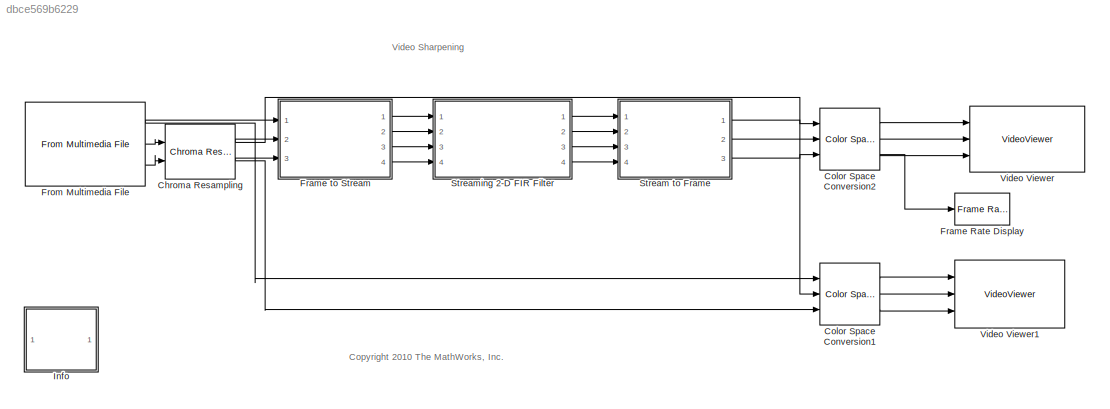
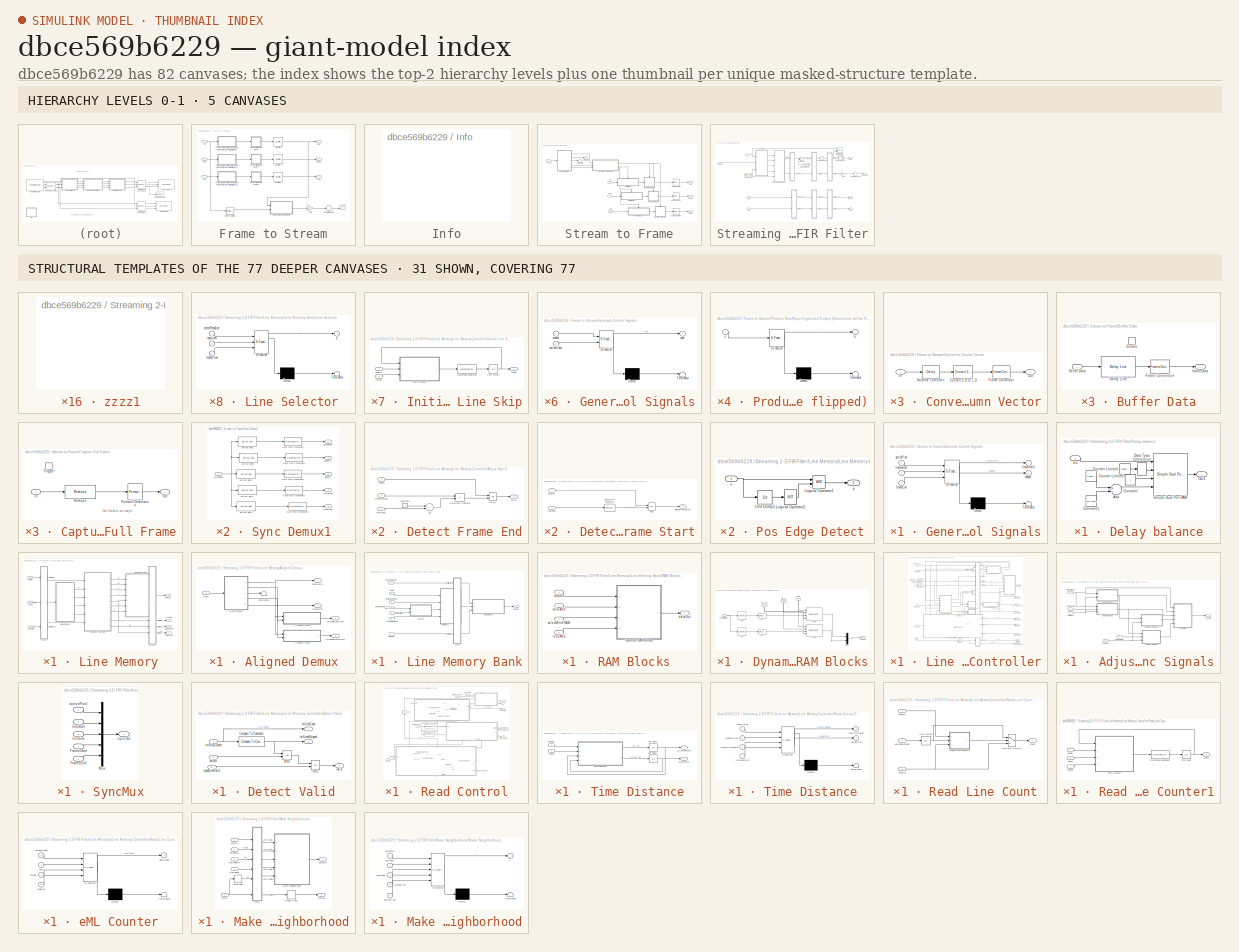
[diagram: thumbnail index - top-2 hierarchy levels (5 canvases) + 31 structural-template representatives of the remaining 77 canvases]
MODEL slx_dbce569b6229
KIND model
CONFIG AbsTol = auto
CONFIG EnableMultiTasking = off
CONFIG FixedStep = auto
CONFIG InitFcn = filter = fi(fspecial('unsharp'),1,16,12);\n\n% video size excluding the blanking periods\nfileName = get_param('fil_videosharp_sim/From Multimedia File',  'inputFilename');\nx=mmfileinfo(fileName);\nv = x.Video ;\nH = v.Height;\nW = v.Width;\n%H = 176;\n%W = 240;\nactiveVideoSize = [H W];\n\n% horizontal and vertical blanking\nhBlanking = 0;\nvBlanking = 0;
CONFIG MaxStep = auto
CONFIG MinStep = auto
CONFIG RelTol = 1e-3
CONFIG SampleTimeConstraint = Unconstrained
CONFIG Solver = VariableStepAuto
CONFIG SolverName = VariableStepAuto
CONFIG StartTime = 0.0
CONFIG StopTime = 10.0
BLOCK [Reference] Chroma Resampling  REF=visionconversions/Chroma
Resampling
  Ports = [2, 2]
  SourceBlock = visionconversions/Chroma\nResampling
  SourceProductBaseCode = VP
  SourceProductName = Computer Vision System Toolbox
  SourceType = Chroma Resampling
BLOCK [Reference] Color Space Conversion1  REF=visionconversions/Color Space
 Conversion
  Ports = [3, 3]
  SourceBlock = visionconversions/Color Space\n Conversion
  SourceProductBaseCode = VP
  SourceProductName = Computer Vision System Toolbox
  SourceType = Color Space Conversion
BLOCK [Reference] Color Space Conversion2  REF=visionconversions/Color Space
 Conversion
  Ports = [3, 3]
  SourceBlock = visionconversions/Color Space\n Conversion
  SourceProductBaseCode = VP
  SourceProductName = Computer Vision System Toolbox
  SourceType = Color Space Conversion
BLOCK [Reference] Frame Rate Display  REF=visionsinks/Frame Rate
Display
  Ports = [1]
  SourceBlock = visionsinks/Frame Rate\nDisplay
  SourceProductBaseCode = VP
  SourceProductName = Computer Vision System Toolbox
  SourceType = Frame Rate Display
BLOCK [SubSystem] Frame to Stream
  Ports = [3, 4]
  RequestExecContextInheritance = off
BLOCK [Inport] Frame to Stream/CbIn
  IconDisplay = Port number
  Port = 2
BLOCK [Outport] Frame to Stream/CbOut
  IconDisplay = Port number
  Port = 3
BLOCK [SubSystem] Frame to Stream/Convert to Column Vector
  Ports = [1, 1]
  RequestExecContextInheritance = off
BLOCK [Delay] Frame to Stream/Convert to Column Vector/Balance Latencies
  DelayLength = uint8(strcmpi(get_param(bdroot(gcbh),'SolverMode'), 'SingleTasking'))
  InitialCondition = 0
  InputPortMap = u0
  Ports = [1, 1]
  UseCircularBuffer = on
  UserDataPersistent = on
BLOCK [Reference] Frame to Stream/Convert to Column Vector/Convert 2-D to 1-D  REF=dspsigattribs/Convert 2-D to 1-D
  Ports = [1, 1]
  SourceBlock = dspsigattribs/Convert 2-D to 1-D
  SourceProductBaseCode = DS
  SourceProductName = DSP System Toolbox
  SourceType = Convert 2-D to 1-D
BLOCK [FrameConversion] Frame to Stream/Convert to Column Vector/Frame Conversion
  Ports = [1, 1]
BLOCK [Inport] Frame to Stream/Convert to Column Vector/In
  IconDisplay = Port number
BLOCK [Outport] Frame to Stream/Convert to Column Vector/Out
  IconDisplay = Port number
BLOCK [SubSystem] Frame to Stream/Convert to Column Vector1
  Ports = [1, 1]
  RequestExecContextInheritance = off
BLOCK [Delay] Frame to Stream/Convert to Column Vector1/Balance Latencies
  DelayLength = uint8(strcmpi(get_param(bdroot(gcbh),'SolverMode'), 'SingleTasking'))
  InitialCondition = 0
  InputPortMap = u0
  Ports = [1, 1]
  UseCircularBuffer = on
  UserDataPersistent = on
BLOCK [Reference] Frame to Stream/Convert to Column Vector1/Convert 2-D to 1-D  REF=dspsigattribs/Convert 2-D to 1-D
  Ports = [1, 1]
  SourceBlock = dspsigattribs/Convert 2-D to 1-D
  SourceProductBaseCode = DS
  SourceProductName = DSP System Toolbox
  SourceType = Convert 2-D to 1-D
BLOCK [FrameConversion] Frame to Stream/Convert to Column Vector1/Frame Conversion
  Ports = [1, 1]
BLOCK [Inport] Frame to Stream/Convert to Column Vector1/In
  IconDisplay = Port number
BLOCK [Outport] Frame to Stream/Convert to Column Vector1/Out
  IconDisplay = Port number
BLOCK [SubSystem] Frame to Stream/Convert to Column Vector2
  Ports = [1, 1]
  RequestExecContextInheritance = off
BLOCK [Delay] Frame to Stream/Convert to Column Vector2/Balance Latencies
  DelayLength = uint8(strcmpi(get_param(bdroot(gcbh),'SolverMode'), 'SingleTasking'))
  InitialCondition = 0
  InputPortMap = u0
  Ports = [1, 1]
  UseCircularBuffer = on
  UserDataPersistent = on
BLOCK [Reference] Frame to Stream/Convert to Column Vector2/Convert 2-D to 1-D  REF=dspsigattribs/Convert 2-D to 1-D
  Ports = [1, 1]
  SourceBlock = dspsigattribs/Convert 2-D to 1-D
  SourceProductBaseCode = DS
  SourceProductName = DSP System Toolbox
  SourceType = Convert 2-D to 1-D
BLOCK [FrameConversion] Frame to Stream/Convert to Column Vector2/Frame Conversion
  Ports = [1, 1]
BLOCK [Inport] Frame to Stream/Convert to Column Vector2/In
  IconDisplay = Port number
BLOCK [Outport] Frame to Stream/Convert to Column Vector2/Out
  IconDisplay = Port number
BLOCK [Inport] Frame to Stream/CrIn
  IconDisplay = Port number
  Port = 3
BLOCK [Outport] Frame to Stream/CrOut
  IconDisplay = Port number
  Port = 4
BLOCK [Gain] Frame to Stream/Gain
  Gain = [1,2,4,8,16]
  OutDataTypeStr = fixdt(0,5,0)
  ParamDataTypeStr = fixdt(0,5,0)
  SaturateOnIntegerOverflow = off
BLOCK [SubSystem] Frame to Stream/Generate Control Signals
  ErrorFcn = Stateflow.Translate.translate
  PermitHierarchicalResolution = ExplicitOnly
  Ports = [2, 1]
  RequestExecContextInheritance = off
  SFBlockType = MATLAB Function
  TreatAsAtomicUnit = on
BLOCK [Demux] Frame to Stream/Generate Control Signals/ Demux 
  Outputs = 1
  Ports = [1, 1]
BLOCK [S-Function] Frame to Stream/Generate Control Signals/ SFunction 
  EnableBusSupport = on
  FunctionName = sf_sfun
  Parameters = hBlanking,vBlanking
  PortCounts = [2 2]
  Ports = [2, 2]
  SFcnIsStateOwnerBlock = off
  SFunctionDeploymentMode = off
  Tag = Stateflow S-Function gm_fil_videosharp_sim 5
BLOCK [Terminator] Frame to Stream/Generate Control Signals/ Terminator 
BLOCK [Inport] Frame to Stream/Generate Control Signals/activeVideo
  IconDisplay = Port number
  Port = 2
BLOCK [Outport] Frame to Stream/Generate Control Signals/sync
  IconDisplay = Port number
BLOCK [Inport] Frame to Stream/Generate Control Signals/unused
  IconDisplay = Port number
BLOCK [SubSystem] Frame to Stream/Produce Row-Major Organized Output (Dimensions will be flipped)
  ErrorFcn = Stateflow.Translate.translate
  PermitHierarchicalResolution = ExplicitOnly
  Ports = [1, 1]
  RequestExecContextInheritance = off
  SFBlockType = MATLAB Function
  TreatAsAtomicUnit = on
BLOCK [Demux] Frame to Stream/Produce Row-Major Organized Output (Dimensions will be flipped)/ Demux 
  Outputs = 1
  Ports = [1, 1]
BLOCK [S-Function] Frame to Stream/Produce Row-Major Organized Output (Dimensions will be flipped)/ SFunction 
  EnableBusSupport = on
  FunctionName = sf_sfun
  Parameters = isInputRowMajor
  PortCounts = [1 2]
  Ports = [1, 2]
  SFcnIsStateOwnerBlock = off
  SFunctionDeploymentMode = off
  Tag = Stateflow S-Function gm_fil_videosharp_sim 1
BLOCK [Terminator] Frame to Stream/Produce Row-Major Organized Output (Dimensions will be flipped)/ Terminator 
BLOCK [Inport] Frame to Stream/Produce Row-Major Organized Output (Dimensions will be flipped)/u
  IconDisplay = Port number
BLOCK [Outport] Frame to Stream/Produce Row-Major Organized Output (Dimensions will be flipped)/y
  IconDisplay = Port number
BLOCK [SubSystem] Frame to Stream/Produce Row-Major Organized Output (Dimensions will be flipped)1
  ErrorFcn = Stateflow.Translate.translate
  PermitHierarchicalResolution = ExplicitOnly
  Ports = [1, 1]
  RequestExecContextInheritance = off
  SFBlockType = MATLAB Function
  TreatAsAtomicUnit = on
BLOCK [Demux] Frame to Stream/Produce Row-Major Organized Output (Dimensions will be flipped)1/ Demux 
  Outputs = 1
  Ports = [1, 1]
BLOCK [S-Function] Frame to Stream/Produce Row-Major Organized Output (Dimensions will be flipped)1/ SFunction 
  EnableBusSupport = on
  FunctionName = sf_sfun
  Parameters = isInputRowMajor
  PortCounts = [1 2]
  Ports = [1, 2]
  SFcnIsStateOwnerBlock = off
  SFunctionDeploymentMode = off
  Tag = Stateflow S-Function gm_fil_videosharp_sim 57
BLOCK [Terminator] Frame to Stream/Produce Row-Major Organized Output (Dimensions will be flipped)1/ Terminator 
BLOCK [Inport] Frame to Stream/Produce Row-Major Organized Output (Dimensions will be flipped)1/u
  IconDisplay = Port number
BLOCK [Outport] Frame to Stream/Produce Row-Major Organized Output (Dimensions will be flipped)1/y
  IconDisplay = Port number
BLOCK [SubSystem] Frame to Stream/Produce Row-Major Organized Output (Dimensions will be flipped)2
  ErrorFcn = Stateflow.Translate.translate
  PermitHierarchicalResolution = ExplicitOnly
  Ports = [1, 1]
  RequestExecContextInheritance = off
  SFBlockType = MATLAB Function
  TreatAsAtomicUnit = on
BLOCK [Demux] Frame to Stream/Produce Row-Major Organized Output (Dimensions will be flipped)2/ Demux 
  Outputs = 1
  Ports = [1, 1]
BLOCK [S-Function] Frame to Stream/Produce Row-Major Organized Output (Dimensions will be flipped)2/ SFunction 
  EnableBusSupport = on
  FunctionName = sf_sfun
  Parameters = isInputRowMajor
  PortCounts = [1 2]
  Ports = [1, 2]
  SFcnIsStateOwnerBlock = off
  SFunctionDeploymentMode = off
  Tag = Stateflow S-Function gm_fil_videosharp_sim 58
BLOCK [Terminator] Frame to Stream/Produce Row-Major Organized Output (Dimensions will be flipped)2/ Terminator 
BLOCK [Inport] Frame to Stream/Produce Row-Major Organized Output (Dimensions will be flipped)2/u
  IconDisplay = Port number
BLOCK [Outport] Frame to Stream/Produce Row-Major Organized Output (Dimensions will be flipped)2/y
  IconDisplay = Port number
BLOCK [RateTransition] Frame to Stream/Rate Transition2
  Deterministic = off
BLOCK [Sum] Frame to Stream/Sum of Elements
  InputSameDT = off
  Inputs = +
  OutDataTypeStr = fixdt(0,5,0)
  Ports = [1, 1]
  SaturateOnIntegerOverflow = off
BLOCK [Unbuffer] Frame to Stream/Unbuffer
  AttributesFormatString = Convert to  Pixel Stream
  Ports = [1, 1]
BLOCK [Unbuffer] Frame to Stream/Unbuffer1
  AttributesFormatString = Convert to  Pixel Stream
  Ports = [1, 1]
BLOCK [Unbuffer] Frame to Stream/Unbuffer2
  AttributesFormatString = Convert to  Pixel Stream
  Ports = [1, 1]
BLOCK [Inport] Frame to Stream/YIn
  IconDisplay = Port number
BLOCK [Outport] Frame to Stream/YOut
  IconDisplay = Port number
  Port = 2
BLOCK [Outport] Frame to Stream/syncOut
  IconDisplay = Port number
BLOCK [Reference] From Multimedia File  REF=dspvision/From Multimedia File
  Ports = [0, 3]
  SourceBlock = dspvision/From Multimedia File
  SourceProductBaseCode = VP
  SourceProductName = Computer Vision System Toolbox
  SourceType = From Multimedia File
BLOCK [SubSystem] Info
  OpenFcn = showdemo('fil_videosharp_sim');
  Ports = []
  RequestExecContextInheritance = off
BLOCK [SubSystem] Stream to Frame
  Ports = [4, 3]
  RequestExecContextInheritance = off
BLOCK [SubSystem] Stream to Frame/Buffer Data
  Ports = [1, 1, 1]
  RequestExecContextInheritance = off
  TreatAsAtomicUnit = on
BLOCK [Reference] Stream to Frame/Buffer Data/Delay Line  REF=dspbuff3/Delay Line
  Ports = [1, 1]
  SourceBlock = dspbuff3/Delay Line
  SourceProductBaseCode = DS
  SourceProductName = DSP System Toolbox
  SourceType = Delay Line
  UserDataPersistent = on
BLOCK [EnablePort] Stream to Frame/Buffer Data/Enable
  Ports = []
  PropagateVarSize = During execution
BLOCK [FrameConversion] Stream to Frame/Buffer Data/Frame Conversion
  OutFrame = Sample-based
  Ports = [1, 1]
BLOCK [Inport] Stream to Frame/Buffer Data/Serial Data
  IconDisplay = Port number
BLOCK [Outport] Stream to Frame/Buffer Data/frameData
  IconDisplay = Port number
BLOCK [SubSystem] Stream to Frame/Buffer Data1
  Ports = [1, 1, 1]
  RequestExecContextInheritance = off
  TreatAsAtomicUnit = on
BLOCK [Reference] Stream to Frame/Buffer Data1/Delay Line  REF=dspbuff3/Delay Line
  Ports = [1, 1]
  SourceBlock = dspbuff3/Delay Line
  SourceProductBaseCode = DS
  SourceProductName = DSP System Toolbox
  SourceType = Delay Line
  UserDataPersistent = on
BLOCK [EnablePort] Stream to Frame/Buffer Data1/Enable
  Ports = []
  PropagateVarSize = During execution
BLOCK [FrameConversion] Stream to Frame/Buffer Data1/Frame Conversion
  OutFrame = Sample-based
  Ports = [1, 1]
BLOCK [Inport] Stream to Frame/Buffer Data1/Serial Data
  IconDisplay = Port number
BLOCK [Outport] Stream to Frame/Buffer Data1/frameData
  IconDisplay = Port number
BLOCK [SubSystem] Stream to Frame/Buffer Data2
  Ports = [1, 1, 1]
  RequestExecContextInheritance = off
  TreatAsAtomicUnit = on
BLOCK [Reference] Stream to Frame/Buffer Data2/Delay Line  REF=dspbuff3/Delay Line
  Ports = [1, 1]
  SourceBlock = dspbuff3/Delay Line
  SourceProductBaseCode = DS
  SourceProductName = DSP System Toolbox
  SourceType = Delay Line
  UserDataPersistent = on
BLOCK [EnablePort] Stream to Frame/Buffer Data2/Enable
  Ports = []
  PropagateVarSize = During execution
BLOCK [FrameConversion] Stream to Frame/Buffer Data2/Frame Conversion
  OutFrame = Sample-based
  Ports = [1, 1]
BLOCK [Inport] Stream to Frame/Buffer Data2/Serial Data
  IconDisplay = Port number
BLOCK [Outport] Stream to Frame/Buffer Data2/frameData
  IconDisplay = Port number
BLOCK [SubSystem] Stream to Frame/Capture Full Frame
  Ports = [1, 1, 0, 1]
  RequestExecContextInheritance = off
BLOCK [Inport] Stream to Frame/Capture Full Frame/In
  IconDisplay = Port number
BLOCK [Outport] Stream to Frame/Capture Full Frame/Out
  IconDisplay = Port number
BLOCK [PermuteDimensions] Stream to Frame/Capture Full Frame/Permute Dimensions
BLOCK [Reshape] Stream to Frame/Capture Full Frame/Reshape
  OutputDimensionality = Customize
  OutputDimensions = fliplr(frameSize)
  Ports = [1, 1]
BLOCK [TriggerPort] Stream to Frame/Capture Full Frame/Trigger
  Ports = []
  StatesWhenEnabling = held
  VariantControl = (inherit)
BLOCK [SubSystem] Stream to Frame/Capture Full Frame1
  Ports = [1, 1, 0, 1]
  RequestExecContextInheritance = off
BLOCK [Inport] Stream to Frame/Capture Full Frame1/In
  IconDisplay = Port number
BLOCK [Outport] Stream to Frame/Capture Full Frame1/Out
  IconDisplay = Port number
BLOCK [PermuteDimensions] Stream to Frame/Capture Full Frame1/Permute Dimensions
BLOCK [Reshape] Stream to Frame/Capture Full Frame1/Reshape
  OutputDimensionality = Customize
  OutputDimensions = fliplr(frameSize)
  Ports = [1, 1]
BLOCK [TriggerPort] Stream to Frame/Capture Full Frame1/Trigger
  Ports = []
  StatesWhenEnabling = held
  VariantControl = (inherit)
BLOCK [SubSystem] Stream to Frame/Capture Full Frame2
  Ports = [1, 1, 0, 1]
  RequestExecContextInheritance = off
BLOCK [Inport] Stream to Frame/Capture Full Frame2/In
  IconDisplay = Port number
BLOCK [Outport] Stream to Frame/Capture Full Frame2/Out
  IconDisplay = Port number
BLOCK [PermuteDimensions] Stream to Frame/Capture Full Frame2/Permute Dimensions
BLOCK [Reshape] Stream to Frame/Capture Full Frame2/Reshape
  OutputDimensionality = Customize
  OutputDimensions = fliplr(frameSize)
  Ports = [1, 1]
BLOCK [TriggerPort] Stream to Frame/Capture Full Frame2/Trigger
  Ports = []
  StatesWhenEnabling = held
  VariantControl = (inherit)
BLOCK [Inport] Stream to Frame/CbIn
  IconDisplay = Port number
  Port = 3
BLOCK [Outport] Stream to Frame/CbOut
  IconDisplay = Port number
  Port = 2
BLOCK [Inport] Stream to Frame/CrIn
  IconDisplay = Port number
  Port = 4
BLOCK [Outport] Stream to Frame/CrOut
  IconDisplay = Port number
  Port = 3
BLOCK [SubSystem] Stream to Frame/Generate Control Signals
  ErrorFcn = Stateflow.Translate.translate
  PermitHierarchicalResolution = ExplicitOnly
  Ports = [3, 2]
  RequestExecContextInheritance = off
  SFBlockType = MATLAB Function
  TreatAsAtomicUnit = on
BLOCK [Demux] Stream to Frame/Generate Control Signals/ Demux 
  Outputs = 1
  Ports = [1, 1]
BLOCK [S-Function] Stream to Frame/Generate Control Signals/ SFunction 
  EnableBusSupport = on
  FunctionName = sf_sfun
  PortCounts = [3 3]
  Ports = [3, 3]
  SFcnIsStateOwnerBlock = off
  SFunctionDeploymentMode = off
  Tag = Stateflow S-Function gm_fil_videosharp_sim 3
BLOCK [Terminator] Stream to Frame/Generate Control Signals/ Terminator 
BLOCK [Inport] Stream to Frame/Generate Control Signals/activePixel
  IconDisplay = Port number
BLOCK [Outport] Stream to Frame/Generate Control Signals/enable
  IconDisplay = Port number
  Port = 2
BLOCK [Inport] Stream to Frame/Generate Control Signals/frameEnd
  IconDisplay = Port number
  Port = 3
BLOCK [Inport] Stream to Frame/Generate Control Signals/frameStart
  IconDisplay = Port number
  Port = 2
BLOCK [Outport] Stream to Frame/Generate Control Signals/frameValid
  IconDisplay = Port number
BLOCK [RateTransition] Stream to Frame/Rate Transition
  OutPortSampleTime = 1/24
BLOCK [RateTransition] Stream to Frame/Rate Transition1
  OutPortSampleTime = 1/24
BLOCK [RateTransition] Stream to Frame/Rate Transition2
  OutPortSampleTime = 1/24
BLOCK [SubSystem] Stream to Frame/Sync Demux1
  Ports = [1, 5]
  RequestExecContextInheritance = off
BLOCK [DataTypeConversion] Stream to Frame/Sync Demux1/Data Type Conversion
  OutDataTypeStr = boolean
  RndMeth = Floor
  SaturateOnIntegerOverflow = off
BLOCK [DataTypeConversion] Stream to Frame/Sync Demux1/Data Type Conversion1
  OutDataTypeStr = boolean
  RndMeth = Floor
  SaturateOnIntegerOverflow = off
BLOCK [DataTypeConversion] Stream to Frame/Sync Demux1/Data Type Conversion2
  OutDataTypeStr = boolean
  RndMeth = Floor
  SaturateOnIntegerOverflow = off
BLOCK [DataTypeConversion] Stream to Frame/Sync Demux1/Data Type Conversion3
  OutDataTypeStr = boolean
  RndMeth = Floor
  SaturateOnIntegerOverflow = off
BLOCK [DataTypeConversion] Stream to Frame/Sync Demux1/Data Type Conversion4
  OutDataTypeStr = boolean
  RndMeth = Floor
  SaturateOnIntegerOverflow = off
BLOCK [Reference] Stream to Frame/Sync Demux1/Extract Bits  REF=simulink/Logic and Bit
Operations/Extract Bits
  Ports = [1, 1]
  SourceBlock = simulink/Logic and Bit\nOperations/Extract Bits
  SourceProductBaseCode = SL
  SourceProductName = Simulink
  SourceType = Extract Bits
BLOCK [Reference] Stream to Frame/Sync Demux1/Extract Bits1  REF=simulink/Logic and Bit
Operations/Extract Bits
  Ports = [1, 1]
  SourceBlock = simulink/Logic and Bit\nOperations/Extract Bits
  SourceProductBaseCode = SL
  SourceProductName = Simulink
  SourceType = Extract Bits
BLOCK [Reference] Stream to Frame/Sync Demux1/Extract Bits2  REF=simulink/Logic and Bit
Operations/Extract Bits
  Ports = [1, 1]
  SourceBlock = simulink/Logic and Bit\nOperations/Extract Bits
  SourceProductBaseCode = SL
  SourceProductName = Simulink
  SourceType = Extract Bits
BLOCK [Reference] Stream to Frame/Sync Demux1/Extract Bits3  REF=simulink/Logic and Bit
Operations/Extract Bits
  Ports = [1, 1]
  SourceBlock = simulink/Logic and Bit\nOperations/Extract Bits
  SourceProductBaseCode = SL
  SourceProductName = Simulink
  SourceType = Extract Bits
BLOCK [Reference] Stream to Frame/Sync Demux1/Extract Bits4  REF=simulink/Logic and Bit
Operations/Extract Bits
  Ports = [1, 1]
  SourceBlock = simulink/Logic and Bit\nOperations/Extract Bits
  SourceProductBaseCode = SL
  SourceProductName = Simulink
  SourceType = Extract Bits
BLOCK [Outport] Stream to Frame/Sync Demux1/activePixel
  IconDisplay = Port number
BLOCK [Outport] Stream to Frame/Sync Demux1/frameEnd
  IconDisplay = Port number
  Port = 5
BLOCK [Outport] Stream to Frame/Sync Demux1/frameStart
  IconDisplay = Port number
  Port = 4
BLOCK [Outport] Stream to Frame/Sync Demux1/lineEnd
  IconDisplay = Port number
  Port = 3
BLOCK [Outport] Stream to Frame/Sync Demux1/lineStart
  IconDisplay = Port number
  Port = 2
BLOCK [Inport] Stream to Frame/Sync Demux1/syncSignals
  IconDisplay = Port number
BLOCK [Terminator] Stream to Frame/Terminator1
BLOCK [Terminator] Stream to Frame/Terminator2
BLOCK [Inport] Stream to Frame/YIn
  IconDisplay = Port number
  Port = 2
BLOCK [Outport] Stream to Frame/YOut
  IconDisplay = Port number
BLOCK [Inport] Stream to Frame/syncIn
  IconDisplay = Port number
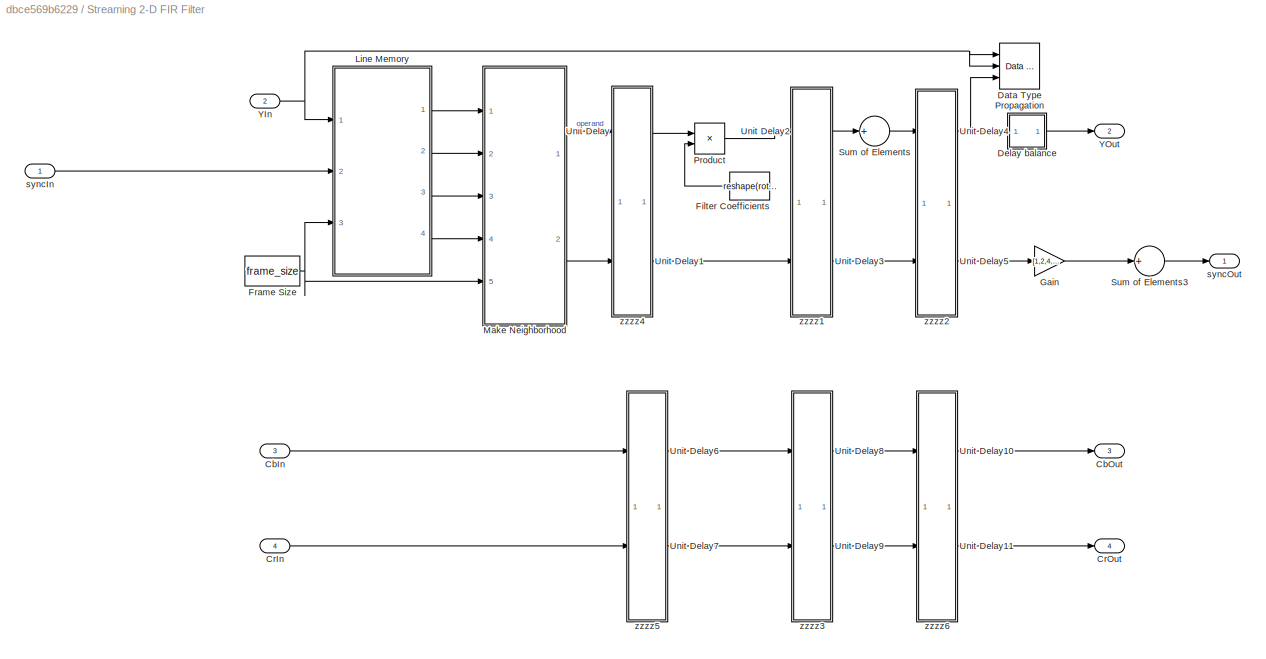
BLOCK [SubSystem] Streaming 2-D FIR Filter
  Ports = [4, 4]
  RequestExecContextInheritance = off
BLOCK [Inport] Streaming 2-D FIR Filter/CbIn
  IconDisplay = Port number
  Port = 3
BLOCK [Outport] Streaming 2-D FIR Filter/CbOut
  IconDisplay = Port number
  Port = 3
BLOCK [Inport] Streaming 2-D FIR Filter/CrIn
  IconDisplay = Port number
  Port = 4
BLOCK [Outport] Streaming 2-D FIR Filter/CrOut
  IconDisplay = Port number
  Port = 4
BLOCK [Reference] Streaming 2-D FIR Filter/Data Type Propagation  REF=simulink/Signal
Attributes/Data Type
Propagation
  Ports = [3]
  SourceBlock = simulink/Signal\nAttributes/Data Type\nPropagation
  SourceProductBaseCode = SL
  SourceProductName = Simulink
  SourceType = Data Type Propagation
BLOCK [SubSystem] Streaming 2-D FIR Filter/Delay balance
  Ports = [1, 1]
  RequestExecContextInheritance = off
BLOCK [Sum] Streaming 2-D FIR Filter/Delay balance/Add
  InputSameDT = off
  OutDataTypeStr = Inherit: Inherit via back propagation
  Ports = [2, 1]
  SaturateOnIntegerOverflow = off
BLOCK [Constant] Streaming 2-D FIR Filter/Delay balance/Constant
  OutDataTypeStr = boolean
BLOCK [Constant] Streaming 2-D FIR Filter/Delay balance/Constant1
  OutDataTypeStr = Inherit: Inherit via back propagation
  Value = 2^ceil(log2(H*W))-(W*(H-4)-9)
BLOCK [Reference] Streaming 2-D FIR Filter/Delay balance/Counter Limited  REF=simulink/Sources/Counter
Limited
  Ports = [0, 1]
  SourceBlock = simulink/Sources/Counter\nLimited
  SourceProductBaseCode = SL
  SourceProductName = Simulink
  SourceType = Counter Limited
BLOCK [Reference] Streaming 2-D FIR Filter/Delay balance/Counter Limited1  REF=simulink/Sources/Counter
Limited
  Ports = [0, 1]
  SourceBlock = simulink/Sources/Counter\nLimited
  SourceProductBaseCode = SL
  SourceProductName = Simulink
  SourceType = Counter Limited
BLOCK [DataTypeConversion] Streaming 2-D FIR Filter/Delay balance/Data Type Conversion
  RndMeth = Floor
  SaturateOnIntegerOverflow = off
BLOCK [Inport] Streaming 2-D FIR Filter/Delay balance/In1
  IconDisplay = Port number
BLOCK [Outport] Streaming 2-D FIR Filter/Delay balance/Out1
  IconDisplay = Port number
BLOCK [Reference] Streaming 2-D FIR Filter/Delay balance/Simple Dual Port RAM  REF=hdlsllib/HDL RAMs/Simple Dual Port RAM
  Ports = [4, 1]
  SourceBlock = hdlsllib/HDL RAMs/Simple Dual Port RAM
  SourceProductBaseCode = HD
  SourceProductName = HDL Coder
  SourceType = Simple Dual-port RAM
BLOCK [Constant] Streaming 2-D FIR Filter/Filter Coefficients
  Value = reshape(rot90(FILTCOEFF,2),1,size(FILTCOEFF,1)*size(FILTCOEFF,2))
BLOCK [Constant] Streaming 2-D FIR Filter/Frame Size
  OutDataTypeStr = uint16
  Value = frame_size
BLOCK [Gain] Streaming 2-D FIR Filter/Gain
  Gain = [1,2,4,8,16]
  OutDataTypeStr = fixdt(0,5,0)
  ParamDataTypeStr = fixdt(0,5,0)
  SaturateOnIntegerOverflow = off
BLOCK [SubSystem] Streaming 2-D FIR Filter/Line Memory
  Ports = [3, 4]
  RequestExecContextInheritance = off
BLOCK [SubSystem] Streaming 2-D FIR Filter/Line Memory/Aligned Demux
  Ports = [1, 4]
  RequestExecContextInheritance = off
BLOCK [SubSystem] Streaming 2-D FIR Filter/Line Memory/Aligned Demux/Aligned Pulse
  ErrorFcn = Stateflow.Translate.translate
  PermitHierarchicalResolution = ExplicitOnly
  Ports = [2, 1]
  RequestExecContextInheritance = off
  SFBlockType = MATLAB Function
  TreatAsAtomicUnit = on
BLOCK [Demux] Streaming 2-D FIR Filter/Line Memory/Aligned Demux/Aligned Pulse/ Demux 
  Outputs = 1
  Ports = [1, 1]
BLOCK [S-Function] Streaming 2-D FIR Filter/Line Memory/Aligned Demux/Aligned Pulse/ SFunction 
  EnableBusSupport = on
  FunctionName = sf_sfun
  PortCounts = [2 2]
  Ports = [2, 2]
  SFcnIsStateOwnerBlock = off
  SFunctionDeploymentMode = off
  Tag = Stateflow S-Function gm_fil_videosharp_sim 2
BLOCK [Terminator] Streaming 2-D FIR Filter/Line Memory/Aligned Demux/Aligned Pulse/ Terminator 
BLOCK [Outport] Streaming 2-D FIR Filter/Line Memory/Aligned Demux/Aligned Pulse/alignedPulse
  IconDisplay = Port number
BLOCK [Inport] Streaming 2-D FIR Filter/Line Memory/Aligned Demux/Aligned Pulse/earlyPulse
  IconDisplay = Port number
  Port = 2
BLOCK [Inport] Streaming 2-D FIR Filter/Line Memory/Aligned Demux/Aligned Pulse/valid
  IconDisplay = Port number
BLOCK [SubSystem] Streaming 2-D FIR Filter/Line Memory/Aligned Demux/Aligned Pulse1
  ErrorFcn = Stateflow.Translate.translate
  PermitHierarchicalResolution = ExplicitOnly
  Ports = [2, 1]
  RequestExecContextInheritance = off
  SFBlockType = MATLAB Function
  TreatAsAtomicUnit = on
BLOCK [Demux] Streaming 2-D FIR Filter/Line Memory/Aligned Demux/Aligned Pulse1/ Demux 
  Outputs = 1
  Ports = [1, 1]
BLOCK [S-Function] Streaming 2-D FIR Filter/Line Memory/Aligned Demux/Aligned Pulse1/ SFunction 
  EnableBusSupport = on
  FunctionName = sf_sfun
  PortCounts = [2 2]
  Ports = [2, 2]
  SFcnIsStateOwnerBlock = off
  SFunctionDeploymentMode = off
  Tag = Stateflow S-Function gm_fil_videosharp_sim 6
BLOCK [Terminator] Streaming 2-D FIR Filter/Line Memory/Aligned Demux/Aligned Pulse1/ Terminator 
BLOCK [Outport] Streaming 2-D FIR Filter/Line Memory/Aligned Demux/Aligned Pulse1/alignedPulse
  IconDisplay = Port number
BLOCK [Inport] Streaming 2-D FIR Filter/Line Memory/Aligned Demux/Aligned Pulse1/earlyPulse
  IconDisplay = Port number
  Port = 2
BLOCK [Inport] Streaming 2-D FIR Filter/Line Memory/Aligned Demux/Aligned Pulse1/valid
  IconDisplay = Port number
BLOCK [SubSystem] Streaming 2-D FIR Filter/Line Memory/Aligned Demux/Sync Demux
  Ports = [1, 5]
  RequestExecContextInheritance = off
BLOCK [DataTypeConversion] Streaming 2-D FIR Filter/Line Memory/Aligned Demux/Sync Demux/Data Type Conversion
  OutDataTypeStr = boolean
  RndMeth = Floor
  SaturateOnIntegerOverflow = off
BLOCK [DataTypeConversion] Streaming 2-D FIR Filter/Line Memory/Aligned Demux/Sync Demux/Data Type Conversion1
  OutDataTypeStr = boolean
  RndMeth = Floor
  SaturateOnIntegerOverflow = off
BLOCK [DataTypeConversion] Streaming 2-D FIR Filter/Line Memory/Aligned Demux/Sync Demux/Data Type Conversion2
  OutDataTypeStr = boolean
  RndMeth = Floor
  SaturateOnIntegerOverflow = off
BLOCK [DataTypeConversion] Streaming 2-D FIR Filter/Line Memory/Aligned Demux/Sync Demux/Data Type Conversion3
  OutDataTypeStr = boolean
  RndMeth = Floor
  SaturateOnIntegerOverflow = off
BLOCK [DataTypeConversion] Streaming 2-D FIR Filter/Line Memory/Aligned Demux/Sync Demux/Data Type Conversion4
  OutDataTypeStr = boolean
  RndMeth = Floor
  SaturateOnIntegerOverflow = off
BLOCK [Reference] Streaming 2-D FIR Filter/Line Memory/Aligned Demux/Sync Demux/Extract Bits  REF=simulink/Logic and Bit
Operations/Extract Bits
  Ports = [1, 1]
  SourceBlock = simulink/Logic and Bit\nOperations/Extract Bits
  SourceProductBaseCode = SL
  SourceProductName = Simulink
  SourceType = Extract Bits
BLOCK [Reference] Streaming 2-D FIR Filter/Line Memory/Aligned Demux/Sync Demux/Extract Bits1  REF=simulink/Logic and Bit
Operations/Extract Bits
  Ports = [1, 1]
  SourceBlock = simulink/Logic and Bit\nOperations/Extract Bits
  SourceProductBaseCode = SL
  SourceProductName = Simulink
  SourceType = Extract Bits
BLOCK [Reference] Streaming 2-D FIR Filter/Line Memory/Aligned Demux/Sync Demux/Extract Bits2  REF=simulink/Logic and Bit
Operations/Extract Bits
  Ports = [1, 1]
  SourceBlock = simulink/Logic and Bit\nOperations/Extract Bits
  SourceProductBaseCode = SL
  SourceProductName = Simulink
  SourceType = Extract Bits
BLOCK [Reference] Streaming 2-D FIR Filter/Line Memory/Aligned Demux/Sync Demux/Extract Bits3  REF=simulink/Logic and Bit
Operations/Extract Bits
  Ports = [1, 1]
  SourceBlock = simulink/Logic and Bit\nOperations/Extract Bits
  SourceProductBaseCode = SL
  SourceProductName = Simulink
  SourceType = Extract Bits
BLOCK [Reference] Streaming 2-D FIR Filter/Line Memory/Aligned Demux/Sync Demux/Extract Bits4  REF=simulink/Logic and Bit
Operations/Extract Bits
  Ports = [1, 1]
  SourceBlock = simulink/Logic and Bit\nOperations/Extract Bits
  SourceProductBaseCode = SL
  SourceProductName = Simulink
  SourceType = Extract Bits
BLOCK [Outport] Streaming 2-D FIR Filter/Line Memory/Aligned Demux/Sync Demux/activePixel
  IconDisplay = Port number
BLOCK [Outport] Streaming 2-D FIR Filter/Line Memory/Aligned Demux/Sync Demux/frameEnd
  IconDisplay = Port number
  Port = 5
BLOCK [Outport] Streaming 2-D FIR Filter/Line Memory/Aligned Demux/Sync Demux/frameStart
  IconDisplay = Port number
  Port = 4
BLOCK [Outport] Streaming 2-D FIR Filter/Line Memory/Aligned Demux/Sync Demux/lineEnd
  IconDisplay = Port number
  Port = 3
BLOCK [Outport] Streaming 2-D FIR Filter/Line Memory/Aligned Demux/Sync Demux/lineStart
  IconDisplay = Port number
  Port = 2
BLOCK [Inport] Streaming 2-D FIR Filter/Line Memory/Aligned Demux/Sync Demux/syncSignals
  IconDisplay = Port number
BLOCK [Terminator] Streaming 2-D FIR Filter/Line Memory/Aligned Demux/Terminator
BLOCK [Outport] Streaming 2-D FIR Filter/Line Memory/Aligned Demux/alignedFrameStart
  IconDisplay = Port number
  Port = 3
BLOCK [Outport] Streaming 2-D FIR Filter/Line Memory/Aligned Demux/alignedLineStart
  IconDisplay = Port number
  Port = 2
BLOCK [Outport] Streaming 2-D FIR Filter/Line Memory/Aligned Demux/dataValid
  IconDisplay = Port number
BLOCK [Outport] Streaming 2-D FIR Filter/Line Memory/Aligned Demux/frameEnd
  IconDisplay = Port number
  Port = 4
BLOCK [Inport] Streaming 2-D FIR Filter/Line Memory/Aligned Demux/synch
  IconDisplay = Port number
BLOCK [SubSystem] Streaming 2-D FIR Filter/Line Memory/Line Memory Bank
  Ports = [7, 1]
  RequestExecContextInheritance = off
BLOCK [SubSystem] Streaming 2-D FIR Filter/Line Memory/Line Memory Bank/Line Selector
  ErrorFcn = Stateflow.Translate.translate
  PermitHierarchicalResolution = ExplicitOnly
  Ports = [3, 1]
  RequestExecContextInheritance = off
  SFBlockType = MATLAB Function
  TreatAsAtomicUnit = on
BLOCK [Demux] Streaming 2-D FIR Filter/Line Memory/Line Memory Bank/Line Selector/ Demux 
  Outputs = 1
  Ports = [1, 1]
BLOCK [S-Function] Streaming 2-D FIR Filter/Line Memory/Line Memory Bank/Line Selector/ SFunction 
  EnableBusSupport = on
  FunctionName = sf_sfun
  PortCounts = [3 2]
  Ports = [3, 2]
  SFcnIsStateOwnerBlock = off
  SFunctionDeploymentMode = off
  Tag = Stateflow S-Function gm_fil_videosharp_sim 7
BLOCK [Terminator] Streaming 2-D FIR Filter/Line Memory/Line Memory Bank/Line Selector/ Terminator 
BLOCK [Inport] Streaming 2-D FIR Filter/Line Memory/Line Memory Bank/Line Selector/inputLines
  IconDisplay = Port number
  Port = 2
BLOCK [Inport] Streaming 2-D FIR Filter/Line Memory/Line Memory Bank/Line Selector/latestPixel
  IconDisplay = Port number
  Port = 3
BLOCK [Inport] Streaming 2-D FIR Filter/Line Memory/Line Memory Bank/Line Selector/selectReadLine
  IconDisplay = Port number
BLOCK [Outport] Streaming 2-D FIR Filter/Line Memory/Line Memory Bank/Line Selector/y
  IconDisplay = Port number
BLOCK [SubSystem] Streaming 2-D FIR Filter/Line Memory/Line Memory Bank/RAM Blocks 
  Ports = [4, 1]
  RequestExecContextInheritance = off
BLOCK [SubSystem] Streaming 2-D FIR Filter/Line Memory/Line Memory Bank/RAM Blocks /Dynamic RAM Blocks
  Ports = [4, 1]
  RequestExecContextInheritance = off
BLOCK [DataTypeConversion] Streaming 2-D FIR Filter/Line Memory/Line Memory Bank/RAM Blocks /Dynamic RAM Blocks/DC1
  OutDataTypeStr = boolean
  RndMeth = Floor
  SaturateOnIntegerOverflow = off
BLOCK [DataTypeConversion] Streaming 2-D FIR Filter/Line Memory/Line Memory Bank/RAM Blocks /Dynamic RAM Blocks/DC2
  OutDataTypeStr = boolean
  RndMeth = Floor
  SaturateOnIntegerOverflow = off
BLOCK [Reference] Streaming 2-D FIR Filter/Line Memory/Line Memory Bank/RAM Blocks /Dynamic RAM Blocks/RAM1  REF=hdlsllib/HDL RAMs/Simple Dual Port RAM
  Ports = [4, 1]
  SourceBlock = hdlsllib/HDL RAMs/Simple Dual Port RAM
  SourceProductBaseCode = HD
  SourceProductName = HDL Coder
  SourceType = Simple Dual-port RAM
BLOCK [Reference] Streaming 2-D FIR Filter/Line Memory/Line Memory Bank/RAM Blocks /Dynamic RAM Blocks/RAM2  REF=hdlsllib/HDL RAMs/Simple Dual Port RAM
  Ports = [4, 1]
  SourceBlock = hdlsllib/HDL RAMs/Simple Dual Port RAM
  SourceProductBaseCode = HD
  SourceProductName = HDL Coder
  SourceType = Simple Dual-port RAM
BLOCK [Inport] Streaming 2-D FIR Filter/Line Memory/Line Memory Bank/RAM Blocks /Dynamic RAM Blocks/dataIn
  IconDisplay = Port number
BLOCK [Outport] Streaming 2-D FIR Filter/Line Memory/Line Memory Bank/RAM Blocks /Dynamic RAM Blocks/dataOut
  IconDisplay = Port number
BLOCK [Mux] Streaming 2-D FIR Filter/Line Memory/Line Memory Bank/RAM Blocks /Dynamic RAM Blocks/rMUX
  DisplayOption = bar
  Inputs = 2
  Ports = [2, 1]
BLOCK [Inport] Streaming 2-D FIR Filter/Line Memory/Line Memory Bank/RAM Blocks /Dynamic RAM Blocks/readAdd
  IconDisplay = Port number
  Port = 4
BLOCK [Selector] Streaming 2-D FIR Filter/Line Memory/Line Memory Bank/RAM Blocks /Dynamic RAM Blocks/sel1
  IndexOptions = Index vector (dialog)
  Indices = [1]
  InputPortWidth = 2
  OutputSizes = 1
  Ports = [1, 1]
BLOCK [Selector] Streaming 2-D FIR Filter/Line Memory/Line Memory Bank/RAM Blocks /Dynamic RAM Blocks/sel2
  IndexOptions = Index vector (dialog)
  Indices = [2]
  InputPortWidth = 2
  OutputSizes = 1
  Ports = [1, 1]
BLOCK [Inport] Streaming 2-D FIR Filter/Line Memory/Line Memory Bank/RAM Blocks /Dynamic RAM Blocks/selectWriteRAM
  IconDisplay = Port number
  Port = 3
BLOCK [Inport] Streaming 2-D FIR Filter/Line Memory/Line Memory Bank/RAM Blocks /Dynamic RAM Blocks/writeAdd
  IconDisplay = Port number
  Port = 2
BLOCK [Inport] Streaming 2-D FIR Filter/Line Memory/Line Memory Bank/RAM Blocks /dataIn
  IconDisplay = Port number
BLOCK [Outport] Streaming 2-D FIR Filter/Line Memory/Line Memory Bank/RAM Blocks /dataOut
  IconDisplay = Port number
BLOCK [Inport] Streaming 2-D FIR Filter/Line Memory/Line Memory Bank/RAM Blocks /readAdd
  IconDisplay = Port number
  Port = 4
BLOCK [Inport] Streaming 2-D FIR Filter/Line Memory/Line Memory Bank/RAM Blocks /selectWriteRAM
  IconDisplay = Port number
  Port = 3
BLOCK [Inport] Streaming 2-D FIR Filter/Line Memory/Line Memory Bank/RAM Blocks /writeAdd
  IconDisplay = Port number
  Port = 2
BLOCK [UnitDelay] Streaming 2-D FIR Filter/Line Memory/Line Memory Bank/Unit Delay1
  HasFrameUpgradeWarning = on
  SampleTime = -1
BLOCK [UnitDelay] Streaming 2-D FIR Filter/Line Memory/Line Memory Bank/Unit Delay4
  HasFrameUpgradeWarning = on
  SampleTime = -1
BLOCK [Inport] Streaming 2-D FIR Filter/Line Memory/Line Memory Bank/dataIn
  IconDisplay = Port number
BLOCK [Outport] Streaming 2-D FIR Filter/Line Memory/Line Memory Bank/dataOut
  IconDisplay = Port number
BLOCK [SubSystem] Streaming 2-D FIR Filter/Line Memory/Line Memory Bank/decoder
  ErrorFcn = Stateflow.Translate.translate
  PermitHierarchicalResolution = ExplicitOnly
  Ports = [2, 1]
  RequestExecContextInheritance = off
  SFBlockType = MATLAB Function
  TreatAsAtomicUnit = on
BLOCK [Demux] Streaming 2-D FIR Filter/Line Memory/Line Memory Bank/decoder/ Demux 
  Outputs = 1
  Ports = [1, 1]
BLOCK [S-Function] Streaming 2-D FIR Filter/Line Memory/Line Memory Bank/decoder/ SFunction 
  EnableBusSupport = on
  FunctionName = sf_sfun
  Parameters = nL
  PortCounts = [2 2]
  Ports = [2, 2]
  SFcnIsStateOwnerBlock = off
  SFunctionDeploymentMode = off
  Tag = Stateflow S-Function gm_fil_videosharp_sim 8
BLOCK [Terminator] Streaming 2-D FIR Filter/Line Memory/Line Memory Bank/decoder/ Terminator 
BLOCK [Inport] Streaming 2-D FIR Filter/Line Memory/Line Memory Bank/decoder/selectWriteLine
  IconDisplay = Port number
BLOCK [Inport] Streaming 2-D FIR Filter/Line Memory/Line Memory Bank/decoder/writeValid
  IconDisplay = Port number
  Port = 2
BLOCK [Outport] Streaming 2-D FIR Filter/Line Memory/Line Memory Bank/decoder/y
  IconDisplay = Port number
BLOCK [Inport] Streaming 2-D FIR Filter/Line Memory/Line Memory Bank/latestPixel
  IconDisplay = Port number
  Port = 7
BLOCK [Inport] Streaming 2-D FIR Filter/Line Memory/Line Memory Bank/readColumnInex
  IconDisplay = Port number
  Port = 5
BLOCK [Inport] Streaming 2-D FIR Filter/Line Memory/Line Memory Bank/readLineIndices
  IconDisplay = Port number
  Port = 6
BLOCK [Inport] Streaming 2-D FIR Filter/Line Memory/Line Memory Bank/writeColumnIndex
  IconDisplay = Port number
  Port = 3
BLOCK [Inport] Streaming 2-D FIR Filter/Line Memory/Line Memory Bank/writeLineMemoryIndex
  IconDisplay = Port number
  Port = 4
BLOCK [Inport] Streaming 2-D FIR Filter/Line Memory/Line Memory Bank/writeValidIn
  IconDisplay = Port number
  Port = 2
BLOCK [SubSystem] Streaming 2-D FIR Filter/Line Memory/Line Memory Bank/zzzz2
  AttributesFormatString = Delay balancing
  Ports = []
  RequestExecContextInheritance = off
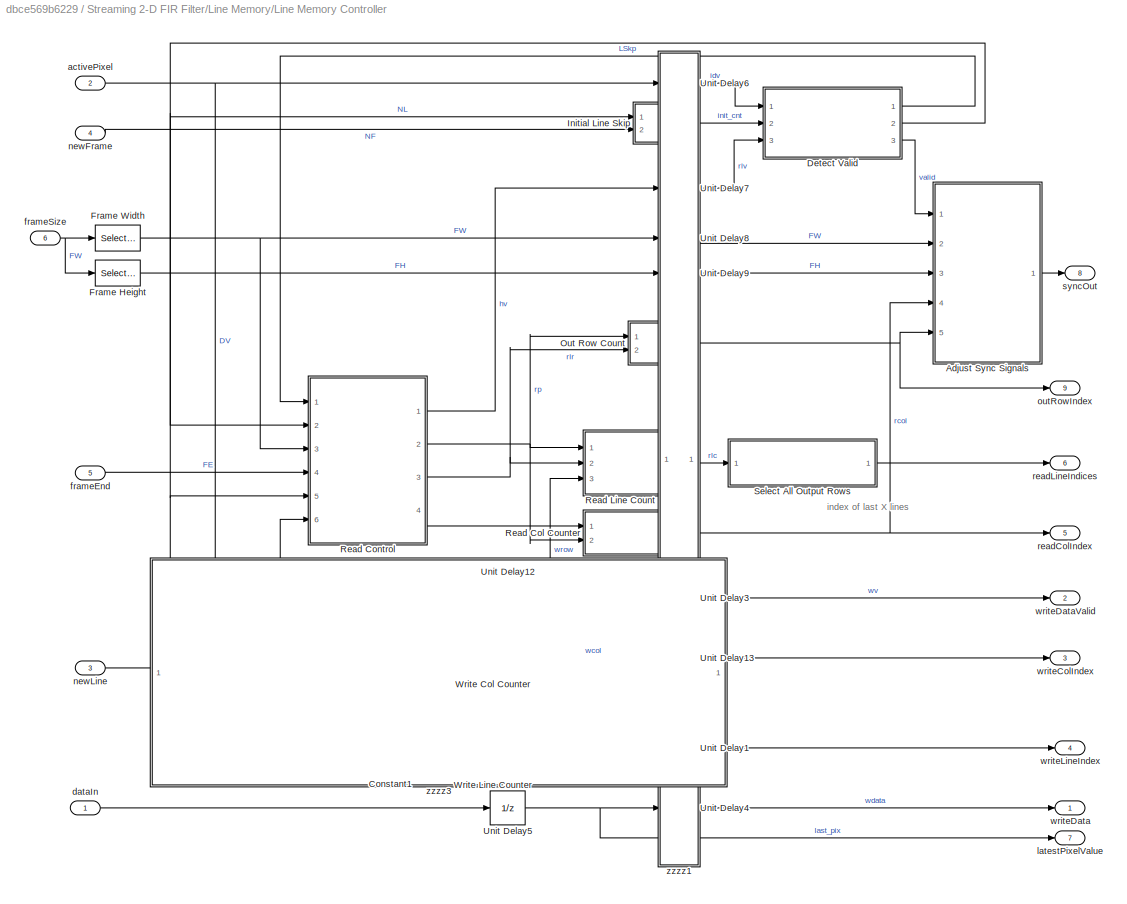
BLOCK [SubSystem] Streaming 2-D FIR Filter/Line Memory/Line Memory Controller
  Ports = [6, 9]
  RequestExecContextInheritance = off
BLOCK [SubSystem] Streaming 2-D FIR Filter/Line Memory/Line Memory Controller/Adjust Sync Signals
  Ports = [5, 1]
  RequestExecContextInheritance = off
BLOCK [SubSystem] Streaming 2-D FIR Filter/Line Memory/Line Memory Controller/Adjust Sync Signals/Detect Frame End
  Ports = [3, 1]
  RequestExecContextInheritance = off
BLOCK [Logic] Streaming 2-D FIR Filter/Line Memory/Line Memory Controller/Adjust Sync Signals/Detect Frame End/AND1
  AllPortsSameDT = off
  IconShape = distinctive
  OutDataTypeStr = boolean
  Ports = [2, 1]
BLOCK [Sum] Streaming 2-D FIR Filter/Line Memory/Line Memory Controller/Adjust Sync Signals/Detect Frame End/Add
  InputSameDT = off
  OutDataTypeStr = Inherit: Inherit via internal rule
  Ports = [2, 1]
  SaturateOnIntegerOverflow = off
BLOCK [Constant] Streaming 2-D FIR Filter/Line Memory/Line Memory Controller/Adjust Sync Signals/Detect Frame End/Constant2
  OutDataTypeStr = Inherit: Inherit via back propagation
BLOCK [RelationalOperator] Streaming 2-D FIR Filter/Line Memory/Line Memory Controller/Adjust Sync Signals/Detect Frame End/Relational Operator
  InputSameDT = off
  Operator = ==
  OutDataTypeStr = boolean
  Ports = [2, 1]
BLOCK [Inport] Streaming 2-D FIR Filter/Line Memory/Line Memory Controller/Adjust Sync Signals/Detect Frame End/frameHeight
  IconDisplay = Port number
  Port = 2
BLOCK [Inport] Streaming 2-D FIR Filter/Line Memory/Line Memory Controller/Adjust Sync Signals/Detect Frame End/lineEnd
  IconDisplay = Port number
BLOCK [Inport] Streaming 2-D FIR Filter/Line Memory/Line Memory Controller/Adjust Sync Signals/Detect Frame End/rowIndex
  IconDisplay = Port number
  Port = 3
BLOCK [Outport] Streaming 2-D FIR Filter/Line Memory/Line Memory Controller/Adjust Sync Signals/Detect Frame End/valid
  IconDisplay = Port number
BLOCK [SubSystem] Streaming 2-D FIR Filter/Line Memory/Line Memory Controller/Adjust Sync Signals/Detect Frame Start
  Ports = [2, 1]
  RequestExecContextInheritance = off
BLOCK [Logic] Streaming 2-D FIR Filter/Line Memory/Line Memory Controller/Adjust Sync Signals/Detect Frame Start/AND1
  AllPortsSameDT = off
  IconShape = distinctive
  OutDataTypeStr = boolean
  Ports = [2, 1]
BLOCK [Reference] Streaming 2-D FIR Filter/Line Memory/Line Memory Controller/Adjust Sync Signals/Detect Frame Start/Compare To Constant1  REF=simulink/Logic and Bit
Operations/Compare
To Constant
  Ports = [1, 1]
  SourceBlock = simulink/Logic and Bit\nOperations/Compare\nTo Constant
  SourceProductBaseCode = SL
  SourceProductName = Simulink
  SourceType = Compare To Constant
BLOCK [Outport] Streaming 2-D FIR Filter/Line Memory/Line Memory Controller/Adjust Sync Signals/Detect Frame Start/alignedFrameStart
  IconDisplay = Port number
BLOCK [Inport] Streaming 2-D FIR Filter/Line Memory/Line Memory Controller/Adjust Sync Signals/Detect Frame Start/lineStart
  IconDisplay = Port number
BLOCK [Inport] Streaming 2-D FIR Filter/Line Memory/Line Memory Controller/Adjust Sync Signals/Detect Frame Start/rowIndex
  IconDisplay = Port number
  Port = 2
BLOCK [SubSystem] Streaming 2-D FIR Filter/Line Memory/Line Memory Controller/Adjust Sync Signals/Detect Line End
  Ports = [3, 1]
  RequestExecContextInheritance = off
BLOCK [Logic] Streaming 2-D FIR Filter/Line Memory/Line Memory Controller/Adjust Sync Signals/Detect Line End/AND1
  AllPortsSameDT = off
  IconShape = distinctive
  OutDataTypeStr = boolean
  Ports = [2, 1]
BLOCK [Sum] Streaming 2-D FIR Filter/Line Memory/Line Memory Controller/Adjust Sync Signals/Detect Line End/Add
  InputSameDT = off
  OutDataTypeStr = Inherit: Inherit via internal rule
  Ports = [2, 1]
  SaturateOnIntegerOverflow = off
BLOCK [Constant] Streaming 2-D FIR Filter/Line Memory/Line Memory Controller/Adjust Sync Signals/Detect Line End/Constant2
  OutDataTypeStr = Inherit: Inherit via back propagation
BLOCK [RelationalOperator] Streaming 2-D FIR Filter/Line Memory/Line Memory Controller/Adjust Sync Signals/Detect Line End/Relational Operator
  InputSameDT = off
  Operator = ==
  OutDataTypeStr = boolean
  Ports = [2, 1]
BLOCK [Inport] Streaming 2-D FIR Filter/Line Memory/Line Memory Controller/Adjust Sync Signals/Detect Line End/colIndex
  IconDisplay = Port number
  Port = 3
BLOCK [Inport] Streaming 2-D FIR Filter/Line Memory/Line Memory Controller/Adjust Sync Signals/Detect Line End/dataValidOut
  IconDisplay = Port number
BLOCK [Inport] Streaming 2-D FIR Filter/Line Memory/Line Memory Controller/Adjust Sync Signals/Detect Line End/frameWidth
  IconDisplay = Port number
  Port = 2
BLOCK [Outport] Streaming 2-D FIR Filter/Line Memory/Line Memory Controller/Adjust Sync Signals/Detect Line End/lineEnd
  IconDisplay = Port number
BLOCK [SubSystem] Streaming 2-D FIR Filter/Line Memory/Line Memory Controller/Adjust Sync Signals/Detect Line Start
  Ports = [2, 1]
  RequestExecContextInheritance = off
BLOCK [Logic] Streaming 2-D FIR Filter/Line Memory/Line Memory Controller/Adjust Sync Signals/Detect Line Start/AND1
  AllPortsSameDT = off
  OutDataTypeStr = boolean
  Ports = [2, 1]
BLOCK [Reference] Streaming 2-D FIR Filter/Line Memory/Line Memory Controller/Adjust Sync Signals/Detect Line Start/Compare To Constant1  REF=simulink/Logic and Bit
Operations/Compare
To Constant
  Ports = [1, 1]
  SourceBlock = simulink/Logic and Bit\nOperations/Compare\nTo Constant
  SourceProductBaseCode = SL
  SourceProductName = Simulink
  SourceType = Compare To Constant
BLOCK [Outport] Streaming 2-D FIR Filter/Line Memory/Line Memory Controller/Adjust Sync Signals/Detect Line Start/alignedLineStart
  IconDisplay = Port number
BLOCK [Inport] Streaming 2-D FIR Filter/Line Memory/Line Memory Controller/Adjust Sync Signals/Detect Line Start/colIndex
  IconDisplay = Port number
  Port = 2
BLOCK [Inport] Streaming 2-D FIR Filter/Line Memory/Line Memory Controller/Adjust Sync Signals/Detect Line Start/dataValidOut
  IconDisplay = Port number
BLOCK [SubSystem] Streaming 2-D FIR Filter/Line Memory/Line Memory Controller/Adjust Sync Signals/SyncMux
  Ports = [5, 1]
  RequestExecContextInheritance = off
BLOCK [Inport] Streaming 2-D FIR Filter/Line Memory/Line Memory Controller/Adjust Sync Signals/SyncMux/FrameEnd
  IconDisplay = Port number
  Port = 5
BLOCK [Inport] Streaming 2-D FIR Filter/Line Memory/Line Memory Controller/Adjust Sync Signals/SyncMux/FrameStart
  IconDisplay = Port number
  Port = 4
BLOCK [Mux] Streaming 2-D FIR Filter/Line Memory/Line Memory Controller/Adjust Sync Signals/SyncMux/Mux
  DisplayOption = bar
  Inputs = 5
  Ports = [5, 1]
BLOCK [Inport] Streaming 2-D FIR Filter/Line Memory/Line Memory Controller/Adjust Sync Signals/SyncMux/activePixel
  IconDisplay = Port number
BLOCK [Inport] Streaming 2-D FIR Filter/Line Memory/Line Memory Controller/Adjust Sync Signals/SyncMux/lineEnd
  IconDisplay = Port number
  Port = 3
BLOCK [Inport] Streaming 2-D FIR Filter/Line Memory/Line Memory Controller/Adjust Sync Signals/SyncMux/lineStart
  IconDisplay = Port number
  Port = 2
BLOCK [Outport] Streaming 2-D FIR Filter/Line Memory/Line Memory Controller/Adjust Sync Signals/SyncMux/syncOut
  IconDisplay = Port number
BLOCK [Inport] Streaming 2-D FIR Filter/Line Memory/Line Memory Controller/Adjust Sync Signals/colIndex
  IconDisplay = Port number
  Port = 4
BLOCK [Inport] Streaming 2-D FIR Filter/Line Memory/Line Memory Controller/Adjust Sync Signals/dataValidOut
  IconDisplay = Port number
BLOCK [Inport] Streaming 2-D FIR Filter/Line Memory/Line Memory Controller/Adjust Sync Signals/frameHeight
  IconDisplay = Port number
  Port = 3
BLOCK [Inport] Streaming 2-D FIR Filter/Line Memory/Line Memory Controller/Adjust Sync Signals/frameWidth
  IconDisplay = Port number
  Port = 2
BLOCK [Inport] Streaming 2-D FIR Filter/Line Memory/Line Memory Controller/Adjust Sync Signals/rowIndex
  IconDisplay = Port number
  Port = 5
BLOCK [Outport] Streaming 2-D FIR Filter/Line Memory/Line Memory Controller/Adjust Sync Signals/syncOut
  IconDisplay = Port number
BLOCK [Constant] Streaming 2-D FIR Filter/Line Memory/Line Memory Controller/Constant1
  OutDataTypeStr = boolean
  Value = 0
BLOCK [SubSystem] Streaming 2-D FIR Filter/Line Memory/Line Memory Controller/Detect Valid
  Ports = [3, 3]
  RequestExecContextInheritance = off
BLOCK [Logic] Streaming 2-D FIR Filter/Line Memory/Line Memory Controller/Detect Valid/AND
  AllPortsSameDT = off
  OutDataTypeStr = boolean
  Ports = [2, 1]
BLOCK [Reference] Streaming 2-D FIR Filter/Line Memory/Line Memory Controller/Detect Valid/Compare To Constant1  REF=simulink/Logic and Bit
Operations/Compare
To Constant
  Ports = [1, 1]
  SourceBlock = simulink/Logic and Bit\nOperations/Compare\nTo Constant
  SourceProductBaseCode = SL
  SourceProductName = Simulink
  SourceType = Compare To Constant
BLOCK [Logic] Streaming 2-D FIR Filter/Line Memory/Line Memory Controller/Detect Valid/OR2
  AllPortsSameDT = off
  Operator = OR
  OutDataTypeStr = boolean
  Ports = [2, 1]
BLOCK [Outport] Streaming 2-D FIR Filter/Line Memory/Line Memory Controller/Detect Valid/initLineCount
  IconDisplay = Port number
BLOCK [Outport] Streaming 2-D FIR Filter/Line Memory/Line Memory Controller/Detect Valid/initLinesSkipped
  IconDisplay = Port number
  Port = 2
BLOCK [Inport] Streaming 2-D FIR Filter/Line Memory/Line Memory Controller/Detect Valid/initSkipCounter
  IconDisplay = Port number
  Port = 2
BLOCK [Inport] Streaming 2-D FIR Filter/Line Memory/Line Memory Controller/Detect Valid/repeatLineValid
  IconDisplay = Port number
  Port = 3
BLOCK [Outport] Streaming 2-D FIR Filter/Line Memory/Line Memory Controller/Detect Valid/valid
  IconDisplay = Port number
  Port = 3
BLOCK [Inport] Streaming 2-D FIR Filter/Line Memory/Line Memory Controller/Detect Valid/validIn
  IconDisplay = Port number
BLOCK [Selector] Streaming 2-D FIR Filter/Line Memory/Line Memory Controller/Frame Height
  IndexOptions = Index vector (dialog)
  Indices = [1]
  InputPortWidth = 2
  OutputSizes = 1
  Ports = [1, 1]
BLOCK [Selector] Streaming 2-D FIR Filter/Line Memory/Line Memory Controller/Frame Width
  IndexOptions = Index vector (dialog)
  Indices = [2]
  InputPortWidth = 2
  OutputSizes = 1
  Ports = [1, 1]
BLOCK [SubSystem] Streaming 2-D FIR Filter/Line Memory/Line Memory Controller/Initial Line Skip
  Ports = [2, 1]
  RequestExecContextInheritance = off
BLOCK [DataTypeConversion] Streaming 2-D FIR Filter/Line Memory/Line Memory Controller/Initial Line Skip/DataTypeConversion
  OutDataTypeStr = fixdt(SIGN==1,((WLTYPE==1) * ( ceil(log2(MAX_VAL-MIN_VAL+1)) + double(SIGN==1) ) ) + ((WLTYPE~=1)* WL ),0)
  RndMeth = Floor
  SaturateOnIntegerOverflow = off
BLOCK [UnitDelay] Streaming 2-D FIR Filter/Line Memory/Line Memory Controller/Initial Line Skip/Unit Delay
  HasFrameUpgradeWarning = on
  InitialCondition = INIT_VAL
  SampleTime = -1
BLOCK [Outport] Streaming 2-D FIR Filter/Line Memory/Line Memory Controller/Initial Line Skip/count
  IconDisplay = Port number
BLOCK [SubSystem] Streaming 2-D FIR Filter/Line Memory/Line Memory Controller/Initial Line Skip/eML Counter
  ErrorFcn = Stateflow.Translate.translate
  PermitHierarchicalResolution = ExplicitOnly
  Ports = [3, 1]
  RequestExecContextInheritance = off
  SFBlockType = MATLAB Function
  TreatAsAtomicUnit = on
BLOCK [Demux] Streaming 2-D FIR Filter/Line Memory/Line Memory Controller/Initial Line Skip/eML Counter/ Demux 
  Outputs = 1
  Ports = [1, 1]
BLOCK [S-Function] Streaming 2-D FIR Filter/Line Memory/Line Memory Controller/Initial Line Skip/eML Counter/ SFunction 
  EnableBusSupport = on
  FunctionName = sf_sfun
  Parameters = INIT_VAL,MAX_VAL,MIN_VAL,RELOADTYPE,RELOAD_VAL,ROLLTYPE,ROLL_VAL,SIGN,STEP_VAL,STOPTYPE,STOP_VAL,WL,WLTYPE
  PortCounts = [3 2]
  Ports = [3, 2]
  SFcnIsStateOwnerBlock = off
  SFunctionDeploymentMode = off
  Tag = Stateflow S-Function gm_fil_videosharp_sim 9
BLOCK [Terminator] Streaming 2-D FIR Filter/Line Memory/Line Memory Controller/Initial Line Skip/eML Counter/ Terminator 
BLOCK [Inport] Streaming 2-D FIR Filter/Line Memory/Line Memory Controller/Initial Line Skip/eML Counter/currentCount
  IconDisplay = Port number
BLOCK [Inport] Streaming 2-D FIR Filter/Line Memory/Line Memory Controller/Initial Line Skip/eML Counter/enb
  IconDisplay = Port number
  Port = 2
BLOCK [Outport] Streaming 2-D FIR Filter/Line Memory/Line Memory Controller/Initial Line Skip/eML Counter/nextCount
  IconDisplay = Port number
BLOCK [Inport] Streaming 2-D FIR Filter/Line Memory/Line Memory Controller/Initial Line Skip/eML Counter/reload
  IconDisplay = Port number
  Port = 3
BLOCK [Inport] Streaming 2-D FIR Filter/Line Memory/Line Memory Controller/Initial Line Skip/enable
  IconDisplay = Port number
BLOCK [Inport] Streaming 2-D FIR Filter/Line Memory/Line Memory Controller/Initial Line Skip/reload
  IconDisplay = Port number
  Port = 2
BLOCK [SubSystem] Streaming 2-D FIR Filter/Line Memory/Line Memory Controller/Out Row Count
  Ports = [2, 1]
  RequestExecContextInheritance = off
BLOCK [DataTypeConversion] Streaming 2-D FIR Filter/Line Memory/Line Memory Controller/Out Row Count/DataTypeConversion
  OutDataTypeStr = fixdt(SIGN==1,((WLTYPE==1) * ( ceil(log2(MAX_VAL-MIN_VAL+1)) + double(SIGN==1) ) ) + ((WLTYPE~=1)* WL ),0)
  RndMeth = Floor
  SaturateOnIntegerOverflow = off
BLOCK [UnitDelay] Streaming 2-D FIR Filter/Line Memory/Line Memory Controller/Out Row Count/Unit Delay
  HasFrameUpgradeWarning = on
  InitialCondition = INIT_VAL
  SampleTime = -1
BLOCK [Outport] Streaming 2-D FIR Filter/Line Memory/Line Memory Controller/Out Row Count/count
  IconDisplay = Port number
BLOCK [SubSystem] Streaming 2-D FIR Filter/Line Memory/Line Memory Controller/Out Row Count/eML Counter
  ErrorFcn = Stateflow.Translate.translate
  PermitHierarchicalResolution = ExplicitOnly
  Ports = [3, 1]
  RequestExecContextInheritance = off
  SFBlockType = MATLAB Function
  TreatAsAtomicUnit = on
BLOCK [Demux] Streaming 2-D FIR Filter/Line Memory/Line Memory Controller/Out Row Count/eML Counter/ Demux 
  Outputs = 1
  Ports = [1, 1]
BLOCK [S-Function] Streaming 2-D FIR Filter/Line Memory/Line Memory Controller/Out Row Count/eML Counter/ SFunction 
  EnableBusSupport = on
  FunctionName = sf_sfun
  Parameters = INIT_VAL,MAX_VAL,MIN_VAL,RELOADTYPE,RELOAD_VAL,ROLLTYPE,ROLL_VAL,SIGN,STEP_VAL,STOPTYPE,STOP_VAL,WL,WLTYPE
  PortCounts = [3 2]
  Ports = [3, 2]
  SFcnIsStateOwnerBlock = off
  SFunctionDeploymentMode = off
  Tag = Stateflow S-Function gm_fil_videosharp_sim 10
BLOCK [Terminator] Streaming 2-D FIR Filter/Line Memory/Line Memory Controller/Out Row Count/eML Counter/ Terminator 
BLOCK [Inport] Streaming 2-D FIR Filter/Line Memory/Line Memory Controller/Out Row Count/eML Counter/currentCount
  IconDisplay = Port number
BLOCK [Inport] Streaming 2-D FIR Filter/Line Memory/Line Memory Controller/Out Row Count/eML Counter/enb
  IconDisplay = Port number
  Port = 2
BLOCK [Outport] Streaming 2-D FIR Filter/Line Memory/Line Memory Controller/Out Row Count/eML Counter/nextCount
  IconDisplay = Port number
BLOCK [Inport] Streaming 2-D FIR Filter/Line Memory/Line Memory Controller/Out Row Count/eML Counter/reload
  IconDisplay = Port number
  Port = 3
BLOCK [Inport] Streaming 2-D FIR Filter/Line Memory/Line Memory Controller/Out Row Count/enable
  IconDisplay = Port number
BLOCK [Inport] Streaming 2-D FIR Filter/Line Memory/Line Memory Controller/Out Row Count/reload
  IconDisplay = Port number
  Port = 2
BLOCK [SubSystem] Streaming 2-D FIR Filter/Line Memory/Line Memory Controller/Read Col Counter
  Ports = [2, 1]
  RequestExecContextInheritance = off
BLOCK [DataTypeConversion] Streaming 2-D FIR Filter/Line Memory/Line Memory Controller/Read Col Counter/DataTypeConversion
  OutDataTypeStr = fixdt(SIGN==1,((WLTYPE==1) * ( ceil(log2(MAX_VAL-MIN_VAL+1)) + double(SIGN==1) ) ) + ((WLTYPE~=1)* WL ),0)
  RndMeth = Floor
  SaturateOnIntegerOverflow = off
BLOCK [UnitDelay] Streaming 2-D FIR Filter/Line Memory/Line Memory Controller/Read Col Counter/Unit Delay
  HasFrameUpgradeWarning = on
  InitialCondition = INIT_VAL
  SampleTime = -1
BLOCK [Outport] Streaming 2-D FIR Filter/Line Memory/Line Memory Controller/Read Col Counter/count
  IconDisplay = Port number
BLOCK [SubSystem] Streaming 2-D FIR Filter/Line Memory/Line Memory Controller/Read Col Counter/eML Counter
  ErrorFcn = Stateflow.Translate.translate
  PermitHierarchicalResolution = ExplicitOnly
  Ports = [3, 1]
  RequestExecContextInheritance = off
  SFBlockType = MATLAB Function
  TreatAsAtomicUnit = on
BLOCK [Demux] Streaming 2-D FIR Filter/Line Memory/Line Memory Controller/Read Col Counter/eML Counter/ Demux 
  Outputs = 1
  Ports = [1, 1]
BLOCK [S-Function] Streaming 2-D FIR Filter/Line Memory/Line Memory Controller/Read Col Counter/eML Counter/ SFunction 
  EnableBusSupport = on
  FunctionName = sf_sfun
  Parameters = INIT_VAL,MAX_VAL,MIN_VAL,RELOADTYPE,RELOAD_VAL,ROLLTYPE,ROLL_VAL,SIGN,STEP_VAL,STOPTYPE,STOP_VAL,WL,WLTYPE
  PortCounts = [3 2]
  Ports = [3, 2]
  SFcnIsStateOwnerBlock = off
  SFunctionDeploymentMode = off
  Tag = Stateflow S-Function gm_fil_videosharp_sim 11
BLOCK [Terminator] Streaming 2-D FIR Filter/Line Memory/Line Memory Controller/Read Col Counter/eML Counter/ Terminator 
BLOCK [Inport] Streaming 2-D FIR Filter/Line Memory/Line Memory Controller/Read Col Counter/eML Counter/currentCount
  IconDisplay = Port number
BLOCK [Inport] Streaming 2-D FIR Filter/Line Memory/Line Memory Controller/Read Col Counter/eML Counter/enb
  IconDisplay = Port number
  Port = 2
BLOCK [Outport] Streaming 2-D FIR Filter/Line Memory/Line Memory Controller/Read Col Counter/eML Counter/nextCount
  IconDisplay = Port number
BLOCK [Inport] Streaming 2-D FIR Filter/Line Memory/Line Memory Controller/Read Col Counter/eML Counter/reload
  IconDisplay = Port number
  Port = 3
BLOCK [Inport] Streaming 2-D FIR Filter/Line Memory/Line Memory Controller/Read Col Counter/enable
  IconDisplay = Port number
BLOCK [Inport] Streaming 2-D FIR Filter/Line Memory/Line Memory Controller/Read Col Counter/reload
  IconDisplay = Port number
  Port = 2
BLOCK [SubSystem] Streaming 2-D FIR Filter/Line Memory/Line Memory Controller/Read Control
  Ports = [6, 4]
  RequestExecContextInheritance = off
BLOCK [Logic] Streaming 2-D FIR Filter/Line Memory/Line Memory Controller/Read Control/AND1
  AllPortsSameDT = off
  Operator = OR
  OutDataTypeStr = boolean
  Ports = [2, 1]
BLOCK [Logic] Streaming 2-D FIR Filter/Line Memory/Line Memory Controller/Read Control/AND2
  AllPortsSameDT = off
  OutDataTypeStr = boolean
  Ports = [2, 1]
BLOCK [Logic] Streaming 2-D FIR Filter/Line Memory/Line Memory Controller/Read Control/AND3
  AllPortsSameDT = off
  OutDataTypeStr = boolean
  Ports = [2, 1]
BLOCK [Logic] Streaming 2-D FIR Filter/Line Memory/Line Memory Controller/Read Control/AND4
  AllPortsSameDT = off
  Operator = OR
  OutDataTypeStr = boolean
  Ports = [2, 1]
BLOCK [Logic] Streaming 2-D FIR Filter/Line Memory/Line Memory Controller/Read Control/AND5
  AllPortsSameDT = off
  Operator = OR
  OutDataTypeStr = boolean
  Ports = [2, 1]
BLOCK [Logic] Streaming 2-D FIR Filter/Line Memory/Line Memory Controller/Read Control/AND6
  AllPortsSameDT = off
  Inputs = 3
  OutDataTypeStr = boolean
  Ports = [3, 1]
BLOCK [Logic] Streaming 2-D FIR Filter/Line Memory/Line Memory Controller/Read Control/AND7
  AllPortsSameDT = off
  Operator = NOT
  OutDataTypeStr = boolean
  Ports = [1, 1]
BLOCK [SubSystem] Streaming 2-D FIR Filter/Line Memory/Line Memory Controller/Read Control/Aligned to Second Pulse
  ErrorFcn = Stateflow.Translate.translate
  PermitHierarchicalResolution = ExplicitOnly
  Ports = [2, 1]
  RequestExecContextInheritance = off
  SFBlockType = MATLAB Function
  TreatAsAtomicUnit = on
BLOCK [Demux] Streaming 2-D FIR Filter/Line Memory/Line Memory Controller/Read Control/Aligned to Second Pulse/ Demux 
  Outputs = 1
  Ports = [1, 1]
BLOCK [S-Function] Streaming 2-D FIR Filter/Line Memory/Line Memory Controller/Read Control/Aligned to Second Pulse/ SFunction 
  EnableBusSupport = on
  FunctionName = sf_sfun
  PortCounts = [2 2]
  Ports = [2, 2]
  SFcnIsStateOwnerBlock = off
  SFunctionDeploymentMode = off
  Tag = Stateflow S-Function gm_fil_videosharp_sim 12
BLOCK [Terminator] Streaming 2-D FIR Filter/Line Memory/Line Memory Controller/Read Control/Aligned to Second Pulse/ Terminator 
BLOCK [Inport] Streaming 2-D FIR Filter/Line Memory/Line Memory Controller/Read Control/Aligned to Second Pulse/earlyPulse
  IconDisplay = Port number
BLOCK [Inport] Streaming 2-D FIR Filter/Line Memory/Line Memory Controller/Read Control/Aligned to Second Pulse/latePulse
  IconDisplay = Port number
  Port = 2
BLOCK [Outport] Streaming 2-D FIR Filter/Line Memory/Line Memory Controller/Read Control/Aligned to Second Pulse/out
  IconDisplay = Port number
BLOCK [SubSystem] Streaming 2-D FIR Filter/Line Memory/Line Memory Controller/Read Control/Bit Set
  ErrorFcn = Stateflow.Translate.translate
  PermitHierarchicalResolution = ExplicitOnly
  Ports = [2, 1]
  RequestExecContextInheritance = off
  SFBlockType = MATLAB Function
  TreatAsAtomicUnit = on
BLOCK [Demux] Streaming 2-D FIR Filter/Line Memory/Line Memory Controller/Read Control/Bit Set/ Demux 
  Outputs = 1
  Ports = [1, 1]
BLOCK [S-Function] Streaming 2-D FIR Filter/Line Memory/Line Memory Controller/Read Control/Bit Set/ SFunction 
  EnableBusSupport = on
  FunctionName = sf_sfun
  PortCounts = [2 2]
  Ports = [2, 2]
  SFcnIsStateOwnerBlock = off
  SFunctionDeploymentMode = off
  Tag = Stateflow S-Function gm_fil_videosharp_sim 13
BLOCK [Terminator] Streaming 2-D FIR Filter/Line Memory/Line Memory Controller/Read Control/Bit Set/ Terminator 
BLOCK [Inport] Streaming 2-D FIR Filter/Line Memory/Line Memory Controller/Read Control/Bit Set/reset
  IconDisplay = Port number
  Port = 2
BLOCK [Inport] Streaming 2-D FIR Filter/Line Memory/Line Memory Controller/Read Control/Bit Set/set
  IconDisplay = Port number
BLOCK [Outport] Streaming 2-D FIR Filter/Line Memory/Line Memory Controller/Read Control/Bit Set/status
  IconDisplay = Port number
BLOCK [Reference] Streaming 2-D FIR Filter/Line Memory/Line Memory Controller/Read Control/Compare To Constant1  REF=simulink/Logic and Bit
Operations/Compare
To Constant
  Ports = [1, 1]
  SourceBlock = simulink/Logic and Bit\nOperations/Compare\nTo Constant
  SourceProductBaseCode = SL
  SourceProductName = Simulink
  SourceType = Compare To Constant
BLOCK [Reference] Streaming 2-D FIR Filter/Line Memory/Line Memory Controller/Read Control/Compare To Constant2  REF=simulink/Logic and Bit
Operations/Compare
To Constant
  Ports = [1, 1]
  SourceBlock = simulink/Logic and Bit\nOperations/Compare\nTo Constant
  SourceProductBaseCode = SL
  SourceProductName = Simulink
  SourceType = Compare To Constant
BLOCK [Reference] Streaming 2-D FIR Filter/Line Memory/Line Memory Controller/Read Control/Compare To Constant3  REF=simulink/Logic and Bit
Operations/Compare
To Constant
  Ports = [1, 1]
  SourceBlock = simulink/Logic and Bit\nOperations/Compare\nTo Constant
  SourceProductBaseCode = SL
  SourceProductName = Simulink
  SourceType = Compare To Constant
BLOCK [Constant] Streaming 2-D FIR Filter/Line Memory/Line Memory Controller/Read Control/Constant2
  OutDataTypeStr = boolean
BLOCK [SubSystem] Streaming 2-D FIR Filter/Line Memory/Line Memory Controller/Read Control/Hold Valid Counter
  Ports = [2, 1]
  RequestExecContextInheritance = off
BLOCK [DataTypeConversion] Streaming 2-D FIR Filter/Line Memory/Line Memory Controller/Read Control/Hold Valid Counter/DataTypeConversion
  OutDataTypeStr = fixdt(SIGN==1,((WLTYPE==1) * ( ceil(log2(MAX_VAL-MIN_VAL+1)) + double(SIGN==1) ) ) + ((WLTYPE~=1)* WL ),0)
  RndMeth = Floor
  SaturateOnIntegerOverflow = off
BLOCK [UnitDelay] Streaming 2-D FIR Filter/Line Memory/Line Memory Controller/Read Control/Hold Valid Counter/Unit Delay
  HasFrameUpgradeWarning = on
  InitialCondition = INIT_VAL
  SampleTime = -1
BLOCK [Outport] Streaming 2-D FIR Filter/Line Memory/Line Memory Controller/Read Control/Hold Valid Counter/count
  IconDisplay = Port number
BLOCK [SubSystem] Streaming 2-D FIR Filter/Line Memory/Line Memory Controller/Read Control/Hold Valid Counter/eML Counter
  ErrorFcn = Stateflow.Translate.translate
  PermitHierarchicalResolution = ExplicitOnly
  Ports = [3, 1]
  RequestExecContextInheritance = off
  SFBlockType = MATLAB Function
  TreatAsAtomicUnit = on
BLOCK [Demux] Streaming 2-D FIR Filter/Line Memory/Line Memory Controller/Read Control/Hold Valid Counter/eML Counter/ Demux 
  Outputs = 1
  Ports = [1, 1]
BLOCK [S-Function] Streaming 2-D FIR Filter/Line Memory/Line Memory Controller/Read Control/Hold Valid Counter/eML Counter/ SFunction 
  EnableBusSupport = on
  FunctionName = sf_sfun
  Parameters = INIT_VAL,MAX_VAL,MIN_VAL,RELOADTYPE,RELOAD_VAL,ROLLTYPE,ROLL_VAL,SIGN,STEP_VAL,STOPTYPE,STOP_VAL,WL,WLTYPE
  PortCounts = [3 2]
  Ports = [3, 2]
  SFcnIsStateOwnerBlock = off
  SFunctionDeploymentMode = off
  Tag = Stateflow S-Function gm_fil_videosharp_sim 14
BLOCK [Terminator] Streaming 2-D FIR Filter/Line Memory/Line Memory Controller/Read Control/Hold Valid Counter/eML Counter/ Terminator 
BLOCK [Inport] Streaming 2-D FIR Filter/Line Memory/Line Memory Controller/Read Control/Hold Valid Counter/eML Counter/currentCount
  IconDisplay = Port number
BLOCK [Inport] Streaming 2-D FIR Filter/Line Memory/Line Memory Controller/Read Control/Hold Valid Counter/eML Counter/enb
  IconDisplay = Port number
  Port = 2
BLOCK [Outport] Streaming 2-D FIR Filter/Line Memory/Line Memory Controller/Read Control/Hold Valid Counter/eML Counter/nextCount
  IconDisplay = Port number
BLOCK [Inport] Streaming 2-D FIR Filter/Line Memory/Line Memory Controller/Read Control/Hold Valid Counter/eML Counter/reload
  IconDisplay = Port number
  Port = 3
BLOCK [Inport] Streaming 2-D FIR Filter/Line Memory/Line Memory Controller/Read Control/Hold Valid Counter/enable
  IconDisplay = Port number
BLOCK [Inport] Streaming 2-D FIR Filter/Line Memory/Line Memory Controller/Read Control/Hold Valid Counter/reload
  IconDisplay = Port number
  Port = 2
BLOCK [SubSystem] Streaming 2-D FIR Filter/Line Memory/Line Memory Controller/Read Control/Pos Edge Detect
  Ports = [1, 1]
  RequestExecContextInheritance = off
BLOCK [Logic] Streaming 2-D FIR Filter/Line Memory/Line Memory Controller/Read Control/Pos Edge Detect/Logical Operator1
  AllPortsSameDT = off
  OutDataTypeStr = boolean
  Ports = [2, 1]
BLOCK [Logic] Streaming 2-D FIR Filter/Line Memory/Line Memory Controller/Read Control/Pos Edge Detect/Logical Operator2
  AllPortsSameDT = off
  Operator = NOT
  OutDataTypeStr = boolean
  Ports = [1, 1]
BLOCK [UnitDelay] Streaming 2-D FIR Filter/Line Memory/Line Memory Controller/Read Control/Pos Edge Detect/Unit Delay1
  HasFrameUpgradeWarning = on
  SampleTime = -1
BLOCK [Inport] Streaming 2-D FIR Filter/Line Memory/Line Memory Controller/Read Control/Pos Edge Detect/x
  IconDisplay = Port number
BLOCK [Outport] Streaming 2-D FIR Filter/Line Memory/Line Memory Controller/Read Control/Pos Edge Detect/y
  IconDisplay = Port number
BLOCK [SubSystem] Streaming 2-D FIR Filter/Line Memory/Line Memory Controller/Read Control/Pos Edge Detect1
  Ports = [1, 1]
  RequestExecContextInheritance = off
BLOCK [Logic] Streaming 2-D FIR Filter/Line Memory/Line Memory Controller/Read Control/Pos Edge Detect1/Logical Operator1
  AllPortsSameDT = off
  OutDataTypeStr = boolean
  Ports = [2, 1]
BLOCK [Logic] Streaming 2-D FIR Filter/Line Memory/Line Memory Controller/Read Control/Pos Edge Detect1/Logical Operator2
  AllPortsSameDT = off
  Operator = NOT
  OutDataTypeStr = boolean
  Ports = [1, 1]
BLOCK [UnitDelay] Streaming 2-D FIR Filter/Line Memory/Line Memory Controller/Read Control/Pos Edge Detect1/Unit Delay1
  HasFrameUpgradeWarning = on
  SampleTime = -1
BLOCK [Inport] Streaming 2-D FIR Filter/Line Memory/Line Memory Controller/Read Control/Pos Edge Detect1/x
  IconDisplay = Port number
BLOCK [Outport] Streaming 2-D FIR Filter/Line Memory/Line Memory Controller/Read Control/Pos Edge Detect1/y
  IconDisplay = Port number
BLOCK [RelationalOperator] Streaming 2-D FIR Filter/Line Memory/Line Memory Controller/Read Control/Relational Operator
  InputSameDT = off
  Operator = ==
  OutDataTypeStr = boolean
  Ports = [2, 1]
BLOCK [RelationalOperator] Streaming 2-D FIR Filter/Line Memory/Line Memory Controller/Read Control/Relational Operator1
  InputSameDT = off
  Operator = <
  OutDataTypeStr = boolean
  Ports = [2, 1]
BLOCK [SubSystem] Streaming 2-D FIR Filter/Line Memory/Line Memory Controller/Read Control/Repeat Counter
  Ports = [2, 1]
  RequestExecContextInheritance = off
BLOCK [DataTypeConversion] Streaming 2-D FIR Filter/Line Memory/Line Memory Controller/Read Control/Repeat Counter/DataTypeConversion
  OutDataTypeStr = fixdt(SIGN==1,((WLTYPE==1) * ( ceil(log2(MAX_VAL-MIN_VAL+1)) + double(SIGN==1) ) ) + ((WLTYPE~=1)* WL ),0)
  RndMeth = Floor
  SaturateOnIntegerOverflow = off
BLOCK [UnitDelay] Streaming 2-D FIR Filter/Line Memory/Line Memory Controller/Read Control/Repeat Counter/Unit Delay
  HasFrameUpgradeWarning = on
  InitialCondition = INIT_VAL
  SampleTime = -1
BLOCK [Outport] Streaming 2-D FIR Filter/Line Memory/Line Memory Controller/Read Control/Repeat Counter/count
  IconDisplay = Port number
BLOCK [SubSystem] Streaming 2-D FIR Filter/Line Memory/Line Memory Controller/Read Control/Repeat Counter/eML Counter
  ErrorFcn = Stateflow.Translate.translate
  PermitHierarchicalResolution = ExplicitOnly
  Ports = [3, 1]
  RequestExecContextInheritance = off
  SFBlockType = MATLAB Function
  TreatAsAtomicUnit = on
BLOCK [Demux] Streaming 2-D FIR Filter/Line Memory/Line Memory Controller/Read Control/Repeat Counter/eML Counter/ Demux 
  Outputs = 1
  Ports = [1, 1]
BLOCK [S-Function] Streaming 2-D FIR Filter/Line Memory/Line Memory Controller/Read Control/Repeat Counter/eML Counter/ SFunction 
  EnableBusSupport = on
  FunctionName = sf_sfun
  Parameters = INIT_VAL,MAX_VAL,MIN_VAL,RELOADTYPE,RELOAD_VAL,ROLLTYPE,ROLL_VAL,SIGN,STEP_VAL,STOPTYPE,STOP_VAL,WL,WLTYPE
  PortCounts = [3 2]
  Ports = [3, 2]
  SFcnIsStateOwnerBlock = off
  SFunctionDeploymentMode = off
  Tag = Stateflow S-Function gm_fil_videosharp_sim 15
BLOCK [Terminator] Streaming 2-D FIR Filter/Line Memory/Line Memory Controller/Read Control/Repeat Counter/eML Counter/ Terminator 
BLOCK [Inport] Streaming 2-D FIR Filter/Line Memory/Line Memory Controller/Read Control/Repeat Counter/eML Counter/currentCount
  IconDisplay = Port number
BLOCK [Inport] Streaming 2-D FIR Filter/Line Memory/Line Memory Controller/Read Control/Repeat Counter/eML Counter/enb
  IconDisplay = Port number
  Port = 2
BLOCK [Outport] Streaming 2-D FIR Filter/Line Memory/Line Memory Controller/Read Control/Repeat Counter/eML Counter/nextCount
  IconDisplay = Port number
BLOCK [Inport] Streaming 2-D FIR Filter/Line Memory/Line Memory Controller/Read Control/Repeat Counter/eML Counter/reload
  IconDisplay = Port number
  Port = 3
BLOCK [Inport] Streaming 2-D FIR Filter/Line Memory/Line Memory Controller/Read Control/Repeat Counter/enable
  IconDisplay = Port number
BLOCK [Inport] Streaming 2-D FIR Filter/Line Memory/Line Memory Controller/Read Control/Repeat Counter/reload
  IconDisplay = Port number
  Port = 2
BLOCK [SubSystem] Streaming 2-D FIR Filter/Line Memory/Line Memory Controller/Read Control/Time Distance
  Ports = [2, 2]
  RequestExecContextInheritance = off
BLOCK [SubSystem] Streaming 2-D FIR Filter/Line Memory/Line Memory Controller/Read Control/Time Distance/Time Distance
  ErrorFcn = Stateflow.Translate.translate
  PermitHierarchicalResolution = ExplicitOnly
  Ports = [4, 2]
  RequestExecContextInheritance = off
  SFBlockType = MATLAB Function
  TreatAsAtomicUnit = on
BLOCK [Demux] Streaming 2-D FIR Filter/Line Memory/Line Memory Controller/Read Control/Time Distance/Time Distance/ Demux 
  Outputs = 1
  Ports = [1, 1]
BLOCK [S-Function] Streaming 2-D FIR Filter/Line Memory/Line Memory Controller/Read Control/Time Distance/Time Distance/ SFunction 
  EnableBusSupport = on
  FunctionName = sf_sfun
  Parameters = maxnc
  PortCounts = [4 3]
  Ports = [4, 3]
  SFcnIsStateOwnerBlock = off
  SFunctionDeploymentMode = off
  Tag = Stateflow S-Function gm_fil_videosharp_sim 16
BLOCK [Terminator] Streaming 2-D FIR Filter/Line Memory/Line Memory Controller/Read Control/Time Distance/Time Distance/ Terminator 
BLOCK [Inport] Streaming 2-D FIR Filter/Line Memory/Line Memory Controller/Read Control/Time Distance/Time Distance/fromDistCounter
  IconDisplay = Port number
  Port = 3
BLOCK [Inport] Streaming 2-D FIR Filter/Line Memory/Line Memory Controller/Read Control/Time Distance/Time Distance/fromLastDist
  IconDisplay = Port number
  Port = 4
BLOCK [Inport] Streaming 2-D FIR Filter/Line Memory/Line Memory Controller/Read Control/Time Distance/Time Distance/inputPulse
  IconDisplay = Port number
BLOCK [Inport] Streaming 2-D FIR Filter/Line Memory/Line Memory Controller/Read Control/Time Distance/Time Distance/repeatPulse
  IconDisplay = Port number
  Port = 2
BLOCK [Outport] Streaming 2-D FIR Filter/Line Memory/Line Memory Controller/Read Control/Time Distance/Time Distance/toDistCounter
  IconDisplay = Port number
BLOCK [Outport] Streaming 2-D FIR Filter/Line Memory/Line Memory Controller/Read Control/Time Distance/Time Distance/toLastDist
  IconDisplay = Port number
  Port = 2
BLOCK [UnitDelay] Streaming 2-D FIR Filter/Line Memory/Line Memory Controller/Read Control/Time Distance/Unit Delay1
  HasFrameUpgradeWarning = on
  SampleTime = -1
BLOCK [UnitDelay] Streaming 2-D FIR Filter/Line Memory/Line Memory Controller/Read Control/Time Distance/Unit Delay7
  HasFrameUpgradeWarning = on
  SampleTime = -1
BLOCK [Outport] Streaming 2-D FIR Filter/Line Memory/Line Memory Controller/Read Control/Time Distance/currentDistance
  IconDisplay = Port number
BLOCK [Outport] Streaming 2-D FIR Filter/Line Memory/Line Memory Controller/Read Control/Time Distance/lastDistance
  IconDisplay = Port number
  Port = 2
BLOCK [Inport] Streaming 2-D FIR Filter/Line Memory/Line Memory Controller/Read Control/Time Distance/newLine
  IconDisplay = Port number
  Port = 2
BLOCK [Inport] Streaming 2-D FIR Filter/Line Memory/Line Memory Controller/Read Control/Time Distance/repeat
  IconDisplay = Port number
BLOCK [Reference] Streaming 2-D FIR Filter/Line Memory/Line Memory Controller/Read Control/Unit Delay Enabled  REF=simulink_need_slupdate/Unit Delay
Enabled
  Ports = [2, 1]
  SourceBlock = simulink_need_slupdate/Unit Delay\nEnabled
  SourceProductBaseCode = SL
  SourceProductName = Simulink
  SourceType = Unit Delay Enabled
BLOCK [Inport] Streaming 2-D FIR Filter/Line Memory/Line Memory Controller/Read Control/dataValidIn
  IconDisplay = Port number
  Port = 6
BLOCK [Inport] Streaming 2-D FIR Filter/Line Memory/Line Memory Controller/Read Control/frameEnd
  IconDisplay = Port number
  Port = 4
BLOCK [Inport] Streaming 2-D FIR Filter/Line Memory/Line Memory Controller/Read Control/frameWidth
  IconDisplay = Port number
  Port = 3
BLOCK [Outport] Streaming 2-D FIR Filter/Line Memory/Line Memory Controller/Read Control/holdValid
  IconDisplay = Port number
BLOCK [Inport] Streaming 2-D FIR Filter/Line Memory/Line Memory Controller/Read Control/initLineSkipped
  IconDisplay = Port number
  Port = 2
BLOCK [Inport] Streaming 2-D FIR Filter/Line Memory/Line Memory Controller/Read Control/initialLineCount
  IconDisplay = Port number
BLOCK [Inport] Streaming 2-D FIR Filter/Line Memory/Line Memory Controller/Read Control/newLine
  IconDisplay = Port number
  Port = 5
BLOCK [Outport] Streaming 2-D FIR Filter/Line Memory/Line Memory Controller/Read Control/readColEnb
  IconDisplay = Port number
  Port = 4
BLOCK [Outport] Streaming 2-D FIR Filter/Line Memory/Line Memory Controller/Read Control/readLineEnb
  IconDisplay = Port number
  Port = 2
BLOCK [Outport] Streaming 2-D FIR Filter/Line Memory/Line Memory Controller/Read Control/readLineReload
  IconDisplay = Port number
  Port = 3
BLOCK [SubSystem] Streaming 2-D FIR Filter/Line Memory/Line Memory Controller/Read Control/zzzz1
  AttributesFormatString = Delay balancing
  Ports = []
  RequestExecContextInheritance = off
BLOCK [SubSystem] Streaming 2-D FIR Filter/Line Memory/Line Memory Controller/Read Control/zzzz2
  AttributesFormatString = Delay balancing
  Ports = []
  RequestExecContextInheritance = off
BLOCK [SubSystem] Streaming 2-D FIR Filter/Line Memory/Line Memory Controller/Read Control/zzzz3
  AttributesFormatString = Delay balancing
  Ports = []
  RequestExecContextInheritance = off
BLOCK [SubSystem] Streaming 2-D FIR Filter/Line Memory/Line Memory Controller/Read Control/zzzz5
  AttributesFormatString = Delay balancing
  Ports = []
  RequestExecContextInheritance = off
BLOCK [SubSystem] Streaming 2-D FIR Filter/Line Memory/Line Memory Controller/Read Line Count
  Ports = [3, 1]
  RequestExecContextInheritance = off
BLOCK [MultiPortSwitch] Streaming 2-D FIR Filter/Line Memory/Line Memory Controller/Read Line Count/Multiport Switch
  DataPortOrder = Zero-based contiguous
  InputSameDT = off
  Inputs = 2
  Ports = [3, 1]
  SaturateOnIntegerOverflow = off
  zeroidx = on
BLOCK [SubSystem] Streaming 2-D FIR Filter/Line Memory/Line Memory Controller/Read Line Count/Read Line Counter1
  Ports = [3, 1]
  RequestExecContextInheritance = off
BLOCK [DataTypeConversion] Streaming 2-D FIR Filter/Line Memory/Line Memory Controller/Read Line Count/Read Line Counter1/DataTypeConversion
  OutDataTypeStr = fixdt(SIGN==1,((WLTYPE==1) * ( ceil(log2(MAX_VAL-MIN_VAL+1)) + double(SIGN==1) ) ) + ((WLTYPE~=1)* WL ),0)
  RndMeth = Floor
  SaturateOnIntegerOverflow = off
BLOCK [UnitDelay] Streaming 2-D FIR Filter/Line Memory/Line Memory Controller/Read Line Count/Read Line Counter1/Unit Delay
  HasFrameUpgradeWarning = on
  InitialCondition = INIT_VAL
  SampleTime = -1
BLOCK [Outport] Streaming 2-D FIR Filter/Line Memory/Line Memory Controller/Read Line Count/Read Line Counter1/count
  IconDisplay = Port number
BLOCK [SubSystem] Streaming 2-D FIR Filter/Line Memory/Line Memory Controller/Read Line Count/Read Line Counter1/eML Counter
  ErrorFcn = Stateflow.Translate.translate
  PermitHierarchicalResolution = ExplicitOnly
  Ports = [4, 1]
  RequestExecContextInheritance = off
  SFBlockType = MATLAB Function
  TreatAsAtomicUnit = on
BLOCK [Demux] Streaming 2-D FIR Filter/Line Memory/Line Memory Controller/Read Line Count/Read Line Counter1/eML Counter/ Demux 
  Outputs = 1
  Ports = [1, 1]
BLOCK [S-Function] Streaming 2-D FIR Filter/Line Memory/Line Memory Controller/Read Line Count/Read Line Counter1/eML Counter/ SFunction 
  EnableBusSupport = on
  FunctionName = sf_sfun
  Parameters = INIT_VAL,MAX_VAL,MIN_VAL,RELOADTYPE,RELOAD_VAL,ROLLTYPE,ROLL_VAL,SIGN,STEP_VAL,STOPTYPE,STOP_VAL,WL,WLTYPE
  PortCounts = [4 2]
  Ports = [4, 2]
  SFcnIsStateOwnerBlock = off
  SFunctionDeploymentMode = off
  Tag = Stateflow S-Function gm_fil_videosharp_sim 17
BLOCK [Terminator] Streaming 2-D FIR Filter/Line Memory/Line Memory Controller/Read Line Count/Read Line Counter1/eML Counter/ Terminator 
BLOCK [Inport] Streaming 2-D FIR Filter/Line Memory/Line Memory Controller/Read Line Count/Read Line Counter1/eML Counter/currentCount
  IconDisplay = Port number
BLOCK [Inport] Streaming 2-D FIR Filter/Line Memory/Line Memory Controller/Read Line Count/Read Line Counter1/eML Counter/enb
  IconDisplay = Port number
  Port = 2
BLOCK [Inport] Streaming 2-D FIR Filter/Line Memory/Line Memory Controller/Read Line Count/Read Line Counter1/eML Counter/loadVal
  IconDisplay = Port number
  Port = 4
BLOCK [Outport] Streaming 2-D FIR Filter/Line Memory/Line Memory Controller/Read Line Count/Read Line Counter1/eML Counter/nextCount
  IconDisplay = Port number
BLOCK [Inport] Streaming 2-D FIR Filter/Line Memory/Line Memory Controller/Read Line Count/Read Line Counter1/eML Counter/reload
  IconDisplay = Port number
  Port = 3
BLOCK [Inport] Streaming 2-D FIR Filter/Line Memory/Line Memory Controller/Read Line Count/Read Line Counter1/enable
  IconDisplay = Port number
BLOCK [Inport] Streaming 2-D FIR Filter/Line Memory/Line Memory Controller/Read Line Count/Read Line Counter1/loadVal
  IconDisplay = Port number
  Port = 3
BLOCK [Inport] Streaming 2-D FIR Filter/Line Memory/Line Memory Controller/Read Line Count/Read Line Counter1/reload
  IconDisplay = Port number
  Port = 2
BLOCK [UnitDelay] Streaming 2-D FIR Filter/Line Memory/Line Memory Controller/Read Line Count/Unit Delay8
  HasFrameUpgradeWarning = on
  SampleTime = -1
BLOCK [Outport] Streaming 2-D FIR Filter/Line Memory/Line Memory Controller/Read Line Count/count
  IconDisplay = Port number
BLOCK [Inport] Streaming 2-D FIR Filter/Line Memory/Line Memory Controller/Read Line Count/delayedReload
  IconDisplay = Port number
  Port = 2
BLOCK [Inport] Streaming 2-D FIR Filter/Line Memory/Line Memory Controller/Read Line Count/enable
  IconDisplay = Port number
BLOCK [Inport] Streaming 2-D FIR Filter/Line Memory/Line Memory Controller/Read Line Count/loadVal
  IconDisplay = Port number
  Port = 3
BLOCK [SubSystem] Streaming 2-D FIR Filter/Line Memory/Line Memory Controller/Select All Output Rows
  ErrorFcn = Stateflow.Translate.translate
  PermitHierarchicalResolution = ExplicitOnly
  Ports = [1, 1]
  RequestExecContextInheritance = off
  SFBlockType = MATLAB Function
  TreatAsAtomicUnit = on
BLOCK [Demux] Streaming 2-D FIR Filter/Line Memory/Line Memory Controller/Select All Output Rows/ Demux 
  Outputs = 1
  Ports = [1, 1]
BLOCK [S-Function] Streaming 2-D FIR Filter/Line Memory/Line Memory Controller/Select All Output Rows/ SFunction 
  EnableBusSupport = on
  FunctionName = sf_sfun
  Parameters = nL
  PortCounts = [1 2]
  Ports = [1, 2]
  SFcnIsStateOwnerBlock = off
  SFunctionDeploymentMode = off
  Tag = Stateflow S-Function gm_fil_videosharp_sim 18
BLOCK [Terminator] Streaming 2-D FIR Filter/Line Memory/Line Memory Controller/Select All Output Rows/ Terminator 
BLOCK [Inport] Streaming 2-D FIR Filter/Line Memory/Line Memory Controller/Select All Output Rows/readLineCount
  IconDisplay = Port number
BLOCK [Outport] Streaming 2-D FIR Filter/Line Memory/Line Memory Controller/Select All Output Rows/y
  IconDisplay = Port number
BLOCK [UnitDelay] Streaming 2-D FIR Filter/Line Memory/Line Memory Controller/Unit Delay1
  HasFrameUpgradeWarning = on
  SampleTime = -1
BLOCK [UnitDelay] Streaming 2-D FIR Filter/Line Memory/Line Memory Controller/Unit Delay12
  HasFrameUpgradeWarning = on
  SampleTime = -1
BLOCK [UnitDelay] Streaming 2-D FIR Filter/Line Memory/Line Memory Controller/Unit Delay13
  HasFrameUpgradeWarning = on
  SampleTime = -1
BLOCK [UnitDelay] Streaming 2-D FIR Filter/Line Memory/Line Memory Controller/Unit Delay3
  HasFrameUpgradeWarning = on
  SampleTime = -1
BLOCK [UnitDelay] Streaming 2-D FIR Filter/Line Memory/Line Memory Controller/Unit Delay4
  HasFrameUpgradeWarning = on
  SampleTime = -1
BLOCK [UnitDelay] Streaming 2-D FIR Filter/Line Memory/Line Memory Controller/Unit Delay5
  HasFrameUpgradeWarning = on
  SampleTime = -1
BLOCK [UnitDelay] Streaming 2-D FIR Filter/Line Memory/Line Memory Controller/Unit Delay6
  HasFrameUpgradeWarning = on
  SampleTime = -1
BLOCK [UnitDelay] Streaming 2-D FIR Filter/Line Memory/Line Memory Controller/Unit Delay7
  HasFrameUpgradeWarning = on
  SampleTime = -1
BLOCK [UnitDelay] Streaming 2-D FIR Filter/Line Memory/Line Memory Controller/Unit Delay8
  HasFrameUpgradeWarning = on
  SampleTime = -1
BLOCK [UnitDelay] Streaming 2-D FIR Filter/Line Memory/Line Memory Controller/Unit Delay9
  HasFrameUpgradeWarning = on
  SampleTime = -1
BLOCK [SubSystem] Streaming 2-D FIR Filter/Line Memory/Line Memory Controller/Write Col Counter
  Ports = [2, 1]
  RequestExecContextInheritance = off
BLOCK [DataTypeConversion] Streaming 2-D FIR Filter/Line Memory/Line Memory Controller/Write Col Counter/DataTypeConversion
  OutDataTypeStr = fixdt(SIGN==1,((WLTYPE==1) * ( ceil(log2(MAX_VAL-MIN_VAL+1)) + double(SIGN==1) ) ) + ((WLTYPE~=1)* WL ),0)
  RndMeth = Floor
  SaturateOnIntegerOverflow = off
BLOCK [UnitDelay] Streaming 2-D FIR Filter/Line Memory/Line Memory Controller/Write Col Counter/Unit Delay
  HasFrameUpgradeWarning = on
  InitialCondition = INIT_VAL
  SampleTime = -1
BLOCK [Outport] Streaming 2-D FIR Filter/Line Memory/Line Memory Controller/Write Col Counter/count
  IconDisplay = Port number
BLOCK [SubSystem] Streaming 2-D FIR Filter/Line Memory/Line Memory Controller/Write Col Counter/eML Counter
  ErrorFcn = Stateflow.Translate.translate
  PermitHierarchicalResolution = ExplicitOnly
  Ports = [3, 1]
  RequestExecContextInheritance = off
  SFBlockType = MATLAB Function
  TreatAsAtomicUnit = on
BLOCK [Demux] Streaming 2-D FIR Filter/Line Memory/Line Memory Controller/Write Col Counter/eML Counter/ Demux 
  Outputs = 1
  Ports = [1, 1]
BLOCK [S-Function] Streaming 2-D FIR Filter/Line Memory/Line Memory Controller/Write Col Counter/eML Counter/ SFunction 
  EnableBusSupport = on
  FunctionName = sf_sfun
  Parameters = INIT_VAL,MAX_VAL,MIN_VAL,RELOADTYPE,RELOAD_VAL,ROLLTYPE,ROLL_VAL,SIGN,STEP_VAL,STOPTYPE,STOP_VAL,WL,WLTYPE
  PortCounts = [3 2]
  Ports = [3, 2]
  SFcnIsStateOwnerBlock = off
  SFunctionDeploymentMode = off
  Tag = Stateflow S-Function gm_fil_videosharp_sim 19
BLOCK [Terminator] Streaming 2-D FIR Filter/Line Memory/Line Memory Controller/Write Col Counter/eML Counter/ Terminator 
BLOCK [Inport] Streaming 2-D FIR Filter/Line Memory/Line Memory Controller/Write Col Counter/eML Counter/currentCount
  IconDisplay = Port number
BLOCK [Inport] Streaming 2-D FIR Filter/Line Memory/Line Memory Controller/Write Col Counter/eML Counter/enb
  IconDisplay = Port number
  Port = 2
BLOCK [Outport] Streaming 2-D FIR Filter/Line Memory/Line Memory Controller/Write Col Counter/eML Counter/nextCount
  IconDisplay = Port number
BLOCK [Inport] Streaming 2-D FIR Filter/Line Memory/Line Memory Controller/Write Col Counter/eML Counter/reload
  IconDisplay = Port number
  Port = 3
BLOCK [Inport] Streaming 2-D FIR Filter/Line Memory/Line Memory Controller/Write Col Counter/enable
  IconDisplay = Port number
BLOCK [Inport] Streaming 2-D FIR Filter/Line Memory/Line Memory Controller/Write Col Counter/reload
  IconDisplay = Port number
  Port = 2
BLOCK [SubSystem] Streaming 2-D FIR Filter/Line Memory/Line Memory Controller/Write Line Counter
  Ports = [2, 1]
  RequestExecContextInheritance = off
BLOCK [DataTypeConversion] Streaming 2-D FIR Filter/Line Memory/Line Memory Controller/Write Line Counter/DataTypeConversion
  OutDataTypeStr = fixdt(SIGN==1,((WLTYPE==1) * ( ceil(log2(MAX_VAL-MIN_VAL+1)) + double(SIGN==1) ) ) + ((WLTYPE~=1)* WL ),0)
  RndMeth = Floor
  SaturateOnIntegerOverflow = off
BLOCK [UnitDelay] Streaming 2-D FIR Filter/Line Memory/Line Memory Controller/Write Line Counter/Unit Delay
  HasFrameUpgradeWarning = on
  InitialCondition = INIT_VAL
  SampleTime = -1
BLOCK [Outport] Streaming 2-D FIR Filter/Line Memory/Line Memory Controller/Write Line Counter/count
  IconDisplay = Port number
BLOCK [SubSystem] Streaming 2-D FIR Filter/Line Memory/Line Memory Controller/Write Line Counter/eML Counter
  ErrorFcn = Stateflow.Translate.translate
  PermitHierarchicalResolution = ExplicitOnly
  Ports = [3, 1]
  RequestExecContextInheritance = off
  SFBlockType = MATLAB Function
  TreatAsAtomicUnit = on
BLOCK [Demux] Streaming 2-D FIR Filter/Line Memory/Line Memory Controller/Write Line Counter/eML Counter/ Demux 
  Outputs = 1
  Ports = [1, 1]
BLOCK [S-Function] Streaming 2-D FIR Filter/Line Memory/Line Memory Controller/Write Line Counter/eML Counter/ SFunction 
  EnableBusSupport = on
  FunctionName = sf_sfun
  Parameters = INIT_VAL,MAX_VAL,MIN_VAL,RELOADTYPE,RELOAD_VAL,ROLLTYPE,ROLL_VAL,SIGN,STEP_VAL,STOPTYPE,STOP_VAL,WL,WLTYPE
  PortCounts = [3 2]
  Ports = [3, 2]
  SFcnIsStateOwnerBlock = off
  SFunctionDeploymentMode = off
  Tag = Stateflow S-Function gm_fil_videosharp_sim 20
BLOCK [Terminator] Streaming 2-D FIR Filter/Line Memory/Line Memory Controller/Write Line Counter/eML Counter/ Terminator 
BLOCK [Inport] Streaming 2-D FIR Filter/Line Memory/Line Memory Controller/Write Line Counter/eML Counter/currentCount
  IconDisplay = Port number
BLOCK [Inport] Streaming 2-D FIR Filter/Line Memory/Line Memory Controller/Write Line Counter/eML Counter/enb
  IconDisplay = Port number
  Port = 2
BLOCK [Outport] Streaming 2-D FIR Filter/Line Memory/Line Memory Controller/Write Line Counter/eML Counter/nextCount
  IconDisplay = Port number
BLOCK [Inport] Streaming 2-D FIR Filter/Line Memory/Line Memory Controller/Write Line Counter/eML Counter/reload
  IconDisplay = Port number
  Port = 3
BLOCK [Inport] Streaming 2-D FIR Filter/Line Memory/Line Memory Controller/Write Line Counter/enable
  IconDisplay = Port number
BLOCK [Inport] Streaming 2-D FIR Filter/Line Memory/Line Memory Controller/Write Line Counter/reload
  IconDisplay = Port number
  Port = 2
BLOCK [Inport] Streaming 2-D FIR Filter/Line Memory/Line Memory Controller/activePixel
  IconDisplay = Port number
  Port = 2
BLOCK [Inport] Streaming 2-D FIR Filter/Line Memory/Line Memory Controller/dataIn
  IconDisplay = Port number
BLOCK [Inport] Streaming 2-D FIR Filter/Line Memory/Line Memory Controller/frameEnd
  IconDisplay = Port number
  Port = 5
BLOCK [Inport] Streaming 2-D FIR Filter/Line Memory/Line Memory Controller/frameSize
  IconDisplay = Port number
  Port = 6
BLOCK [Outport] Streaming 2-D FIR Filter/Line Memory/Line Memory Controller/latestPixelValue
  IconDisplay = Port number
  Port = 7
BLOCK [Inport] Streaming 2-D FIR Filter/Line Memory/Line Memory Controller/newFrame
  IconDisplay = Port number
  Port = 4
BLOCK [Inport] Streaming 2-D FIR Filter/Line Memory/Line Memory Controller/newLine
  IconDisplay = Port number
  Port = 3
BLOCK [Outport] Streaming 2-D FIR Filter/Line Memory/Line Memory Controller/outRowIndex
  IconDisplay = Port number
  Port = 9
BLOCK [Outport] Streaming 2-D FIR Filter/Line Memory/Line Memory Controller/readColIndex
  IconDisplay = Port number
  Port = 5
BLOCK [Outport] Streaming 2-D FIR Filter/Line Memory/Line Memory Controller/readLineIndices
  IconDisplay = Port number
  Port = 6
BLOCK [Outport] Streaming 2-D FIR Filter/Line Memory/Line Memory Controller/syncOut
  IconDisplay = Port number
  Port = 8
BLOCK [Outport] Streaming 2-D FIR Filter/Line Memory/Line Memory Controller/writeColIndex
  IconDisplay = Port number
  Port = 3
BLOCK [Outport] Streaming 2-D FIR Filter/Line Memory/Line Memory Controller/writeData
  IconDisplay = Port number
BLOCK [Outport] Streaming 2-D FIR Filter/Line Memory/Line Memory Controller/writeDataValid
  IconDisplay = Port number
  Port = 2
BLOCK [Outport] Streaming 2-D FIR Filter/Line Memory/Line Memory Controller/writeLineIndex
  IconDisplay = Port number
  Port = 4
BLOCK [SubSystem] Streaming 2-D FIR Filter/Line Memory/Line Memory Controller/zzzz1
  AttributesFormatString = Delay balancing
  Ports = []
  RequestExecContextInheritance = off
BLOCK [SubSystem] Streaming 2-D FIR Filter/Line Memory/Line Memory Controller/zzzz3
  AttributesFormatString = Delay balancing
  Ports = []
  RequestExecContextInheritance = off
BLOCK [UnitDelay] Streaming 2-D FIR Filter/Line Memory/Unit Delay1
  HasFrameUpgradeWarning = on
  SampleTime = -1
BLOCK [UnitDelay] Streaming 2-D FIR Filter/Line Memory/Unit Delay10
  HasFrameUpgradeWarning = on
  SampleTime = -1
BLOCK [UnitDelay] Streaming 2-D FIR Filter/Line Memory/Unit Delay11
  HasFrameUpgradeWarning = on
  SampleTime = -1
BLOCK [UnitDelay] Streaming 2-D FIR Filter/Line Memory/Unit Delay2
  HasFrameUpgradeWarning = on
  SampleTime = -1
BLOCK [UnitDelay] Streaming 2-D FIR Filter/Line Memory/Unit Delay4
  HasFrameUpgradeWarning = on
  SampleTime = -1
BLOCK [UnitDelay] Streaming 2-D FIR Filter/Line Memory/Unit Delay9
  HasFrameUpgradeWarning = on
  SampleTime = -1
BLOCK [Outport] Streaming 2-D FIR Filter/Line Memory/colIndexOut
  IconDisplay = Port number
  Port = 3
BLOCK [Inport] Streaming 2-D FIR Filter/Line Memory/dataIn
  IconDisplay = Port number
BLOCK [Outport] Streaming 2-D FIR Filter/Line Memory/dataOut
  IconDisplay = Port number
BLOCK [Inport] Streaming 2-D FIR Filter/Line Memory/frameSize
  IconDisplay = Port number
  Port = 3
BLOCK [Outport] Streaming 2-D FIR Filter/Line Memory/rowIndexOut
  IconDisplay = Port number
  Port = 4
BLOCK [Inport] Streaming 2-D FIR Filter/Line Memory/syncIn
  IconDisplay = Port number
  Port = 2
BLOCK [Outport] Streaming 2-D FIR Filter/Line Memory/syncOut
  IconDisplay = Port number
  Port = 2
BLOCK [SubSystem] Streaming 2-D FIR Filter/Line Memory/zzzz3
  AttributesFormatString = Delay balancing
  Ports = []
  RequestExecContextInheritance = off
BLOCK [SubSystem] Streaming 2-D FIR Filter/Line Memory/zzzz4
  AttributesFormatString = Additional pipeline stage\nfor speed increase
  Ports = []
  RequestExecContextInheritance = off
BLOCK [SubSystem] Streaming 2-D FIR Filter/Make Neighborhood
  Ports = [5, 2]
  RequestExecContextInheritance = off
BLOCK [Selector] Streaming 2-D FIR Filter/Make Neighborhood/Active Pixel
  IndexMode = Zero-based
  IndexOptions = Index vector (dialog)
  Indices = 0
  InputPortWidth = 5
  OutputSizes = 1
  Ports = [1, 1]
BLOCK [Delay] Streaming 2-D FIR Filter/Make Neighborhood/Integer Delay
  DelayLength = floor(NH_COLS/2)
  InputPortMap = u0
  Ports = [1, 1]
  UserDataPersistent = on
BLOCK [SubSystem] Streaming 2-D FIR Filter/Make Neighborhood/Make Neighborhood
  ErrorFcn = Stateflow.Translate.translate
  PermitHierarchicalResolution = ExplicitOnly
  Ports = [5, 1]
  RequestExecContextInheritance = off
  SFBlockType = MATLAB Function
  TreatAsAtomicUnit = on
BLOCK [Demux] Streaming 2-D FIR Filter/Make Neighborhood/Make Neighborhood/ Demux 
  Outputs = 1
  Ports = [1, 1]
BLOCK [S-Function] Streaming 2-D FIR Filter/Make Neighborhood/Make Neighborhood/ SFunction 
  EnableBusSupport = on
  FunctionName = sf_sfun
  Parameters = NH_COLS,NH_ROWS,OUTFORMAT,PADDING,PADVAL,RIDXWL
  PortCounts = [5 2]
  Ports = [5, 2]
  SFcnIsStateOwnerBlock = off
  SFunctionDeploymentMode = off
  Tag = Stateflow S-Function gm_fil_videosharp_sim 21
BLOCK [Terminator] Streaming 2-D FIR Filter/Make Neighborhood/Make Neighborhood/ Terminator 
BLOCK [Inport] Streaming 2-D FIR Filter/Make Neighborhood/Make Neighborhood/activePixel
  IconDisplay = Port number
  Port = 5
BLOCK [Inport] Streaming 2-D FIR Filter/Make Neighborhood/Make Neighborhood/colIndex
  IconDisplay = Port number
  Port = 2
BLOCK [Inport] Streaming 2-D FIR Filter/Make Neighborhood/Make Neighborhood/columnIn
  IconDisplay = Port number
BLOCK [Inport] Streaming 2-D FIR Filter/Make Neighborhood/Make Neighborhood/frameSize
  IconDisplay = Port number
  Port = 4
BLOCK [Inport] Streaming 2-D FIR Filter/Make Neighborhood/Make Neighborhood/rowIndex
  IconDisplay = Port number
  Port = 3
BLOCK [Outport] Streaming 2-D FIR Filter/Make Neighborhood/Make Neighborhood/y
  IconDisplay = Port number
BLOCK [UnitDelay] Streaming 2-D FIR Filter/Make Neighborhood/Unit Delay
  HasFrameUpgradeWarning = on
  SampleTime = -1
BLOCK [UnitDelay] Streaming 2-D FIR Filter/Make Neighborhood/Unit Delay1
  HasFrameUpgradeWarning = on
  SampleTime = -1
BLOCK [UnitDelay] Streaming 2-D FIR Filter/Make Neighborhood/Unit Delay2
  HasFrameUpgradeWarning = on
  SampleTime = -1
BLOCK [UnitDelay] Streaming 2-D FIR Filter/Make Neighborhood/Unit Delay3
  HasFrameUpgradeWarning = on
  SampleTime = -1
BLOCK [UnitDelay] Streaming 2-D FIR Filter/Make Neighborhood/Unit Delay4
  HasFrameUpgradeWarning = on
  SampleTime = -1
BLOCK [UnitDelay] Streaming 2-D FIR Filter/Make Neighborhood/Unit Delay6
  HasFrameUpgradeWarning = on
  SampleTime = -1
BLOCK [Inport] Streaming 2-D FIR Filter/Make Neighborhood/colIndexIn
  IconDisplay = Port number
  Port = 3
BLOCK [Inport] Streaming 2-D FIR Filter/Make Neighborhood/dataIn
  IconDisplay = Port number
BLOCK [Outport] Streaming 2-D FIR Filter/Make Neighborhood/dataOut
  IconDisplay = Port number
BLOCK [Inport] Streaming 2-D FIR Filter/Make Neighborhood/frameSize
  IconDisplay = Port number
  Port = 5
BLOCK [Inport] Streaming 2-D FIR Filter/Make Neighborhood/rowIndexIn
  IconDisplay = Port number
  Port = 4
BLOCK [Inport] Streaming 2-D FIR Filter/Make Neighborhood/syncIn
  IconDisplay = Port number
  Port = 2
BLOCK [Outport] Streaming 2-D FIR Filter/Make Neighborhood/syncOut
  IconDisplay = Port number
  Port = 2
BLOCK [SubSystem] Streaming 2-D FIR Filter/Make Neighborhood/zzzz4
  AttributesFormatString = Additional pipeline stage\nfor speed increase
  Ports = []
  RequestExecContextInheritance = off
BLOCK [Product] Streaming 2-D FIR Filter/Product
  InputSameDT = off
  OutDataTypeStr = Inherit: Inherit via internal rule
  Ports = [2, 1]
  RndMeth = Floor
BLOCK [Sum] Streaming 2-D FIR Filter/Sum of Elements
  AccumDataTypeStr = Inherit: Same as first input
  InputSameDT = off
  Inputs = +
  OutDataTypeStr = Inherit: Inherit via back propagation
  Ports = [1, 1]
BLOCK [Sum] Streaming 2-D FIR Filter/Sum of Elements3
  InputSameDT = off
  Inputs = +
  OutDataTypeStr = fixdt(0,5,0)
  Ports = [1, 1]
  SaturateOnIntegerOverflow = off
BLOCK [UnitDelay] Streaming 2-D FIR Filter/Unit Delay
  HasFrameUpgradeWarning = on
  SampleTime = -1
BLOCK [UnitDelay] Streaming 2-D FIR Filter/Unit Delay1
  HasFrameUpgradeWarning = on
  SampleTime = -1
BLOCK [UnitDelay] Streaming 2-D FIR Filter/Unit Delay10
  HasFrameUpgradeWarning = on
  SampleTime = -1
BLOCK [UnitDelay] Streaming 2-D FIR Filter/Unit Delay11
  HasFrameUpgradeWarning = on
  SampleTime = -1
BLOCK [UnitDelay] Streaming 2-D FIR Filter/Unit Delay2
  HasFrameUpgradeWarning = on
  SampleTime = -1
BLOCK [UnitDelay] Streaming 2-D FIR Filter/Unit Delay3
  HasFrameUpgradeWarning = on
  SampleTime = -1
BLOCK [UnitDelay] Streaming 2-D FIR Filter/Unit Delay4
  HasFrameUpgradeWarning = on
  SampleTime = -1
BLOCK [UnitDelay] Streaming 2-D FIR Filter/Unit Delay5
  HasFrameUpgradeWarning = on
  SampleTime = -1
BLOCK [UnitDelay] Streaming 2-D FIR Filter/Unit Delay6
  HasFrameUpgradeWarning = on
  SampleTime = -1
BLOCK [UnitDelay] Streaming 2-D FIR Filter/Unit Delay7
  HasFrameUpgradeWarning = on
  SampleTime = -1
BLOCK [UnitDelay] Streaming 2-D FIR Filter/Unit Delay8
  HasFrameUpgradeWarning = on
  SampleTime = -1
BLOCK [UnitDelay] Streaming 2-D FIR Filter/Unit Delay9
  HasFrameUpgradeWarning = on
  SampleTime = -1
BLOCK [Inport] Streaming 2-D FIR Filter/YIn
  IconDisplay = Port number
  Port = 2
BLOCK [Outport] Streaming 2-D FIR Filter/YOut
  IconDisplay = Port number
  Port = 2
BLOCK [Inport] Streaming 2-D FIR Filter/syncIn
  IconDisplay = Port number
BLOCK [Outport] Streaming 2-D FIR Filter/syncOut
  IconDisplay = Port number
BLOCK [SubSystem] Streaming 2-D FIR Filter/zzzz1
  AttributesFormatString = Additional pipeline stage\nfor speed increase
  Ports = []
  RequestExecContextInheritance = off
BLOCK [SubSystem] Streaming 2-D FIR Filter/zzzz2
  AttributesFormatString = Additional pipeline stage\nfor speed increase
  Ports = []
  RequestExecContextInheritance = off
BLOCK [SubSystem] Streaming 2-D FIR Filter/zzzz3
  AttributesFormatString = Additional pipeline stage\nfor speed increase
  Ports = []
  RequestExecContextInheritance = off
BLOCK [SubSystem] Streaming 2-D FIR Filter/zzzz4
  AttributesFormatString = Additional pipeline stage\nfor speed increase
  Ports = []
  RequestExecContextInheritance = off
BLOCK [SubSystem] Streaming 2-D FIR Filter/zzzz5
  AttributesFormatString = Additional pipeline stage\nfor speed increase
  Ports = []
  RequestExecContextInheritance = off
BLOCK [SubSystem] Streaming 2-D FIR Filter/zzzz6
  AttributesFormatString = Additional pipeline stage\nfor speed increase
  Ports = []
  RequestExecContextInheritance = off
BLOCK [VideoViewer] Video Viewer
  FigPos = [435 661 410 300]
  Ports = [3]
  ScopeSpecificationString = vipscopes.VideoViewerScopeCfg('CurrentConfiguration', extmgr.ConfigurationSet(extmgr.Configuration('Core','General UI',true),extmgr.Configuration('Core','Source UI',true),extmgr.Configuration('Sources','WiredSimulink',true),extmgr.Configuration('Visuals','Video',true),extmgr.Configuration('Tools','Image Navigation Tools',true),extmgr.Configuration('Tools','Image Tool',true),extmgr.Configuration('T...<+101ch>
  imagePorts = separate color signals
BLOCK [VideoViewer] Video Viewer1
  FigPos = [436 659 408 297]
  Ports = [3]
  ScopeSpecificationString = vipscopes.VideoViewerScopeCfg('CurrentConfiguration', extmgr.ConfigurationSet(extmgr.Configuration('Core','General UI',true),extmgr.Configuration('Core','Source UI',true),extmgr.Configuration('Sources','WiredSimulink',true),extmgr.Configuration('Visuals','Video',true),extmgr.Configuration('Tools','Image Navigation Tools',true),extmgr.Configuration('Tools','Image Tool',true),extmgr.Configuration('T...<+101ch>
  imagePorts = separate color signals
ANNOTATION (root): <copyright redacted>
ANNOTATION (root): Video Sharpening
ANNOTATION Stream to Frame/Capture Full Frame: Get back to col-major
ANNOTATION Stream to Frame/Capture Full Frame1: Get back to col-major
ANNOTATION Stream to Frame/Capture Full Frame2: Get back to col-major
ANNOTATION Streaming 2-D FIR Filter/Line Memory/Line Memory Controller: index of last X lines
NET Chroma Resampling:1 -> Color Space Conversion1:2, Frame to Stream:2
NET Chroma Resampling:2 -> Color Space Conversion1:3, Frame to Stream:3
LINE Color Space Conversion1:1 -> Video Viewer1:1
LINE Color Space Conversion1:2 -> Video Viewer1:2
LINE Color Space Conversion1:3 -> Video Viewer1:3
LINE Color Space Conversion2:1 -> Video Viewer:1
LINE Color Space Conversion2:2 -> Video Viewer:2
NET Color Space Conversion2:3 -> Frame Rate Display:1, Video Viewer:3
LINE Frame to Stream/CbIn:1 -> Frame to Stream/Produce Row-Major Organized Output (Dimensions will be flipped)1:1
LINE Frame to Stream/Convert to Column Vector/Balance Latencies:1 -> Frame to Stream/Convert to Column Vector/Convert 2-D to 1-D:1
LINE Frame to Stream/Convert to Column Vector/Convert 2-D to 1-D:1 -> Frame to Stream/Convert to Column Vector/Frame Conversion:1
LINE Frame to Stream/Convert to Column Vector/Frame Conversion:1 -> Frame to Stream/Convert to Column Vector/Out:1
LINE Frame to Stream/Convert to Column Vector/In:1 -> Frame to Stream/Convert to Column Vector/Balance Latencies:1
LINE Frame to Stream/Convert to Column Vector1/Balance Latencies:1 -> Frame to Stream/Convert to Column Vector1/Convert 2-D to 1-D:1
LINE Frame to Stream/Convert to Column Vector1/Convert 2-D to 1-D:1 -> Frame to Stream/Convert to Column Vector1/Frame Conversion:1
LINE Frame to Stream/Convert to Column Vector1/Frame Conversion:1 -> Frame to Stream/Convert to Column Vector1/Out:1
LINE Frame to Stream/Convert to Column Vector1/In:1 -> Frame to Stream/Convert to Column Vector1/Balance Latencies:1
LINE Frame to Stream/Convert to Column Vector1:1 -> Frame to Stream/Unbuffer1:1
LINE Frame to Stream/Convert to Column Vector2/Balance Latencies:1 -> Frame to Stream/Convert to Column Vector2/Convert 2-D to 1-D:1
LINE Frame to Stream/Convert to Column Vector2/Convert 2-D to 1-D:1 -> Frame to Stream/Convert to Column Vector2/Frame Conversion:1
LINE Frame to Stream/Convert to Column Vector2/Frame Conversion:1 -> Frame to Stream/Convert to Column Vector2/Out:1
LINE Frame to Stream/Convert to Column Vector2/In:1 -> Frame to Stream/Convert to Column Vector2/Balance Latencies:1
LINE Frame to Stream/Convert to Column Vector2:1 -> Frame to Stream/Unbuffer2:1
LINE Frame to Stream/Convert to Column Vector:1 -> Frame to Stream/Unbuffer:1
LINE Frame to Stream/CrIn:1 -> Frame to Stream/Produce Row-Major Organized Output (Dimensions will be flipped)2:1
LINE Frame to Stream/Gain:1 -> Frame to Stream/Sum of Elements:1
LINE Frame to Stream/Generate Control Signals:1 -> Frame to Stream/Gain:1
LINE Frame to Stream/Produce Row-Major Organized Output (Dimensions will be flipped)1:1 -> Frame to Stream/Convert to Column Vector1:1
LINE Frame to Stream/Produce Row-Major Organized Output (Dimensions will be flipped)2:1 -> Frame to Stream/Convert to Column Vector2:1
LINE Frame to Stream/Produce Row-Major Organized Output (Dimensions will be flipped):1 -> Frame to Stream/Convert to Column Vector:1
LINE Frame to Stream/Rate Transition2:1 -> Frame to Stream/Generate Control Signals:2
LINE Frame to Stream/Sum of Elements:1 -> Frame to Stream/syncOut:1
LINE Frame to Stream/Unbuffer1:1 -> Frame to Stream/CbOut:1
LINE Frame to Stream/Unbuffer2:1 -> Frame to Stream/CrOut:1
NET Frame to Stream/Unbuffer:1 -> Frame to Stream/Generate Control Signals:1, Frame to Stream/YOut:1
NET Frame to Stream/YIn:1 -> Frame to Stream/Produce Row-Major Organized Output (Dimensions will be flipped):1, Frame to Stream/Rate Transition2:1
LINE Frame to Stream:1 -> Streaming 2-D FIR Filter:1
LINE Frame to Stream:2 -> Streaming 2-D FIR Filter:2
LINE Frame to Stream:3 -> Streaming 2-D FIR Filter:3
LINE Frame to Stream:4 -> Streaming 2-D FIR Filter:4
NET From Multimedia File:1 -> Color Space Conversion1:1, Frame to Stream:1
LINE From Multimedia File:2 -> Chroma Resampling:1
LINE From Multimedia File:3 -> Chroma Resampling:2
LINE Stream to Frame/Buffer Data/Delay Line:1 -> Stream to Frame/Buffer Data/Frame Conversion:1
LINE Stream to Frame/Buffer Data/Frame Conversion:1 -> Stream to Frame/Buffer Data/frameData:1
LINE Stream to Frame/Buffer Data/Serial Data:1 -> Stream to Frame/Buffer Data/Delay Line:1
LINE Stream to Frame/Buffer Data1/Delay Line:1 -> Stream to Frame/Buffer Data1/Frame Conversion:1
LINE Stream to Frame/Buffer Data1/Frame Conversion:1 -> Stream to Frame/Buffer Data1/frameData:1
LINE Stream to Frame/Buffer Data1/Serial Data:1 -> Stream to Frame/Buffer Data1/Delay Line:1
LINE Stream to Frame/Buffer Data1:1 -> Stream to Frame/Capture Full Frame1:1
LINE Stream to Frame/Buffer Data2/Delay Line:1 -> Stream to Frame/Buffer Data2/Frame Conversion:1
LINE Stream to Frame/Buffer Data2/Frame Conversion:1 -> Stream to Frame/Buffer Data2/frameData:1
LINE Stream to Frame/Buffer Data2/Serial Data:1 -> Stream to Frame/Buffer Data2/Delay Line:1
LINE Stream to Frame/Buffer Data2:1 -> Stream to Frame/Capture Full Frame2:1
LINE Stream to Frame/Buffer Data:1 -> Stream to Frame/Capture Full Frame:1
LINE Stream to Frame/Capture Full Frame/In:1 -> Stream to Frame/Capture Full Frame/Reshape:1
LINE Stream to Frame/Capture Full Frame/Permute Dimensions:1 -> Stream to Frame/Capture Full Frame/Out:1
LINE Stream to Frame/Capture Full Frame/Reshape:1 -> Stream to Frame/Capture Full Frame/Permute Dimensions:1
LINE Stream to Frame/Capture Full Frame1/In:1 -> Stream to Frame/Capture Full Frame1/Reshape:1
LINE Stream to Frame/Capture Full Frame1/Permute Dimensions:1 -> Stream to Frame/Capture Full Frame1/Out:1
LINE Stream to Frame/Capture Full Frame1/Reshape:1 -> Stream to Frame/Capture Full Frame1/Permute Dimensions:1
LINE Stream to Frame/Capture Full Frame1:1 -> Stream to Frame/Rate Transition1:1
LINE Stream to Frame/Capture Full Frame2/In:1 -> Stream to Frame/Capture Full Frame2/Reshape:1
LINE Stream to Frame/Capture Full Frame2/Permute Dimensions:1 -> Stream to Frame/Capture Full Frame2/Out:1
LINE Stream to Frame/Capture Full Frame2/Reshape:1 -> Stream to Frame/Capture Full Frame2/Permute Dimensions:1
LINE Stream to Frame/Capture Full Frame2:1 -> Stream to Frame/Rate Transition2:1
LINE Stream to Frame/Capture Full Frame:1 -> Stream to Frame/Rate Transition:1
LINE Stream to Frame/CbIn:1 -> Stream to Frame/Buffer Data1:1
LINE Stream to Frame/CrIn:1 -> Stream to Frame/Buffer Data2:1
NET Stream to Frame/Generate Control Signals:1 -> Stream to Frame/Capture Full Frame1:trigger, Stream to Frame/Capture Full Frame2:trigger, Stream to Frame/Capture Full Frame:trigger
NET Stream to Frame/Generate Control Signals:2 -> Stream to Frame/Buffer Data1:enable, Stream to Frame/Buffer Data2:enable, Stream to Frame/Buffer Data:enable
LINE Stream to Frame/Rate Transition1:1 -> Stream to Frame/CbOut:1
LINE Stream to Frame/Rate Transition2:1 -> Stream to Frame/CrOut:1
LINE Stream to Frame/Rate Transition:1 -> Stream to Frame/YOut:1
LINE Stream to Frame/Sync Demux1/Data Type Conversion1:1 -> Stream to Frame/Sync Demux1/lineStart:1
LINE Stream to Frame/Sync Demux1/Data Type Conversion2:1 -> Stream to Frame/Sync Demux1/lineEnd:1
LINE Stream to Frame/Sync Demux1/Data Type Conversion3:1 -> Stream to Frame/Sync Demux1/frameStart:1
LINE Stream to Frame/Sync Demux1/Data Type Conversion4:1 -> Stream to Frame/Sync Demux1/frameEnd:1
LINE Stream to Frame/Sync Demux1/Data Type Conversion:1 -> Stream to Frame/Sync Demux1/activePixel:1
LINE Stream to Frame/Sync Demux1/Extract Bits1:1 -> Stream to Frame/Sync Demux1/Data Type Conversion1:1
LINE Stream to Frame/Sync Demux1/Extract Bits2:1 -> Stream to Frame/Sync Demux1/Data Type Conversion2:1
LINE Stream to Frame/Sync Demux1/Extract Bits3:1 -> Stream to Frame/Sync Demux1/Data Type Conversion3:1
LINE Stream to Frame/Sync Demux1/Extract Bits4:1 -> Stream to Frame/Sync Demux1/Data Type Conversion4:1
LINE Stream to Frame/Sync Demux1/Extract Bits:1 -> Stream to Frame/Sync Demux1/Data Type Conversion:1
NET Stream to Frame/Sync Demux1/syncSignals:1 -> Stream to Frame/Sync Demux1/Extract Bits1:1, Stream to Frame/Sync Demux1/Extract Bits2:1, Stream to Frame/Sync Demux1/Extract Bits3:1, Stream to Frame/Sync Demux1/Extract Bits4:1, Stream to Frame/Sync Demux1/Extract Bits:1
LINE Stream to Frame/Sync Demux1:1 -> Stream to Frame/Generate Control Signals:1
LINE Stream to Frame/Sync Demux1:2 -> Stream to Frame/Terminator1:1
LINE Stream to Frame/Sync Demux1:3 -> Stream to Frame/Terminator2:1
LINE Stream to Frame/Sync Demux1:4 -> Stream to Frame/Generate Control Signals:2
LINE Stream to Frame/Sync Demux1:5 -> Stream to Frame/Generate Control Signals:3
LINE Stream to Frame/YIn:1 -> Stream to Frame/Buffer Data:1
LINE Stream to Frame/syncIn:1 -> Stream to Frame/Sync Demux1:1
LINE Stream to Frame:1 -> Color Space Conversion2:1
LINE Stream to Frame:2 -> Color Space Conversion2:2
LINE Stream to Frame:3 -> Color Space Conversion2:3
LINE Streaming 2-D FIR Filter/CbIn:1 -> Streaming 2-D FIR Filter/Unit Delay6:1
LINE Streaming 2-D FIR Filter/CrIn:1 -> Streaming 2-D FIR Filter/Unit Delay7:1
LINE Streaming 2-D FIR Filter/Delay balance/Add:1 -> Streaming 2-D FIR Filter/Delay balance/Simple Dual Port RAM:4
LINE Streaming 2-D FIR Filter/Delay balance/Constant1:1 -> Streaming 2-D FIR Filter/Delay balance/Add:2
LINE Streaming 2-D FIR Filter/Delay balance/Constant:1 -> Streaming 2-D FIR Filter/Delay balance/Simple Dual Port RAM:3
LINE Streaming 2-D FIR Filter/Delay balance/Counter Limited1:1 -> Streaming 2-D FIR Filter/Delay balance/Add:1
LINE Streaming 2-D FIR Filter/Delay balance/Counter Limited:1 -> Streaming 2-D FIR Filter/Delay balance/Data Type Conversion:1
LINE Streaming 2-D FIR Filter/Delay balance/Data Type Conversion:1 -> Streaming 2-D FIR Filter/Delay balance/Simple Dual Port RAM:2
LINE Streaming 2-D FIR Filter/Delay balance/In1:1 -> Streaming 2-D FIR Filter/Delay balance/Simple Dual Port RAM:1
LINE Streaming 2-D FIR Filter/Delay balance/Simple Dual Port RAM:1 -> Streaming 2-D FIR Filter/Delay balance/Out1:1
LINE Streaming 2-D FIR Filter/Delay balance:1 -> Streaming 2-D FIR Filter/YOut:1
LINE Streaming 2-D FIR Filter/Filter Coefficients:1 -> Streaming 2-D FIR Filter/Product:2
NET Streaming 2-D FIR Filter/Frame Size:1 -> Streaming 2-D FIR Filter/Line Memory:3, Streaming 2-D FIR Filter/Make Neighborhood:5
LINE Streaming 2-D FIR Filter/Gain:1 -> Streaming 2-D FIR Filter/Sum of Elements3:1
LINE Streaming 2-D FIR Filter/Line Memory/Aligned Demux/Aligned Pulse1:1 -> Streaming 2-D FIR Filter/Line Memory/Aligned Demux/alignedFrameStart:1
LINE Streaming 2-D FIR Filter/Line Memory/Aligned Demux/Aligned Pulse:1 -> Streaming 2-D FIR Filter/Line Memory/Aligned Demux/alignedLineStart:1
LINE Streaming 2-D FIR Filter/Line Memory/Aligned Demux/Sync Demux/Data Type Conversion1:1 -> Streaming 2-D FIR Filter/Line Memory/Aligned Demux/Sync Demux/lineStart:1
LINE Streaming 2-D FIR Filter/Line Memory/Aligned Demux/Sync Demux/Data Type Conversion2:1 -> Streaming 2-D FIR Filter/Line Memory/Aligned Demux/Sync Demux/lineEnd:1
LINE Streaming 2-D FIR Filter/Line Memory/Aligned Demux/Sync Demux/Data Type Conversion3:1 -> Streaming 2-D FIR Filter/Line Memory/Aligned Demux/Sync Demux/frameStart:1
LINE Streaming 2-D FIR Filter/Line Memory/Aligned Demux/Sync Demux/Data Type Conversion4:1 -> Streaming 2-D FIR Filter/Line Memory/Aligned Demux/Sync Demux/frameEnd:1
LINE Streaming 2-D FIR Filter/Line Memory/Aligned Demux/Sync Demux/Data Type Conversion:1 -> Streaming 2-D FIR Filter/Line Memory/Aligned Demux/Sync Demux/activePixel:1
LINE Streaming 2-D FIR Filter/Line Memory/Aligned Demux/Sync Demux/Extract Bits1:1 -> Streaming 2-D FIR Filter/Line Memory/Aligned Demux/Sync Demux/Data Type Conversion1:1
LINE Streaming 2-D FIR Filter/Line Memory/Aligned Demux/Sync Demux/Extract Bits2:1 -> Streaming 2-D FIR Filter/Line Memory/Aligned Demux/Sync Demux/Data Type Conversion2:1
LINE Streaming 2-D FIR Filter/Line Memory/Aligned Demux/Sync Demux/Extract Bits3:1 -> Streaming 2-D FIR Filter/Line Memory/Aligned Demux/Sync Demux/Data Type Conversion3:1
LINE Streaming 2-D FIR Filter/Line Memory/Aligned Demux/Sync Demux/Extract Bits4:1 -> Streaming 2-D FIR Filter/Line Memory/Aligned Demux/Sync Demux/Data Type Conversion4:1
LINE Streaming 2-D FIR Filter/Line Memory/Aligned Demux/Sync Demux/Extract Bits:1 -> Streaming 2-D FIR Filter/Line Memory/Aligned Demux/Sync Demux/Data Type Conversion:1
NET Streaming 2-D FIR Filter/Line Memory/Aligned Demux/Sync Demux/syncSignals:1 -> Streaming 2-D FIR Filter/Line Memory/Aligned Demux/Sync Demux/Extract Bits1:1, Streaming 2-D FIR Filter/Line Memory/Aligned Demux/Sync Demux/Extract Bits2:1, Streaming 2-D FIR Filter/Line Memory/Aligned Demux/Sync Demux/Extract Bits3:1, Streaming 2-D FIR Filter/Line Memory/Aligned Demux/Sync Demux/Extract Bits4:1, Streaming 2-D FIR Filter/Line Memory/Aligned Demux/Sync Demux/Extract Bits:1
NET Streaming 2-D FIR Filter/Line Memory/Aligned Demux/Sync Demux:1 -> Streaming 2-D FIR Filter/Line Memory/Aligned Demux/Aligned Pulse1:1, Streaming 2-D FIR Filter/Line Memory/Aligned Demux/Aligned Pulse:1, Streaming 2-D FIR Filter/Line Memory/Aligned Demux/dataValid:1
LINE Streaming 2-D FIR Filter/Line Memory/Aligned Demux/Sync Demux:2 -> Streaming 2-D FIR Filter/Line Memory/Aligned Demux/Aligned Pulse:2
LINE Streaming 2-D FIR Filter/Line Memory/Aligned Demux/Sync Demux:3 -> Streaming 2-D FIR Filter/Line Memory/Aligned Demux/Terminator:1
LINE Streaming 2-D FIR Filter/Line Memory/Aligned Demux/Sync Demux:4 -> Streaming 2-D FIR Filter/Line Memory/Aligned Demux/Aligned Pulse1:2
LINE Streaming 2-D FIR Filter/Line Memory/Aligned Demux/Sync Demux:5 -> Streaming 2-D FIR Filter/Line Memory/Aligned Demux/frameEnd:1
LINE Streaming 2-D FIR Filter/Line Memory/Aligned Demux/synch:1 -> Streaming 2-D FIR Filter/Line Memory/Aligned Demux/Sync Demux:1
LINE Streaming 2-D FIR Filter/Line Memory/Aligned Demux:1 -> Streaming 2-D FIR Filter/Line Memory/Line Memory Controller:2
LINE Streaming 2-D FIR Filter/Line Memory/Aligned Demux:2 -> Streaming 2-D FIR Filter/Line Memory/Line Memory Controller:3
LINE Streaming 2-D FIR Filter/Line Memory/Aligned Demux:3 -> Streaming 2-D FIR Filter/Line Memory/Line Memory Controller:4
LINE Streaming 2-D FIR Filter/Line Memory/Aligned Demux:4 -> Streaming 2-D FIR Filter/Line Memory/Line Memory Controller:5
LINE Streaming 2-D FIR Filter/Line Memory/Line Memory Bank/Line Selector:1 -> Streaming 2-D FIR Filter/Line Memory/Line Memory Bank/dataOut:1
LINE Streaming 2-D FIR Filter/Line Memory/Line Memory Bank/RAM Blocks /Dynamic RAM Blocks/DC1:1 -> Streaming 2-D FIR Filter/Line Memory/Line Memory Bank/RAM Blocks /Dynamic RAM Blocks/RAM1:3
LINE Streaming 2-D FIR Filter/Line Memory/Line Memory Bank/RAM Blocks /Dynamic RAM Blocks/DC2:1 -> Streaming 2-D FIR Filter/Line Memory/Line Memory Bank/RAM Blocks /Dynamic RAM Blocks/RAM2:3
LINE Streaming 2-D FIR Filter/Line Memory/Line Memory Bank/RAM Blocks /Dynamic RAM Blocks/RAM1:1 -> Streaming 2-D FIR Filter/Line Memory/Line Memory Bank/RAM Blocks /Dynamic RAM Blocks/rMUX:1
LINE Streaming 2-D FIR Filter/Line Memory/Line Memory Bank/RAM Blocks /Dynamic RAM Blocks/RAM2:1 -> Streaming 2-D FIR Filter/Line Memory/Line Memory Bank/RAM Blocks /Dynamic RAM Blocks/rMUX:2
NET Streaming 2-D FIR Filter/Line Memory/Line Memory Bank/RAM Blocks /Dynamic RAM Blocks/dataIn:1 -> Streaming 2-D FIR Filter/Line Memory/Line Memory Bank/RAM Blocks /Dynamic RAM Blocks/RAM1:1, Streaming 2-D FIR Filter/Line Memory/Line Memory Bank/RAM Blocks /Dynamic RAM Blocks/RAM2:1
LINE Streaming 2-D FIR Filter/Line Memory/Line Memory Bank/RAM Blocks /Dynamic RAM Blocks/rMUX:1 -> Streaming 2-D FIR Filter/Line Memory/Line Memory Bank/RAM Blocks /Dynamic RAM Blocks/dataOut:1
NET Streaming 2-D FIR Filter/Line Memory/Line Memory Bank/RAM Blocks /Dynamic RAM Blocks/readAdd:1 -> Streaming 2-D FIR Filter/Line Memory/Line Memory Bank/RAM Blocks /Dynamic RAM Blocks/RAM1:4, Streaming 2-D FIR Filter/Line Memory/Line Memory Bank/RAM Blocks /Dynamic RAM Blocks/RAM2:4
LINE Streaming 2-D FIR Filter/Line Memory/Line Memory Bank/RAM Blocks /Dynamic RAM Blocks/sel1:1 -> Streaming 2-D FIR Filter/Line Memory/Line Memory Bank/RAM Blocks /Dynamic RAM Blocks/DC1:1
LINE Streaming 2-D FIR Filter/Line Memory/Line Memory Bank/RAM Blocks /Dynamic RAM Blocks/sel2:1 -> Streaming 2-D FIR Filter/Line Memory/Line Memory Bank/RAM Blocks /Dynamic RAM Blocks/DC2:1
NET Streaming 2-D FIR Filter/Line Memory/Line Memory Bank/RAM Blocks /Dynamic RAM Blocks/selectWriteRAM:1 -> Streaming 2-D FIR Filter/Line Memory/Line Memory Bank/RAM Blocks /Dynamic RAM Blocks/sel1:1, Streaming 2-D FIR Filter/Line Memory/Line Memory Bank/RAM Blocks /Dynamic RAM Blocks/sel2:1
NET Streaming 2-D FIR Filter/Line Memory/Line Memory Bank/RAM Blocks /Dynamic RAM Blocks/writeAdd:1 -> Streaming 2-D FIR Filter/Line Memory/Line Memory Bank/RAM Blocks /Dynamic RAM Blocks/RAM1:2, Streaming 2-D FIR Filter/Line Memory/Line Memory Bank/RAM Blocks /Dynamic RAM Blocks/RAM2:2
LINE Streaming 2-D FIR Filter/Line Memory/Line Memory Bank/RAM Blocks /Dynamic RAM Blocks:1 -> Streaming 2-D FIR Filter/Line Memory/Line Memory Bank/RAM Blocks /dataOut:1
LINE Streaming 2-D FIR Filter/Line Memory/Line Memory Bank/RAM Blocks /dataIn:1 -> Streaming 2-D FIR Filter/Line Memory/Line Memory Bank/RAM Blocks /Dynamic RAM Blocks:1
LINE Streaming 2-D FIR Filter/Line Memory/Line Memory Bank/RAM Blocks /readAdd:1 -> Streaming 2-D FIR Filter/Line Memory/Line Memory Bank/RAM Blocks /Dynamic RAM Blocks:4
LINE Streaming 2-D FIR Filter/Line Memory/Line Memory Bank/RAM Blocks /selectWriteRAM:1 -> Streaming 2-D FIR Filter/Line Memory/Line Memory Bank/RAM Blocks /Dynamic RAM Blocks:3
LINE Streaming 2-D FIR Filter/Line Memory/Line Memory Bank/RAM Blocks /writeAdd:1 -> Streaming 2-D FIR Filter/Line Memory/Line Memory Bank/RAM Blocks /Dynamic RAM Blocks:2
LINE Streaming 2-D FIR Filter/Line Memory/Line Memory Bank/RAM Blocks :1 -> Streaming 2-D FIR Filter/Line Memory/Line Memory Bank/Line Selector:2
LINE Streaming 2-D FIR Filter/Line Memory/Line Memory Bank/Unit Delay1:1 -> Streaming 2-D FIR Filter/Line Memory/Line Memory Bank/Line Selector:3
LINE Streaming 2-D FIR Filter/Line Memory/Line Memory Bank/Unit Delay4:1 -> Streaming 2-D FIR Filter/Line Memory/Line Memory Bank/Line Selector:1
LINE Streaming 2-D FIR Filter/Line Memory/Line Memory Bank/dataIn:1 -> Streaming 2-D FIR Filter/Line Memory/Line Memory Bank/RAM Blocks :1
LINE Streaming 2-D FIR Filter/Line Memory/Line Memory Bank/decoder:1 -> Streaming 2-D FIR Filter/Line Memory/Line Memory Bank/RAM Blocks :3
LINE Streaming 2-D FIR Filter/Line Memory/Line Memory Bank/latestPixel:1 -> Streaming 2-D FIR Filter/Line Memory/Line Memory Bank/Unit Delay1:1
LINE Streaming 2-D FIR Filter/Line Memory/Line Memory Bank/readColumnInex:1 -> Streaming 2-D FIR Filter/Line Memory/Line Memory Bank/RAM Blocks :4
LINE Streaming 2-D FIR Filter/Line Memory/Line Memory Bank/readLineIndices:1 -> Streaming 2-D FIR Filter/Line Memory/Line Memory Bank/Unit Delay4:1
LINE Streaming 2-D FIR Filter/Line Memory/Line Memory Bank/writeColumnIndex:1 -> Streaming 2-D FIR Filter/Line Memory/Line Memory Bank/RAM Blocks :2
LINE Streaming 2-D FIR Filter/Line Memory/Line Memory Bank/writeLineMemoryIndex:1 -> Streaming 2-D FIR Filter/Line Memory/Line Memory Bank/decoder:1
LINE Streaming 2-D FIR Filter/Line Memory/Line Memory Bank/writeValidIn:1 -> Streaming 2-D FIR Filter/Line Memory/Line Memory Bank/decoder:2
LINE Streaming 2-D FIR Filter/Line Memory/Line Memory Bank:1 -> Streaming 2-D FIR Filter/Line Memory/dataOut:1
LINE Streaming 2-D FIR Filter/Line Memory/Line Memory Controller/Adjust Sync Signals/Detect Frame End/AND1:1 -> Streaming 2-D FIR Filter/Line Memory/Line Memory Controller/Adjust Sync Signals/Detect Frame End/valid:1
LINE Streaming 2-D FIR Filter/Line Memory/Line Memory Controller/Adjust Sync Signals/Detect Frame End/Add:1 -> Streaming 2-D FIR Filter/Line Memory/Line Memory Controller/Adjust Sync Signals/Detect Frame End/Relational Operator:2
LINE Streaming 2-D FIR Filter/Line Memory/Line Memory Controller/Adjust Sync Signals/Detect Frame End/Constant2:1 -> Streaming 2-D FIR Filter/Line Memory/Line Memory Controller/Adjust Sync Signals/Detect Frame End/Add:1
LINE Streaming 2-D FIR Filter/Line Memory/Line Memory Controller/Adjust Sync Signals/Detect Frame End/Relational Operator:1 -> Streaming 2-D FIR Filter/Line Memory/Line Memory Controller/Adjust Sync Signals/Detect Frame End/AND1:2
LINE Streaming 2-D FIR Filter/Line Memory/Line Memory Controller/Adjust Sync Signals/Detect Frame End/frameHeight:1 -> Streaming 2-D FIR Filter/Line Memory/Line Memory Controller/Adjust Sync Signals/Detect Frame End/Relational Operator:1
LINE Streaming 2-D FIR Filter/Line Memory/Line Memory Controller/Adjust Sync Signals/Detect Frame End/lineEnd:1 -> Streaming 2-D FIR Filter/Line Memory/Line Memory Controller/Adjust Sync Signals/Detect Frame End/AND1:1
LINE Streaming 2-D FIR Filter/Line Memory/Line Memory Controller/Adjust Sync Signals/Detect Frame End/rowIndex:1 -> Streaming 2-D FIR Filter/Line Memory/Line Memory Controller/Adjust Sync Signals/Detect Frame End/Add:2
LINE Streaming 2-D FIR Filter/Line Memory/Line Memory Controller/Adjust Sync Signals/Detect Frame End:1 -> Streaming 2-D FIR Filter/Line Memory/Line Memory Controller/Adjust Sync Signals/SyncMux:5
LINE Streaming 2-D FIR Filter/Line Memory/Line Memory Controller/Adjust Sync Signals/Detect Frame Start/AND1:1 -> Streaming 2-D FIR Filter/Line Memory/Line Memory Controller/Adjust Sync Signals/Detect Frame Start/alignedFrameStart:1
LINE Streaming 2-D FIR Filter/Line Memory/Line Memory Controller/Adjust Sync Signals/Detect Frame Start/Compare To Constant1:1 -> Streaming 2-D FIR Filter/Line Memory/Line Memory Controller/Adjust Sync Signals/Detect Frame Start/AND1:2
LINE Streaming 2-D FIR Filter/Line Memory/Line Memory Controller/Adjust Sync Signals/Detect Frame Start/lineStart:1 -> Streaming 2-D FIR Filter/Line Memory/Line Memory Controller/Adjust Sync Signals/Detect Frame Start/AND1:1
LINE Streaming 2-D FIR Filter/Line Memory/Line Memory Controller/Adjust Sync Signals/Detect Frame Start/rowIndex:1 -> Streaming 2-D FIR Filter/Line Memory/Line Memory Controller/Adjust Sync Signals/Detect Frame Start/Compare To Constant1:1
LINE Streaming 2-D FIR Filter/Line Memory/Line Memory Controller/Adjust Sync Signals/Detect Frame Start:1 -> Streaming 2-D FIR Filter/Line Memory/Line Memory Controller/Adjust Sync Signals/SyncMux:4
LINE Streaming 2-D FIR Filter/Line Memory/Line Memory Controller/Adjust Sync Signals/Detect Line End/AND1:1 -> Streaming 2-D FIR Filter/Line Memory/Line Memory Controller/Adjust Sync Signals/Detect Line End/lineEnd:1
LINE Streaming 2-D FIR Filter/Line Memory/Line Memory Controller/Adjust Sync Signals/Detect Line End/Add:1 -> Streaming 2-D FIR Filter/Line Memory/Line Memory Controller/Adjust Sync Signals/Detect Line End/Relational Operator:2
LINE Streaming 2-D FIR Filter/Line Memory/Line Memory Controller/Adjust Sync Signals/Detect Line End/Constant2:1 -> Streaming 2-D FIR Filter/Line Memory/Line Memory Controller/Adjust Sync Signals/Detect Line End/Add:1
LINE Streaming 2-D FIR Filter/Line Memory/Line Memory Controller/Adjust Sync Signals/Detect Line End/Relational Operator:1 -> Streaming 2-D FIR Filter/Line Memory/Line Memory Controller/Adjust Sync Signals/Detect Line End/AND1:2
LINE Streaming 2-D FIR Filter/Line Memory/Line Memory Controller/Adjust Sync Signals/Detect Line End/colIndex:1 -> Streaming 2-D FIR Filter/Line Memory/Line Memory Controller/Adjust Sync Signals/Detect Line End/Add:2
LINE Streaming 2-D FIR Filter/Line Memory/Line Memory Controller/Adjust Sync Signals/Detect Line End/dataValidOut:1 -> Streaming 2-D FIR Filter/Line Memory/Line Memory Controller/Adjust Sync Signals/Detect Line End/AND1:1
LINE Streaming 2-D FIR Filter/Line Memory/Line Memory Controller/Adjust Sync Signals/Detect Line End/frameWidth:1 -> Streaming 2-D FIR Filter/Line Memory/Line Memory Controller/Adjust Sync Signals/Detect Line End/Relational Operator:1
NET Streaming 2-D FIR Filter/Line Memory/Line Memory Controller/Adjust Sync Signals/Detect Line End:1 -> Streaming 2-D FIR Filter/Line Memory/Line Memory Controller/Adjust Sync Signals/Detect Frame End:1, Streaming 2-D FIR Filter/Line Memory/Line Memory Controller/Adjust Sync Signals/SyncMux:3
LINE Streaming 2-D FIR Filter/Line Memory/Line Memory Controller/Adjust Sync Signals/Detect Line Start/AND1:1 -> Streaming 2-D FIR Filter/Line Memory/Line Memory Controller/Adjust Sync Signals/Detect Line Start/alignedLineStart:1
LINE Streaming 2-D FIR Filter/Line Memory/Line Memory Controller/Adjust Sync Signals/Detect Line Start/Compare To Constant1:1 -> Streaming 2-D FIR Filter/Line Memory/Line Memory Controller/Adjust Sync Signals/Detect Line Start/AND1:2
LINE Streaming 2-D FIR Filter/Line Memory/Line Memory Controller/Adjust Sync Signals/Detect Line Start/colIndex:1 -> Streaming 2-D FIR Filter/Line Memory/Line Memory Controller/Adjust Sync Signals/Detect Line Start/Compare To Constant1:1
LINE Streaming 2-D FIR Filter/Line Memory/Line Memory Controller/Adjust Sync Signals/Detect Line Start/dataValidOut:1 -> Streaming 2-D FIR Filter/Line Memory/Line Memory Controller/Adjust Sync Signals/Detect Line Start/AND1:1
NET Streaming 2-D FIR Filter/Line Memory/Line Memory Controller/Adjust Sync Signals/Detect Line Start:1 -> Streaming 2-D FIR Filter/Line Memory/Line Memory Controller/Adjust Sync Signals/Detect Frame Start:1, Streaming 2-D FIR Filter/Line Memory/Line Memory Controller/Adjust Sync Signals/SyncMux:2
LINE Streaming 2-D FIR Filter/Line Memory/Line Memory Controller/Adjust Sync Signals/SyncMux/FrameEnd:1 -> Streaming 2-D FIR Filter/Line Memory/Line Memory Controller/Adjust Sync Signals/SyncMux/Mux:5
LINE Streaming 2-D FIR Filter/Line Memory/Line Memory Controller/Adjust Sync Signals/SyncMux/FrameStart:1 -> Streaming 2-D FIR Filter/Line Memory/Line Memory Controller/Adjust Sync Signals/SyncMux/Mux:4
LINE Streaming 2-D FIR Filter/Line Memory/Line Memory Controller/Adjust Sync Signals/SyncMux/Mux:1 -> Streaming 2-D FIR Filter/Line Memory/Line Memory Controller/Adjust Sync Signals/SyncMux/syncOut:1
LINE Streaming 2-D FIR Filter/Line Memory/Line Memory Controller/Adjust Sync Signals/SyncMux/activePixel:1 -> Streaming 2-D FIR Filter/Line Memory/Line Memory Controller/Adjust Sync Signals/SyncMux/Mux:1
LINE Streaming 2-D FIR Filter/Line Memory/Line Memory Controller/Adjust Sync Signals/SyncMux/lineEnd:1 -> Streaming 2-D FIR Filter/Line Memory/Line Memory Controller/Adjust Sync Signals/SyncMux/Mux:3
LINE Streaming 2-D FIR Filter/Line Memory/Line Memory Controller/Adjust Sync Signals/SyncMux/lineStart:1 -> Streaming 2-D FIR Filter/Line Memory/Line Memory Controller/Adjust Sync Signals/SyncMux/Mux:2
LINE Streaming 2-D FIR Filter/Line Memory/Line Memory Controller/Adjust Sync Signals/SyncMux:1 -> Streaming 2-D FIR Filter/Line Memory/Line Memory Controller/Adjust Sync Signals/syncOut:1
NET Streaming 2-D FIR Filter/Line Memory/Line Memory Controller/Adjust Sync Signals/colIndex:1 -> Streaming 2-D FIR Filter/Line Memory/Line Memory Controller/Adjust Sync Signals/Detect Line End:3, Streaming 2-D FIR Filter/Line Memory/Line Memory Controller/Adjust Sync Signals/Detect Line Start:2
NET Streaming 2-D FIR Filter/Line Memory/Line Memory Controller/Adjust Sync Signals/dataValidOut:1 -> Streaming 2-D FIR Filter/Line Memory/Line Memory Controller/Adjust Sync Signals/Detect Line End:1, Streaming 2-D FIR Filter/Line Memory/Line Memory Controller/Adjust Sync Signals/Detect Line Start:1, Streaming 2-D FIR Filter/Line Memory/Line Memory Controller/Adjust Sync Signals/SyncMux:1
LINE Streaming 2-D FIR Filter/Line Memory/Line Memory Controller/Adjust Sync Signals/frameHeight:1 -> Streaming 2-D FIR Filter/Line Memory/Line Memory Controller/Adjust Sync Signals/Detect Frame End:2
LINE Streaming 2-D FIR Filter/Line Memory/Line Memory Controller/Adjust Sync Signals/frameWidth:1 -> Streaming 2-D FIR Filter/Line Memory/Line Memory Controller/Adjust Sync Signals/Detect Line End:2
NET Streaming 2-D FIR Filter/Line Memory/Line Memory Controller/Adjust Sync Signals/rowIndex:1 -> Streaming 2-D FIR Filter/Line Memory/Line Memory Controller/Adjust Sync Signals/Detect Frame End:3, Streaming 2-D FIR Filter/Line Memory/Line Memory Controller/Adjust Sync Signals/Detect Frame Start:2
LINE Streaming 2-D FIR Filter/Line Memory/Line Memory Controller/Adjust Sync Signals:1 -> Streaming 2-D FIR Filter/Line Memory/Line Memory Controller/syncOut:1
LINE Streaming 2-D FIR Filter/Line Memory/Line Memory Controller/Constant1:1 -> Streaming 2-D FIR Filter/Line Memory/Line Memory Controller/Write Line Counter:2
LINE Streaming 2-D FIR Filter/Line Memory/Line Memory Controller/Detect Valid/AND:1 -> Streaming 2-D FIR Filter/Line Memory/Line Memory Controller/Detect Valid/OR2:1
NET Streaming 2-D FIR Filter/Line Memory/Line Memory Controller/Detect Valid/Compare To Constant1:1 -> Streaming 2-D FIR Filter/Line Memory/Line Memory Controller/Detect Valid/AND:1, Streaming 2-D FIR Filter/Line Memory/Line Memory Controller/Detect Valid/initLinesSkipped:1
LINE Streaming 2-D FIR Filter/Line Memory/Line Memory Controller/Detect Valid/OR2:1 -> Streaming 2-D FIR Filter/Line Memory/Line Memory Controller/Detect Valid/valid:1
NET Streaming 2-D FIR Filter/Line Memory/Line Memory Controller/Detect Valid/initSkipCounter:1 -> Streaming 2-D FIR Filter/Line Memory/Line Memory Controller/Detect Valid/Compare To Constant1:1, Streaming 2-D FIR Filter/Line Memory/Line Memory Controller/Detect Valid/initLineCount:1
LINE Streaming 2-D FIR Filter/Line Memory/Line Memory Controller/Detect Valid/repeatLineValid:1 -> Streaming 2-D FIR Filter/Line Memory/Line Memory Controller/Detect Valid/OR2:2
LINE Streaming 2-D FIR Filter/Line Memory/Line Memory Controller/Detect Valid/validIn:1 -> Streaming 2-D FIR Filter/Line Memory/Line Memory Controller/Detect Valid/AND:2
LINE Streaming 2-D FIR Filter/Line Memory/Line Memory Controller/Detect Valid:1 -> Streaming 2-D FIR Filter/Line Memory/Line Memory Controller/Read Control:1
LINE Streaming 2-D FIR Filter/Line Memory/Line Memory Controller/Detect Valid:2 -> Streaming 2-D FIR Filter/Line Memory/Line Memory Controller/Read Control:2
LINE Streaming 2-D FIR Filter/Line Memory/Line Memory Controller/Detect Valid:3 -> Streaming 2-D FIR Filter/Line Memory/Line Memory Controller/Adjust Sync Signals:1
LINE Streaming 2-D FIR Filter/Line Memory/Line Memory Controller/Frame Height:1 -> Streaming 2-D FIR Filter/Line Memory/Line Memory Controller/Unit Delay9:1
NET Streaming 2-D FIR Filter/Line Memory/Line Memory Controller/Frame Width:1 -> Streaming 2-D FIR Filter/Line Memory/Line Memory Controller/Read Control:3, Streaming 2-D FIR Filter/Line Memory/Line Memory Controller/Unit Delay8:1
LINE Streaming 2-D FIR Filter/Line Memory/Line Memory Controller/Initial Line Skip/DataTypeConversion:1 -> Streaming 2-D FIR Filter/Line Memory/Line Memory Controller/Initial Line Skip/Unit Delay:1
NET Streaming 2-D FIR Filter/Line Memory/Line Memory Controller/Initial Line Skip/Unit Delay:1 -> Streaming 2-D FIR Filter/Line Memory/Line Memory Controller/Initial Line Skip/count:1, Streaming 2-D FIR Filter/Line Memory/Line Memory Controller/Initial Line Skip/eML Counter:1
LINE Streaming 2-D FIR Filter/Line Memory/Line Memory Controller/Initial Line Skip/eML Counter:1 -> Streaming 2-D FIR Filter/Line Memory/Line Memory Controller/Initial Line Skip/DataTypeConversion:1
LINE Streaming 2-D FIR Filter/Line Memory/Line Memory Controller/Initial Line Skip/enable:1 -> Streaming 2-D FIR Filter/Line Memory/Line Memory Controller/Initial Line Skip/eML Counter:2
LINE Streaming 2-D FIR Filter/Line Memory/Line Memory Controller/Initial Line Skip/reload:1 -> Streaming 2-D FIR Filter/Line Memory/Line Memory Controller/Initial Line Skip/eML Counter:3
LINE Streaming 2-D FIR Filter/Line Memory/Line Memory Controller/Initial Line Skip:1 -> Streaming 2-D FIR Filter/Line Memory/Line Memory Controller/Detect Valid:2
LINE Streaming 2-D FIR Filter/Line Memory/Line Memory Controller/Out Row Count/DataTypeConversion:1 -> Streaming 2-D FIR Filter/Line Memory/Line Memory Controller/Out Row Count/Unit Delay:1
NET Streaming 2-D FIR Filter/Line Memory/Line Memory Controller/Out Row Count/Unit Delay:1 -> Streaming 2-D FIR Filter/Line Memory/Line Memory Controller/Out Row Count/count:1, Streaming 2-D FIR Filter/Line Memory/Line Memory Controller/Out Row Count/eML Counter:1
LINE Streaming 2-D FIR Filter/Line Memory/Line Memory Controller/Out Row Count/eML Counter:1 -> Streaming 2-D FIR Filter/Line Memory/Line Memory Controller/Out Row Count/DataTypeConversion:1
LINE Streaming 2-D FIR Filter/Line Memory/Line Memory Controller/Out Row Count/enable:1 -> Streaming 2-D FIR Filter/Line Memory/Line Memory Controller/Out Row Count/eML Counter:2
LINE Streaming 2-D FIR Filter/Line Memory/Line Memory Controller/Out Row Count/reload:1 -> Streaming 2-D FIR Filter/Line Memory/Line Memory Controller/Out Row Count/eML Counter:3
NET Streaming 2-D FIR Filter/Line Memory/Line Memory Controller/Out Row Count:1 -> Streaming 2-D FIR Filter/Line Memory/Line Memory Controller/Adjust Sync Signals:5, Streaming 2-D FIR Filter/Line Memory/Line Memory Controller/outRowIndex:1
LINE Streaming 2-D FIR Filter/Line Memory/Line Memory Controller/Read Col Counter/DataTypeConversion:1 -> Streaming 2-D FIR Filter/Line Memory/Line Memory Controller/Read Col Counter/Unit Delay:1
NET Streaming 2-D FIR Filter/Line Memory/Line Memory Controller/Read Col Counter/Unit Delay:1 -> Streaming 2-D FIR Filter/Line Memory/Line Memory Controller/Read Col Counter/count:1, Streaming 2-D FIR Filter/Line Memory/Line Memory Controller/Read Col Counter/eML Counter:1
LINE Streaming 2-D FIR Filter/Line Memory/Line Memory Controller/Read Col Counter/eML Counter:1 -> Streaming 2-D FIR Filter/Line Memory/Line Memory Controller/Read Col Counter/DataTypeConversion:1
LINE Streaming 2-D FIR Filter/Line Memory/Line Memory Controller/Read Col Counter/enable:1 -> Streaming 2-D FIR Filter/Line Memory/Line Memory Controller/Read Col Counter/eML Counter:2
LINE Streaming 2-D FIR Filter/Line Memory/Line Memory Controller/Read Col Counter/reload:1 -> Streaming 2-D FIR Filter/Line Memory/Line Memory Controller/Read Col Counter/eML Counter:3
NET Streaming 2-D FIR Filter/Line Memory/Line Memory Controller/Read Col Counter:1 -> Streaming 2-D FIR Filter/Line Memory/Line Memory Controller/Adjust Sync Signals:4, Streaming 2-D FIR Filter/Line Memory/Line Memory Controller/readColIndex:1
NET Streaming 2-D FIR Filter/Line Memory/Line Memory Controller/Read Control/AND1:1 -> Streaming 2-D FIR Filter/Line Memory/Line Memory Controller/Read Control/AND4:2, Streaming 2-D FIR Filter/Line Memory/Line Memory Controller/Read Control/holdValid:1
NET Streaming 2-D FIR Filter/Line Memory/Line Memory Controller/Read Control/AND2:1 -> Streaming 2-D FIR Filter/Line Memory/Line Memory Controller/Read Control/AND1:2, Streaming 2-D FIR Filter/Line Memory/Line Memory Controller/Read Control/AND5:2, Streaming 2-D FIR Filter/Line Memory/Line Memory Controller/Read Control/Hold Valid Counter:2, Streaming 2-D FIR Filter/Line Memory/Line Memory Controller/Read Control/Repeat Counter:1, Streaming 2-D FIR Filter/Line Memory/Line Memory Controller/Read Control/Time Distance:1
LINE Streaming 2-D FIR Filter/Line Memory/Line Memory Controller/Read Control/AND3:1 -> Streaming 2-D FIR Filter/Line Memory/Line Memory Controller/Read Control/AND5:1
LINE Streaming 2-D FIR Filter/Line Memory/Line Memory Controller/Read Control/AND4:1 -> Streaming 2-D FIR Filter/Line Memory/Line Memory Controller/Read Control/readColEnb:1
LINE Streaming 2-D FIR Filter/Line Memory/Line Memory Controller/Read Control/AND5:1 -> Streaming 2-D FIR Filter/Line Memory/Line Memory Controller/Read Control/readLineEnb:1
LINE Streaming 2-D FIR Filter/Line Memory/Line Memory Controller/Read Control/AND6:1 -> Streaming 2-D FIR Filter/Line Memory/Line Memory Controller/Read Control/AND4:1
LINE Streaming 2-D FIR Filter/Line Memory/Line Memory Controller/Read Control/AND7:1 -> Streaming 2-D FIR Filter/Line Memory/Line Memory Controller/Read Control/AND6:3
LINE Streaming 2-D FIR Filter/Line Memory/Line Memory Controller/Read Control/Aligned to Second Pulse:1 -> Streaming 2-D FIR Filter/Line Memory/Line Memory Controller/Read Control/readLineReload:1
NET Streaming 2-D FIR Filter/Line Memory/Line Memory Controller/Read Control/Bit Set:1 -> Streaming 2-D FIR Filter/Line Memory/Line Memory Controller/Read Control/AND2:2, Streaming 2-D FIR Filter/Line Memory/Line Memory Controller/Read Control/AND7:1
NET Streaming 2-D FIR Filter/Line Memory/Line Memory Controller/Read Control/Compare To Constant1:1 -> Streaming 2-D FIR Filter/Line Memory/Line Memory Controller/Read Control/AND3:1, Streaming 2-D FIR Filter/Line Memory/Line Memory Controller/Read Control/Unit Delay Enabled:2
LINE Streaming 2-D FIR Filter/Line Memory/Line Memory Controller/Read Control/Compare To Constant2:1 -> Streaming 2-D FIR Filter/Line Memory/Line Memory Controller/Read Control/Bit Set:2
LINE Streaming 2-D FIR Filter/Line Memory/Line Memory Controller/Read Control/Compare To Constant3:1 -> Streaming 2-D FIR Filter/Line Memory/Line Memory Controller/Read Control/Pos Edge Detect1:1
LINE Streaming 2-D FIR Filter/Line Memory/Line Memory Controller/Read Control/Constant2:1 -> Streaming 2-D FIR Filter/Line Memory/Line Memory Controller/Read Control/Hold Valid Counter:1
LINE Streaming 2-D FIR Filter/Line Memory/Line Memory Controller/Read Control/Hold Valid Counter/DataTypeConversion:1 -> Streaming 2-D FIR Filter/Line Memory/Line Memory Controller/Read Control/Hold Valid Counter/Unit Delay:1
NET Streaming 2-D FIR Filter/Line Memory/Line Memory Controller/Read Control/Hold Valid Counter/Unit Delay:1 -> Streaming 2-D FIR Filter/Line Memory/Line Memory Controller/Read Control/Hold Valid Counter/count:1, Streaming 2-D FIR Filter/Line Memory/Line Memory Controller/Read Control/Hold Valid Counter/eML Counter:1
LINE Streaming 2-D FIR Filter/Line Memory/Line Memory Controller/Read Control/Hold Valid Counter/eML Counter:1 -> Streaming 2-D FIR Filter/Line Memory/Line Memory Controller/Read Control/Hold Valid Counter/DataTypeConversion:1
LINE Streaming 2-D FIR Filter/Line Memory/Line Memory Controller/Read Control/Hold Valid Counter/enable:1 -> Streaming 2-D FIR Filter/Line Memory/Line Memory Controller/Read Control/Hold Valid Counter/eML Counter:2
LINE Streaming 2-D FIR Filter/Line Memory/Line Memory Controller/Read Control/Hold Valid Counter/reload:1 -> Streaming 2-D FIR Filter/Line Memory/Line Memory Controller/Read Control/Hold Valid Counter/eML Counter:3
LINE Streaming 2-D FIR Filter/Line Memory/Line Memory Controller/Read Control/Hold Valid Counter:1 -> Streaming 2-D FIR Filter/Line Memory/Line Memory Controller/Read Control/Relational Operator1:1
LINE Streaming 2-D FIR Filter/Line Memory/Line Memory Controller/Read Control/Pos Edge Detect/Logical Operator1:1 -> Streaming 2-D FIR Filter/Line Memory/Line Memory Controller/Read Control/Pos Edge Detect/y:1
LINE Streaming 2-D FIR Filter/Line Memory/Line Memory Controller/Read Control/Pos Edge Detect/Logical Operator2:1 -> Streaming 2-D FIR Filter/Line Memory/Line Memory Controller/Read Control/Pos Edge Detect/Logical Operator1:2
LINE Streaming 2-D FIR Filter/Line Memory/Line Memory Controller/Read Control/Pos Edge Detect/Unit Delay1:1 -> Streaming 2-D FIR Filter/Line Memory/Line Memory Controller/Read Control/Pos Edge Detect/Logical Operator2:1
NET Streaming 2-D FIR Filter/Line Memory/Line Memory Controller/Read Control/Pos Edge Detect/x:1 -> Streaming 2-D FIR Filter/Line Memory/Line Memory Controller/Read Control/Pos Edge Detect/Logical Operator1:1, Streaming 2-D FIR Filter/Line Memory/Line Memory Controller/Read Control/Pos Edge Detect/Unit Delay1:1
LINE Streaming 2-D FIR Filter/Line Memory/Line Memory Controller/Read Control/Pos Edge Detect1/Logical Operator1:1 -> Streaming 2-D FIR Filter/Line Memory/Line Memory Controller/Read Control/Pos Edge Detect1/y:1
LINE Streaming 2-D FIR Filter/Line Memory/Line Memory Controller/Read Control/Pos Edge Detect1/Logical Operator2:1 -> Streaming 2-D FIR Filter/Line Memory/Line Memory Controller/Read Control/Pos Edge Detect1/Logical Operator1:2
LINE Streaming 2-D FIR Filter/Line Memory/Line Memory Controller/Read Control/Pos Edge Detect1/Unit Delay1:1 -> Streaming 2-D FIR Filter/Line Memory/Line Memory Controller/Read Control/Pos Edge Detect1/Logical Operator2:1
NET Streaming 2-D FIR Filter/Line Memory/Line Memory Controller/Read Control/Pos Edge Detect1/x:1 -> Streaming 2-D FIR Filter/Line Memory/Line Memory Controller/Read Control/Pos Edge Detect1/Logical Operator1:1, Streaming 2-D FIR Filter/Line Memory/Line Memory Controller/Read Control/Pos Edge Detect1/Unit Delay1:1
LINE Streaming 2-D FIR Filter/Line Memory/Line Memory Controller/Read Control/Pos Edge Detect1:1 -> Streaming 2-D FIR Filter/Line Memory/Line Memory Controller/Read Control/Aligned to Second Pulse:1
LINE Streaming 2-D FIR Filter/Line Memory/Line Memory Controller/Read Control/Pos Edge Detect:1 -> Streaming 2-D FIR Filter/Line Memory/Line Memory Controller/Read Control/AND2:1
LINE Streaming 2-D FIR Filter/Line Memory/Line Memory Controller/Read Control/Relational Operator1:1 -> Streaming 2-D FIR Filter/Line Memory/Line Memory Controller/Read Control/AND1:1
LINE Streaming 2-D FIR Filter/Line Memory/Line Memory Controller/Read Control/Relational Operator:1 -> Streaming 2-D FIR Filter/Line Memory/Line Memory Controller/Read Control/Pos Edge Detect:1
LINE Streaming 2-D FIR Filter/Line Memory/Line Memory Controller/Read Control/Repeat Counter/DataTypeConversion:1 -> Streaming 2-D FIR Filter/Line Memory/Line Memory Controller/Read Control/Repeat Counter/Unit Delay:1
NET Streaming 2-D FIR Filter/Line Memory/Line Memory Controller/Read Control/Repeat Counter/Unit Delay:1 -> Streaming 2-D FIR Filter/Line Memory/Line Memory Controller/Read Control/Repeat Counter/count:1, Streaming 2-D FIR Filter/Line Memory/Line Memory Controller/Read Control/Repeat Counter/eML Counter:1
LINE Streaming 2-D FIR Filter/Line Memory/Line Memory Controller/Read Control/Repeat Counter/eML Counter:1 -> Streaming 2-D FIR Filter/Line Memory/Line Memory Controller/Read Control/Repeat Counter/DataTypeConversion:1
LINE Streaming 2-D FIR Filter/Line Memory/Line Memory Controller/Read Control/Repeat Counter/enable:1 -> Streaming 2-D FIR Filter/Line Memory/Line Memory Controller/Read Control/Repeat Counter/eML Counter:2
LINE Streaming 2-D FIR Filter/Line Memory/Line Memory Controller/Read Control/Repeat Counter/reload:1 -> Streaming 2-D FIR Filter/Line Memory/Line Memory Controller/Read Control/Repeat Counter/eML Counter:3
LINE Streaming 2-D FIR Filter/Line Memory/Line Memory Controller/Read Control/Repeat Counter:1 -> Streaming 2-D FIR Filter/Line Memory/Line Memory Controller/Read Control/Compare To Constant2:1
LINE Streaming 2-D FIR Filter/Line Memory/Line Memory Controller/Read Control/Time Distance/Time Distance:1 -> Streaming 2-D FIR Filter/Line Memory/Line Memory Controller/Read Control/Time Distance/Unit Delay7:1
LINE Streaming 2-D FIR Filter/Line Memory/Line Memory Controller/Read Control/Time Distance/Time Distance:2 -> Streaming 2-D FIR Filter/Line Memory/Line Memory Controller/Read Control/Time Distance/Unit Delay1:1
NET Streaming 2-D FIR Filter/Line Memory/Line Memory Controller/Read Control/Time Distance/Unit Delay1:1 -> Streaming 2-D FIR Filter/Line Memory/Line Memory Controller/Read Control/Time Distance/Time Distance:4, Streaming 2-D FIR Filter/Line Memory/Line Memory Controller/Read Control/Time Distance/lastDistance:1
NET Streaming 2-D FIR Filter/Line Memory/Line Memory Controller/Read Control/Time Distance/Unit Delay7:1 -> Streaming 2-D FIR Filter/Line Memory/Line Memory Controller/Read Control/Time Distance/Time Distance:3, Streaming 2-D FIR Filter/Line Memory/Line Memory Controller/Read Control/Time Distance/currentDistance:1
LINE Streaming 2-D FIR Filter/Line Memory/Line Memory Controller/Read Control/Time Distance/newLine:1 -> Streaming 2-D FIR Filter/Line Memory/Line Memory Controller/Read Control/Time Distance/Time Distance:1
LINE Streaming 2-D FIR Filter/Line Memory/Line Memory Controller/Read Control/Time Distance/repeat:1 -> Streaming 2-D FIR Filter/Line Memory/Line Memory Controller/Read Control/Time Distance/Time Distance:2
LINE Streaming 2-D FIR Filter/Line Memory/Line Memory Controller/Read Control/Time Distance:1 -> Streaming 2-D FIR Filter/Line Memory/Line Memory Controller/Read Control/Relational Operator:1
LINE Streaming 2-D FIR Filter/Line Memory/Line Memory Controller/Read Control/Time Distance:2 -> Streaming 2-D FIR Filter/Line Memory/Line Memory Controller/Read Control/Relational Operator:2
LINE Streaming 2-D FIR Filter/Line Memory/Line Memory Controller/Read Control/Unit Delay Enabled:1 -> Streaming 2-D FIR Filter/Line Memory/Line Memory Controller/Read Control/Relational Operator1:2
LINE Streaming 2-D FIR Filter/Line Memory/Line Memory Controller/Read Control/dataValidIn:1 -> Streaming 2-D FIR Filter/Line Memory/Line Memory Controller/Read Control/AND6:1
NET Streaming 2-D FIR Filter/Line Memory/Line Memory Controller/Read Control/frameEnd:1 -> Streaming 2-D FIR Filter/Line Memory/Line Memory Controller/Read Control/Bit Set:1, Streaming 2-D FIR Filter/Line Memory/Line Memory Controller/Read Control/Repeat Counter:2
LINE Streaming 2-D FIR Filter/Line Memory/Line Memory Controller/Read Control/frameWidth:1 -> Streaming 2-D FIR Filter/Line Memory/Line Memory Controller/Read Control/Unit Delay Enabled:1
LINE Streaming 2-D FIR Filter/Line Memory/Line Memory Controller/Read Control/initLineSkipped:1 -> Streaming 2-D FIR Filter/Line Memory/Line Memory Controller/Read Control/AND6:2
NET Streaming 2-D FIR Filter/Line Memory/Line Memory Controller/Read Control/initialLineCount:1 -> Streaming 2-D FIR Filter/Line Memory/Line Memory Controller/Read Control/Compare To Constant1:1, Streaming 2-D FIR Filter/Line Memory/Line Memory Controller/Read Control/Compare To Constant3:1
NET Streaming 2-D FIR Filter/Line Memory/Line Memory Controller/Read Control/newLine:1 -> Streaming 2-D FIR Filter/Line Memory/Line Memory Controller/Read Control/AND3:2, Streaming 2-D FIR Filter/Line Memory/Line Memory Controller/Read Control/Aligned to Second Pulse:2, Streaming 2-D FIR Filter/Line Memory/Line Memory Controller/Read Control/Time Distance:2
LINE Streaming 2-D FIR Filter/Line Memory/Line Memory Controller/Read Control:1 -> Streaming 2-D FIR Filter/Line Memory/Line Memory Controller/Unit Delay7:1
NET Streaming 2-D FIR Filter/Line Memory/Line Memory Controller/Read Control:2 -> Streaming 2-D FIR Filter/Line Memory/Line Memory Controller/Out Row Count:1, Streaming 2-D FIR Filter/Line Memory/Line Memory Controller/Read Col Counter:2, Streaming 2-D FIR Filter/Line Memory/Line Memory Controller/Read Line Count:1
NET Streaming 2-D FIR Filter/Line Memory/Line Memory Controller/Read Control:3 -> Streaming 2-D FIR Filter/Line Memory/Line Memory Controller/Out Row Count:2, Streaming 2-D FIR Filter/Line Memory/Line Memory Controller/Read Line Count:2
LINE Streaming 2-D FIR Filter/Line Memory/Line Memory Controller/Read Control:4 -> Streaming 2-D FIR Filter/Line Memory/Line Memory Controller/Read Col Counter:1
LINE Streaming 2-D FIR Filter/Line Memory/Line Memory Controller/Read Line Count/Multiport Switch:1 -> Streaming 2-D FIR Filter/Line Memory/Line Memory Controller/Read Line Count/count:1
LINE Streaming 2-D FIR Filter/Line Memory/Line Memory Controller/Read Line Count/Read Line Counter1/DataTypeConversion:1 -> Streaming 2-D FIR Filter/Line Memory/Line Memory Controller/Read Line Count/Read Line Counter1/Unit Delay:1
NET Streaming 2-D FIR Filter/Line Memory/Line Memory Controller/Read Line Count/Read Line Counter1/Unit Delay:1 -> Streaming 2-D FIR Filter/Line Memory/Line Memory Controller/Read Line Count/Read Line Counter1/count:1, Streaming 2-D FIR Filter/Line Memory/Line Memory Controller/Read Line Count/Read Line Counter1/eML Counter:1
LINE Streaming 2-D FIR Filter/Line Memory/Line Memory Controller/Read Line Count/Read Line Counter1/eML Counter:1 -> Streaming 2-D FIR Filter/Line Memory/Line Memory Controller/Read Line Count/Read Line Counter1/DataTypeConversion:1
LINE Streaming 2-D FIR Filter/Line Memory/Line Memory Controller/Read Line Count/Read Line Counter1/enable:1 -> Streaming 2-D FIR Filter/Line Memory/Line Memory Controller/Read Line Count/Read Line Counter1/eML Counter:2
LINE Streaming 2-D FIR Filter/Line Memory/Line Memory Controller/Read Line Count/Read Line Counter1/loadVal:1 -> Streaming 2-D FIR Filter/Line Memory/Line Memory Controller/Read Line Count/Read Line Counter1/eML Counter:4
LINE Streaming 2-D FIR Filter/Line Memory/Line Memory Controller/Read Line Count/Read Line Counter1/reload:1 -> Streaming 2-D FIR Filter/Line Memory/Line Memory Controller/Read Line Count/Read Line Counter1/eML Counter:3
LINE Streaming 2-D FIR Filter/Line Memory/Line Memory Controller/Read Line Count/Read Line Counter1:1 -> Streaming 2-D FIR Filter/Line Memory/Line Memory Controller/Read Line Count/Multiport Switch:2
NET Streaming 2-D FIR Filter/Line Memory/Line Memory Controller/Read Line Count/Unit Delay8:1 -> Streaming 2-D FIR Filter/Line Memory/Line Memory Controller/Read Line Count/Multiport Switch:1, Streaming 2-D FIR Filter/Line Memory/Line Memory Controller/Read Line Count/Read Line Counter1:2
LINE Streaming 2-D FIR Filter/Line Memory/Line Memory Controller/Read Line Count/delayedReload:1 -> Streaming 2-D FIR Filter/Line Memory/Line Memory Controller/Read Line Count/Unit Delay8:1
LINE Streaming 2-D FIR Filter/Line Memory/Line Memory Controller/Read Line Count/enable:1 -> Streaming 2-D FIR Filter/Line Memory/Line Memory Controller/Read Line Count/Read Line Counter1:1
NET Streaming 2-D FIR Filter/Line Memory/Line Memory Controller/Read Line Count/loadVal:1 -> Streaming 2-D FIR Filter/Line Memory/Line Memory Controller/Read Line Count/Multiport Switch:3, Streaming 2-D FIR Filter/Line Memory/Line Memory Controller/Read Line Count/Read Line Counter1:3
LINE Streaming 2-D FIR Filter/Line Memory/Line Memory Controller/Read Line Count:1 -> Streaming 2-D FIR Filter/Line Memory/Line Memory Controller/Select All Output Rows:1
LINE Streaming 2-D FIR Filter/Line Memory/Line Memory Controller/Select All Output Rows:1 -> Streaming 2-D FIR Filter/Line Memory/Line Memory Controller/readLineIndices:1
LINE Streaming 2-D FIR Filter/Line Memory/Line Memory Controller/Unit Delay12:1 -> Streaming 2-D FIR Filter/Line Memory/Line Memory Controller/Unit Delay3:1
LINE Streaming 2-D FIR Filter/Line Memory/Line Memory Controller/Unit Delay13:1 -> Streaming 2-D FIR Filter/Line Memory/Line Memory Controller/writeColIndex:1
LINE Streaming 2-D FIR Filter/Line Memory/Line Memory Controller/Unit Delay1:1 -> Streaming 2-D FIR Filter/Line Memory/Line Memory Controller/writeLineIndex:1
LINE Streaming 2-D FIR Filter/Line Memory/Line Memory Controller/Unit Delay3:1 -> Streaming 2-D FIR Filter/Line Memory/Line Memory Controller/writeDataValid:1
LINE Streaming 2-D FIR Filter/Line Memory/Line Memory Controller/Unit Delay4:1 -> Streaming 2-D FIR Filter/Line Memory/Line Memory Controller/writeData:1
NET Streaming 2-D FIR Filter/Line Memory/Line Memory Controller/Unit Delay5:1 -> Streaming 2-D FIR Filter/Line Memory/Line Memory Controller/Unit Delay4:1, Streaming 2-D FIR Filter/Line Memory/Line Memory Controller/latestPixelValue:1
LINE Streaming 2-D FIR Filter/Line Memory/Line Memory Controller/Unit Delay6:1 -> Streaming 2-D FIR Filter/Line Memory/Line Memory Controller/Detect Valid:1
LINE Streaming 2-D FIR Filter/Line Memory/Line Memory Controller/Unit Delay7:1 -> Streaming 2-D FIR Filter/Line Memory/Line Memory Controller/Detect Valid:3
LINE Streaming 2-D FIR Filter/Line Memory/Line Memory Controller/Unit Delay8:1 -> Streaming 2-D FIR Filter/Line Memory/Line Memory Controller/Adjust Sync Signals:2
LINE Streaming 2-D FIR Filter/Line Memory/Line Memory Controller/Unit Delay9:1 -> Streaming 2-D FIR Filter/Line Memory/Line Memory Controller/Adjust Sync Signals:3
LINE Streaming 2-D FIR Filter/Line Memory/Line Memory Controller/Write Col Counter/DataTypeConversion:1 -> Streaming 2-D FIR Filter/Line Memory/Line Memory Controller/Write Col Counter/Unit Delay:1
NET Streaming 2-D FIR Filter/Line Memory/Line Memory Controller/Write Col Counter/Unit Delay:1 -> Streaming 2-D FIR Filter/Line Memory/Line Memory Controller/Write Col Counter/count:1, Streaming 2-D FIR Filter/Line Memory/Line Memory Controller/Write Col Counter/eML Counter:1
LINE Streaming 2-D FIR Filter/Line Memory/Line Memory Controller/Write Col Counter/eML Counter:1 -> Streaming 2-D FIR Filter/Line Memory/Line Memory Controller/Write Col Counter/DataTypeConversion:1
LINE Streaming 2-D FIR Filter/Line Memory/Line Memory Controller/Write Col Counter/enable:1 -> Streaming 2-D FIR Filter/Line Memory/Line Memory Controller/Write Col Counter/eML Counter:2
LINE Streaming 2-D FIR Filter/Line Memory/Line Memory Controller/Write Col Counter/reload:1 -> Streaming 2-D FIR Filter/Line Memory/Line Memory Controller/Write Col Counter/eML Counter:3
LINE Streaming 2-D FIR Filter/Line Memory/Line Memory Controller/Write Col Counter:1 -> Streaming 2-D FIR Filter/Line Memory/Line Memory Controller/Unit Delay13:1
LINE Streaming 2-D FIR Filter/Line Memory/Line Memory Controller/Write Line Counter/DataTypeConversion:1 -> Streaming 2-D FIR Filter/Line Memory/Line Memory Controller/Write Line Counter/Unit Delay:1
NET Streaming 2-D FIR Filter/Line Memory/Line Memory Controller/Write Line Counter/Unit Delay:1 -> Streaming 2-D FIR Filter/Line Memory/Line Memory Controller/Write Line Counter/count:1, Streaming 2-D FIR Filter/Line Memory/Line Memory Controller/Write Line Counter/eML Counter:1
LINE Streaming 2-D FIR Filter/Line Memory/Line Memory Controller/Write Line Counter/eML Counter:1 -> Streaming 2-D FIR Filter/Line Memory/Line Memory Controller/Write Line Counter/DataTypeConversion:1
LINE Streaming 2-D FIR Filter/Line Memory/Line Memory Controller/Write Line Counter/enable:1 -> Streaming 2-D FIR Filter/Line Memory/Line Memory Controller/Write Line Counter/eML Counter:2
LINE Streaming 2-D FIR Filter/Line Memory/Line Memory Controller/Write Line Counter/reload:1 -> Streaming 2-D FIR Filter/Line Memory/Line Memory Controller/Write Line Counter/eML Counter:3
NET Streaming 2-D FIR Filter/Line Memory/Line Memory Controller/Write Line Counter:1 -> Streaming 2-D FIR Filter/Line Memory/Line Memory Controller/Read Line Count:3, Streaming 2-D FIR Filter/Line Memory/Line Memory Controller/Unit Delay1:1
NET Streaming 2-D FIR Filter/Line Memory/Line Memory Controller/activePixel:1 -> Streaming 2-D FIR Filter/Line Memory/Line Memory Controller/Read Control:6, Streaming 2-D FIR Filter/Line Memory/Line Memory Controller/Unit Delay12:1, Streaming 2-D FIR Filter/Line Memory/Line Memory Controller/Unit Delay6:1, Streaming 2-D FIR Filter/Line Memory/Line Memory Controller/Write Col Counter:1
LINE Streaming 2-D FIR Filter/Line Memory/Line Memory Controller/dataIn:1 -> Streaming 2-D FIR Filter/Line Memory/Line Memory Controller/Unit Delay5:1
LINE Streaming 2-D FIR Filter/Line Memory/Line Memory Controller/frameEnd:1 -> Streaming 2-D FIR Filter/Line Memory/Line Memory Controller/Read Control:4
NET Streaming 2-D FIR Filter/Line Memory/Line Memory Controller/frameSize:1 -> Streaming 2-D FIR Filter/Line Memory/Line Memory Controller/Frame Height:1, Streaming 2-D FIR Filter/Line Memory/Line Memory Controller/Frame Width:1
LINE Streaming 2-D FIR Filter/Line Memory/Line Memory Controller/newFrame:1 -> Streaming 2-D FIR Filter/Line Memory/Line Memory Controller/Initial Line Skip:2
NET Streaming 2-D FIR Filter/Line Memory/Line Memory Controller/newLine:1 -> Streaming 2-D FIR Filter/Line Memory/Line Memory Controller/Initial Line Skip:1, Streaming 2-D FIR Filter/Line Memory/Line Memory Controller/Read Control:5, Streaming 2-D FIR Filter/Line Memory/Line Memory Controller/Write Col Counter:2, Streaming 2-D FIR Filter/Line Memory/Line Memory Controller/Write Line Counter:1
LINE Streaming 2-D FIR Filter/Line Memory/Line Memory Controller:1 -> Streaming 2-D FIR Filter/Line Memory/Line Memory Bank:1
LINE Streaming 2-D FIR Filter/Line Memory/Line Memory Controller:2 -> Streaming 2-D FIR Filter/Line Memory/Line Memory Bank:2
LINE Streaming 2-D FIR Filter/Line Memory/Line Memory Controller:3 -> Streaming 2-D FIR Filter/Line Memory/Line Memory Bank:3
LINE Streaming 2-D FIR Filter/Line Memory/Line Memory Controller:4 -> Streaming 2-D FIR Filter/Line Memory/Line Memory Bank:4
NET Streaming 2-D FIR Filter/Line Memory/Line Memory Controller:5 -> Streaming 2-D FIR Filter/Line Memory/Line Memory Bank:5, Streaming 2-D FIR Filter/Line Memory/Unit Delay4:1
LINE Streaming 2-D FIR Filter/Line Memory/Line Memory Controller:6 -> Streaming 2-D FIR Filter/Line Memory/Line Memory Bank:6
LINE Streaming 2-D FIR Filter/Line Memory/Line Memory Controller:7 -> Streaming 2-D FIR Filter/Line Memory/Line Memory Bank:7
LINE Streaming 2-D FIR Filter/Line Memory/Line Memory Controller:8 -> Streaming 2-D FIR Filter/Line Memory/Unit Delay1:1
LINE Streaming 2-D FIR Filter/Line Memory/Line Memory Controller:9 -> Streaming 2-D FIR Filter/Line Memory/Unit Delay2:1
LINE Streaming 2-D FIR Filter/Line Memory/Unit Delay10:1 -> Streaming 2-D FIR Filter/Line Memory/Aligned Demux:1
LINE Streaming 2-D FIR Filter/Line Memory/Unit Delay11:1 -> Streaming 2-D FIR Filter/Line Memory/Line Memory Controller:6
LINE Streaming 2-D FIR Filter/Line Memory/Unit Delay1:1 -> Streaming 2-D FIR Filter/Line Memory/syncOut:1
LINE Streaming 2-D FIR Filter/Line Memory/Unit Delay2:1 -> Streaming 2-D FIR Filter/Line Memory/rowIndexOut:1
LINE Streaming 2-D FIR Filter/Line Memory/Unit Delay4:1 -> Streaming 2-D FIR Filter/Line Memory/colIndexOut:1
LINE Streaming 2-D FIR Filter/Line Memory/Unit Delay9:1 -> Streaming 2-D FIR Filter/Line Memory/Line Memory Controller:1
LINE Streaming 2-D FIR Filter/Line Memory/dataIn:1 -> Streaming 2-D FIR Filter/Line Memory/Unit Delay9:1
LINE Streaming 2-D FIR Filter/Line Memory/frameSize:1 -> Streaming 2-D FIR Filter/Line Memory/Unit Delay11:1
LINE Streaming 2-D FIR Filter/Line Memory/syncIn:1 -> Streaming 2-D FIR Filter/Line Memory/Unit Delay10:1
LINE Streaming 2-D FIR Filter/Line Memory:1 -> Streaming 2-D FIR Filter/Make Neighborhood:1
LINE Streaming 2-D FIR Filter/Line Memory:2 -> Streaming 2-D FIR Filter/Make Neighborhood:2
LINE Streaming 2-D FIR Filter/Line Memory:3 -> Streaming 2-D FIR Filter/Make Neighborhood:3
LINE Streaming 2-D FIR Filter/Line Memory:4 -> Streaming 2-D FIR Filter/Make Neighborhood:4
LINE Streaming 2-D FIR Filter/Make Neighborhood/Active Pixel:1 -> Streaming 2-D FIR Filter/Make Neighborhood/Unit Delay1:1
LINE Streaming 2-D FIR Filter/Make Neighborhood/Integer Delay:1 -> Streaming 2-D FIR Filter/Make Neighborhood/syncOut:1
LINE Streaming 2-D FIR Filter/Make Neighborhood/Make Neighborhood:1 -> Streaming 2-D FIR Filter/Make Neighborhood/dataOut:1
LINE Streaming 2-D FIR Filter/Make Neighborhood/Unit Delay1:1 -> Streaming 2-D FIR Filter/Make Neighborhood/Make Neighborhood:5
LINE Streaming 2-D FIR Filter/Make Neighborhood/Unit Delay2:1 -> Streaming 2-D FIR Filter/Make Neighborhood/Make Neighborhood:2
LINE Streaming 2-D FIR Filter/Make Neighborhood/Unit Delay3:1 -> Streaming 2-D FIR Filter/Make Neighborhood/Make Neighborhood:3
LINE Streaming 2-D FIR Filter/Make Neighborhood/Unit Delay4:1 -> Streaming 2-D FIR Filter/Make Neighborhood/Make Neighborhood:4
LINE Streaming 2-D FIR Filter/Make Neighborhood/Unit Delay6:1 -> Streaming 2-D FIR Filter/Make Neighborhood/Integer Delay:1
LINE Streaming 2-D FIR Filter/Make Neighborhood/Unit Delay:1 -> Streaming 2-D FIR Filter/Make Neighborhood/Make Neighborhood:1
LINE Streaming 2-D FIR Filter/Make Neighborhood/colIndexIn:1 -> Streaming 2-D FIR Filter/Make Neighborhood/Unit Delay2:1
LINE Streaming 2-D FIR Filter/Make Neighborhood/dataIn:1 -> Streaming 2-D FIR Filter/Make Neighborhood/Unit Delay:1
LINE Streaming 2-D FIR Filter/Make Neighborhood/frameSize:1 -> Streaming 2-D FIR Filter/Make Neighborhood/Unit Delay4:1
LINE Streaming 2-D FIR Filter/Make Neighborhood/rowIndexIn:1 -> Streaming 2-D FIR Filter/Make Neighborhood/Unit Delay3:1
NET Streaming 2-D FIR Filter/Make Neighborhood/syncIn:1 -> Streaming 2-D FIR Filter/Make Neighborhood/Active Pixel:1, Streaming 2-D FIR Filter/Make Neighborhood/Unit Delay6:1
LINE Streaming 2-D FIR Filter/Make Neighborhood:1 -> Streaming 2-D FIR Filter/Unit Delay:1
LINE Streaming 2-D FIR Filter/Make Neighborhood:2 -> Streaming 2-D FIR Filter/Unit Delay1:1
LINE Streaming 2-D FIR Filter/Product:1 -> Streaming 2-D FIR Filter/Unit Delay2:1
LINE Streaming 2-D FIR Filter/Sum of Elements3:1 -> Streaming 2-D FIR Filter/syncOut:1
LINE Streaming 2-D FIR Filter/Sum of Elements:1 -> Streaming 2-D FIR Filter/Unit Delay4:1
LINE Streaming 2-D FIR Filter/Unit Delay10:1 -> Streaming 2-D FIR Filter/CbOut:1
LINE Streaming 2-D FIR Filter/Unit Delay11:1 -> Streaming 2-D FIR Filter/CrOut:1
LINE Streaming 2-D FIR Filter/Unit Delay1:1 -> Streaming 2-D FIR Filter/Unit Delay3:1
LINE Streaming 2-D FIR Filter/Unit Delay2:1 -> Streaming 2-D FIR Filter/Sum of Elements:1
LINE Streaming 2-D FIR Filter/Unit Delay3:1 -> Streaming 2-D FIR Filter/Unit Delay5:1
NET Streaming 2-D FIR Filter/Unit Delay4:1 -> Streaming 2-D FIR Filter/Data Type Propagation:3, Streaming 2-D FIR Filter/Delay balance:1
LINE Streaming 2-D FIR Filter/Unit Delay5:1 -> Streaming 2-D FIR Filter/Gain:1
LINE Streaming 2-D FIR Filter/Unit Delay6:1 -> Streaming 2-D FIR Filter/Unit Delay8:1
LINE Streaming 2-D FIR Filter/Unit Delay7:1 -> Streaming 2-D FIR Filter/Unit Delay9:1
LINE Streaming 2-D FIR Filter/Unit Delay8:1 -> Streaming 2-D FIR Filter/Unit Delay10:1
LINE Streaming 2-D FIR Filter/Unit Delay9:1 -> Streaming 2-D FIR Filter/Unit Delay11:1
LINE Streaming 2-D FIR Filter/Unit Delay:1 -> Streaming 2-D FIR Filter/Product:1
NET Streaming 2-D FIR Filter/YIn:1 -> Streaming 2-D FIR Filter/Data Type Propagation:1, Streaming 2-D FIR Filter/Data Type Propagation:2, Streaming 2-D FIR Filter/Line Memory:1
LINE Streaming 2-D FIR Filter/syncIn:1 -> Streaming 2-D FIR Filter/Line Memory:2
LINE Streaming 2-D FIR Filter:1 -> Stream to Frame:1
LINE Streaming 2-D FIR Filter:2 -> Stream to Frame:2
LINE Streaming 2-D FIR Filter:3 -> Stream to Frame:3
LINE Streaming 2-D FIR Filter:4 -> Stream to Frame:4
note: NET lines group one-source signal fan-out (src -> all destinations, sorted); 1:1 wires keep LINE
CHART Frame to Stream/Produce Row-Major
Organized Output
(Dimensions will be flipped) states=1 transitions=1
  STATE_LABEL 'eML_blk_kernel()'
  STATE_LABEL 'SCRIPT:\nfunction y = condTranspose(u, isInputRowMajor)\n%#eml\n\nif (isInputRowMajor)\n    y = u;\nelse\n    y = permute(u,[2,1]);\nend'
CHART Streaming
2-D FIR Filter/Line Memory/Aligned Demux/Aligned Pulse states=1 transitions=1
  STATE_LABEL 'eML_blk_kernel()'
  STATE_LABEL 'SCRIPT:\nfunction alignedPulse = align(valid,earlyPulse)\n\npersistent earlyPulse_reg;\nif isempty(earlyPulse_reg)\n    earlyPulse_reg = false;\nend\n\nalignedPulse= (earlyPulse_reg || earlyPulse) && valid;\n\nif (earlyPulse && ~valid)\n    earlyPulse_reg=true;\nelseif (earlyPulse_reg || earlyPulse) && valid;\n    earlyPulse_reg=false;\nend\n'
CHART Stream to Frame/Generate Control Signals states=1 transitions=1
  STATE_LABEL 'eML_blk_kernel()'
  STATE_LABEL 'SCRIPT:\nfunction [frameValid, enable] = ctrlSigGen(activePixel, frameStart, ...\n    frameEnd)\n%#eml\n\npersistent enableFlag; % turns on after vsync pulse was received\n\npersistent frameEndWithDelay;\n\n% initialize persistent vars\nif isempty(enableFlag)\n   enableFlag = false; \nend\n\nif isempty(frameEndWithDelay)\n   frameEndWithDelay = false; \nend\n\nif frameStart ~= 0\n    enableFlag = true;\nend\n\nenable =...<+278ch>'
CHART Frame to Stream/Generate Control Signals states=1 transitions=1
  STATE_LABEL 'eML_blk_kernel()'
  STATE_LABEL "SCRIPT:\n% This function generates synchronization signals:\n% [activePixels, lineStart, lineEnd, frameStart, frameEnd]\n\nfunction sync  = ctrlSigGen(~, activeVideo, hBlanking, vBlanking)\n% Note: the first unsed variable is fed into this function purely for\n%       the purpose of establishing a rate that will be used by this\n%       EML block; we don't want to rely on the back-propagated rate since\n%...<+1868ch>"
CHART Streaming
2-D FIR Filter/Line Memory/Aligned Demux/Aligned Pulse1 states=1 transitions=1
  STATE_LABEL 'eML_blk_kernel()'
  STATE_LABEL 'SCRIPT:\nfunction alignedPulse = align(valid,earlyPulse)\n\npersistent earlyPulse_reg;\nif isempty(earlyPulse_reg)\n    earlyPulse_reg = false;\nend\n\nalignedPulse= (earlyPulse_reg || earlyPulse) && valid;\n\nif (earlyPulse && ~valid)\n    earlyPulse_reg=true;\nelseif (earlyPulse_reg || earlyPulse) && valid;\n    earlyPulse_reg=false;\nend\n'
CHART Streaming
2-D FIR Filter/Line Memory/Line Memory Bank/Line Selector states=1 transitions=1
  STATE_LABEL 'eML_blk_kernel()'
  STATE_LABEL 'SCRIPT:\nfunction y = line_selector(selectReadLine,inputLines,latestPixel)\n\nif isfi(inputLines)\n    nt = numerictype(inputLines(1));\nelse\n    nt = numerictype(class(inputLines));\nend\n\nselected_lines = fi(zeros(length(inputLines)+1,1),nt);\n \nfor i= 1:length(inputLines)\n    selected_lines(i) = inputLines(int(selectReadLine(i))+1); \nend\n\nselected_lines(length(inputLines)+1) = latestPixel;\ny = selected...<+8ch>'
CHART Streaming
2-D FIR Filter/Line Memory/Line Memory Bank/decoder states=1 transitions=1
  STATE_LABEL 'eML_blk_kernel()'
  STATE_LABEL 'SCRIPT:\nfunction y = decoder(selectWriteLine,writeValid,nL)\n\ndecoded = fi(zeros(nL-1,1),0,1,0);\n\nfor i= 1:nL-1\n    swl = int(selectWriteLine); \n    if swl==(i-1) && writeValid\n        decoded(i)= fi(1,0,1,0);\n    else \n        decoded(i)= fi(0,0,1,0);\n    end        \nend\n\ny = decoded;\n'
CHART Streaming
2-D FIR Filter/Line Memory/Line Memory Controller/Initial Line Skip/eML Counter states=1 transitions=1
  STATE_LABEL 'eML_blk_kernel()'
  STATE_LABEL 'SCRIPT:\nfunction nextCount = couner(currentCount,enb,reload,INIT_VAL,STEP_VAL,MIN_VAL,MAX_VAL,...\n    RELOADTYPE,RELOAD_VAL,STOPTYPE,STOP_VAL,ROLLTYPE,ROLL_VAL,...\n    SIGN,WLTYPE,WL)\n%#eml\n\nif (SIGN==1) \n    sign=1;\nelse\n    sign =0;\nend\nif (WLTYPE==1)\n    wl = ceil(log2(MAX_VAL-MIN_VAL+1)) + sign ;\nelse \n    wl= WL;\nend\n\n\nif STOPTYPE==1\n    stop=false;\nelse\n    stop=true; \nend\nstop_val= STOP_VAL...<+692ch>'  <repeated x5 — deduplicated; at blocks: Streaming>
CHART Streaming
2-D FIR Filter/Line Memory/Line Memory Controller/Out Row Count/eML Counter states=1 transitions=1
  STATE_LABEL 'eML_blk_kernel()'
CHART Streaming
2-D FIR Filter/Line Memory/Line Memory Controller/Read Col Counter/eML Counter states=1 transitions=1
  STATE_LABEL 'eML_blk_kernel()'
  STATE_LABEL 'SCRIPT:\nfunction nextCount = counter(currentCount,enb,reload,INIT_VAL,STEP_VAL,MIN_VAL,MAX_VAL,...\n    RELOADTYPE,RELOAD_VAL,STOPTYPE,STOP_VAL,ROLLTYPE,ROLL_VAL,...\n    SIGN,WLTYPE,WL)\n%#eml\n\nif (SIGN==1) \n    sign=1;\nelse\n    sign =0;\nend\nif (WLTYPE==1)\n    wl = ceil(log2(MAX_VAL-MIN_VAL+1)) + sign ;\nelse \n    wl= WL;\nend\n\n\nif STOPTYPE==1\n    stop=false;\nelse\n    stop=true; \nend\nstop_val= STOP_VA...<+693ch>'
CHART Streaming
2-D FIR Filter/Line Memory/Line Memory Controller/Read Control/Aligned to Second Pulse states=1 transitions=1
  STATE_LABEL 'eML_blk_kernel()'
  STATE_LABEL 'SCRIPT:\nfunction out = wait_for_two_pulse(earlyPulse,latePulse)\n\npersistent early_pulse_reg;\nif isempty(early_pulse_reg)\n    early_pulse_reg = false;\nend\n\nout= (early_pulse_reg || earlyPulse) && latePulse;\n\nif (earlyPulse && ~latePulse)\n    early_pulse_reg=true;\nelseif (early_pulse_reg || earlyPulse) && latePulse;\n    early_pulse_reg=false;\n\nend\n'
CHART Streaming
2-D FIR Filter/Line Memory/Line Memory Controller/Read Control/Bit Set states=1 transitions=1
  STATE_LABEL 'eML_blk_kernel()'
  STATE_LABEL 'SCRIPT:\nfunction status = f(set,reset)\n\npersistent status_reg;\nif isempty(status_reg)\n    status_reg =false;\nend\n\nstatus = status_reg ;\n\nif set \n    status_reg = true;\nelseif reset\n    status_reg= false;\nend\n    \n    '
CHART Streaming
2-D FIR Filter/Line Memory/Line Memory Controller/Read Control/Hold Valid Counter/eML Counter states=1 transitions=1
  STATE_LABEL 'eML_blk_kernel()'
CHART Streaming
2-D FIR Filter/Line Memory/Line Memory Controller/Read Control/Repeat Counter/eML Counter states=1 transitions=1
  STATE_LABEL 'eML_blk_kernel()'
CHART Streaming
2-D FIR Filter/Line Memory/Line Memory Controller/Read Control/Time Distance/Time Distance states=1 transitions=1
  STATE_LABEL 'eML_blk_kernel()'
  STATE_LABEL 'SCRIPT:\nfunction [toDistCounter,toLastDist] = ...\n    time_distance(inputPulse,repeatPulse,...\n    fromDistCounter,fromLastDist,maxnc)\n\nWL = ceil(log2(2*maxnc +1));\n%WL = 8;\n\nif inputPulse || repeatPulse\n    if inputPulse\n        toLastDist = fromDistCounter;\n    else\n         toLastDist = fromLastDist;\n    end\n    toDistCounter = fi(1,0,WL,0);\nelse \n      if int(fromDistCounter) < 2*maxnc \n      ...<+157ch>'
CHART Streaming
2-D FIR Filter/Line Memory/Line Memory Controller/Read Line Count/Read Line Counter1/eML Counter states=1 transitions=1
  STATE_LABEL 'eML_blk_kernel()'
  STATE_LABEL 'SCRIPT:\nfunction nextCount = couner(currentCount,enb,reload,loadVal,INIT_VAL,STEP_VAL,MIN_VAL,MAX_VAL,...\n    RELOADTYPE,RELOAD_VAL,STOPTYPE,STOP_VAL,ROLLTYPE,ROLL_VAL,...\n    SIGN,WLTYPE,WL)\n%#eml\n\nif (SIGN==1) \n    sign=1;\nelse\n    sign =0;\nend\nif (WLTYPE==1)\n    wl = ceil(log2(MAX_VAL-MIN_VAL+1)) + sign ;\nelse \n    wl= WL;\nend\n\n\nif STOPTYPE==1\n    stop=false;\nelse\n    stop=true; \nend\nstop_val= ...<+733ch>'
CHART Streaming
2-D FIR Filter/Line Memory/Line Memory Controller/Select All Output Rows states=1 transitions=1
  STATE_LABEL 'eML_blk_kernel()'
  STATE_LABEL 'SCRIPT:\nfunction y = fcn(readLineCount,nL)\n\nreverse_index=nL-2:-1:0;\n\n% output word-length\nowl = ceil(log2(nL-1)); \nif (owl <= 0 ) \n    OWL =1;\nelse\n    OWL =owl;\nend\n\nlut_vec=fi(zeros(nL-1,nL-1),0,OWL,0);\nfor k = 1:nL-1 \n    out= fi(0:nL-2,0,OWL,0);\n    for i=0:nL-2   \n        j= i-(nL-k);\n        if (j) <0 \n            out(i+1)= fi(reverse_index(-j),0,OWL,0);\n        else\n            out(i+1)=fi...<+244ch>'
CHART Streaming
2-D FIR Filter/Line Memory/Line Memory Controller/Write Col Counter/eML Counter states=1 transitions=1
  STATE_LABEL 'eML_blk_kernel()'
CHART Streaming
2-D FIR Filter/Line Memory/Line Memory Controller/Write Line Counter/eML Counter states=1 transitions=1
  STATE_LABEL 'eML_blk_kernel()'
  STATE_LABEL 'SCRIPT:\nfunction nextCount = counter(currentCount,enb,reload,INIT_VAL,STEP_VAL,MIN_VAL,MAX_VAL,...\n    RELOADTYPE,RELOAD_VAL,STOPTYPE,STOP_VAL,ROLLTYPE,ROLL_VAL,...\n    SIGN,WLTYPE,WL)\n%#eml\n\nif (SIGN==1) \n    sign=1;\nelse\n    sign =0;\nend\nif (WLTYPE==1)\n    wl = ceil(log2(MAX_VAL-MIN_VAL+1)) + sign ;\nelse \n    wl= WL;\nend\n\n\nif STOPTYPE==1\n    stop=false;\nelse\n    stop=true; \nend\nstop_val= STOP_VA...<+693ch>'
CHART Streaming
2-D FIR Filter/Make Neighborhood/Make Neighborhood states=1 transitions=1
  STATE_LABEL 'eML_blk_kernel()'
  STATE_LABEL 'SCRIPT:\nfunction y = MakeNhood(columnIn,colIndex,rowIndex,NH_ROWS,NH_COLS,...\n    frameSize,OUTFORMAT,PADDING,PADVAL,RIDXWL,activePixel)\n\n%------------------- Algorithm description ---------------------\n% 1. initialization \n%   1.1 shift registers  (for storing old data samples)\n%   1.2 initial assignment for proper eML datatype  \n%\n% 2. column padding\n%   2.1 counter declaration (count after last...<+3608ch>'
CHART Frame to Stream/Produce Row-Major
Organized Output
(Dimensions will be flipped)1 states=1 transitions=1
  STATE_LABEL 'eML_blk_kernel()'
  STATE_LABEL 'SCRIPT:\nfunction y = condTranspose(u, isInputRowMajor)\n%#eml\n\nif (isInputRowMajor)\n    y = u;\nelse\n    y = permute(u,[2,1]);\nend'
CHART Frame to Stream/Produce Row-Major
Organized Output
(Dimensions will be flipped)2 states=1 transitions=1
  STATE_LABEL 'eML_blk_kernel()'
  STATE_LABEL 'SCRIPT:\nfunction y = condTranspose(u, isInputRowMajor)\n%#eml\n\nif (isInputRowMajor)\n    y = u;\nelse\n    y = permute(u,[2,1]);\nend'
